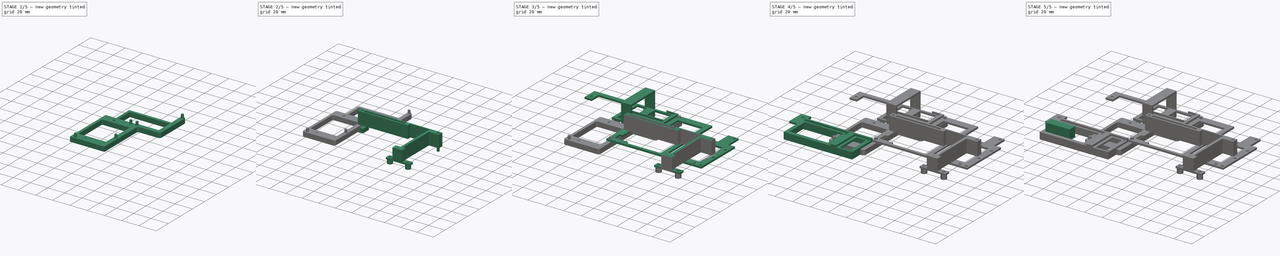
[diagram: build sequence overview — one tinted view per stage of 5, left to right]
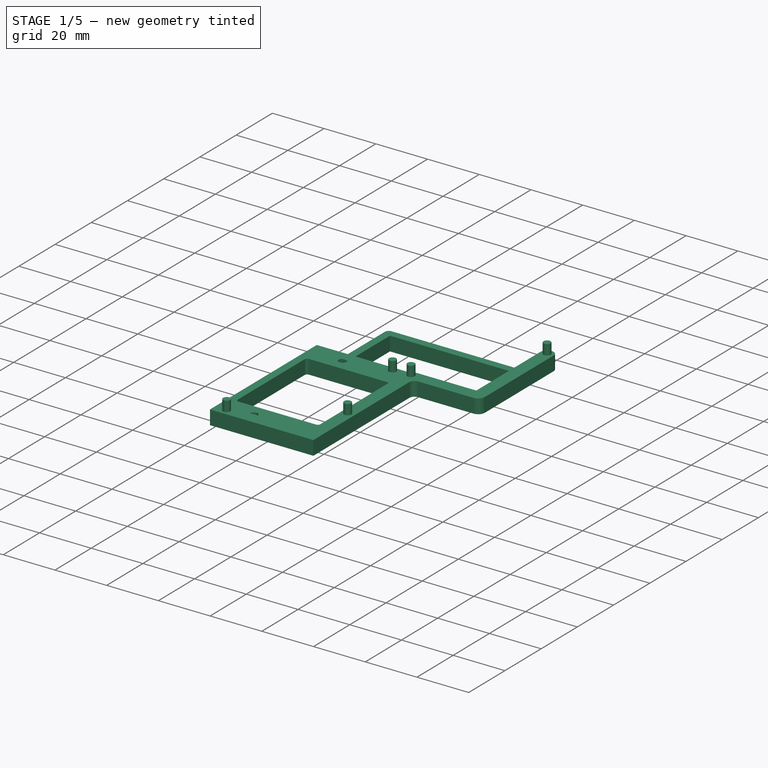
[diagram: stage 1 of 5 — iso view after this stage's code; geometry added in this stage tinted green]
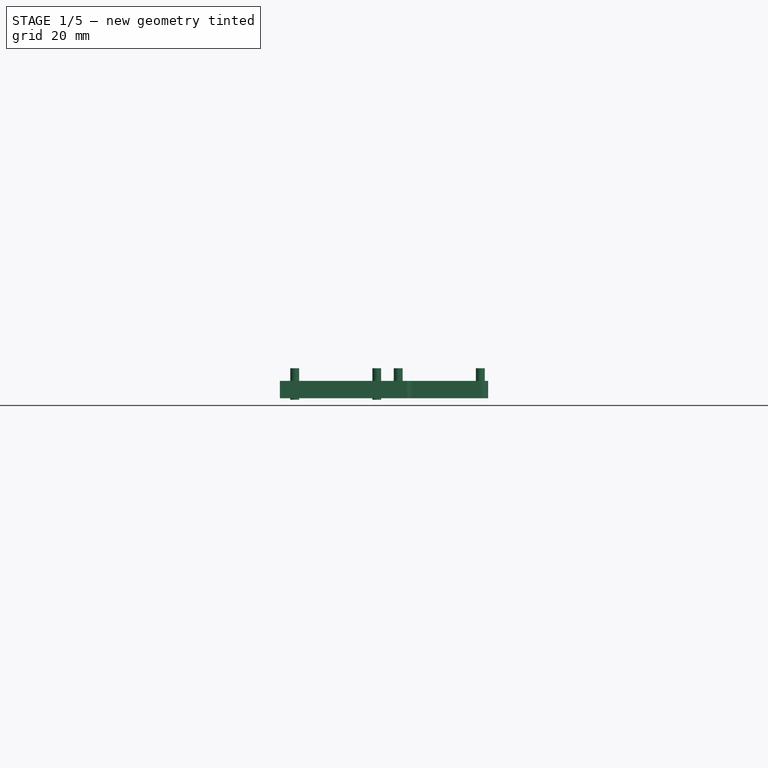
[diagram: stage 1 of 5 — front view after this stage's code; geometry added in this stage tinted green]
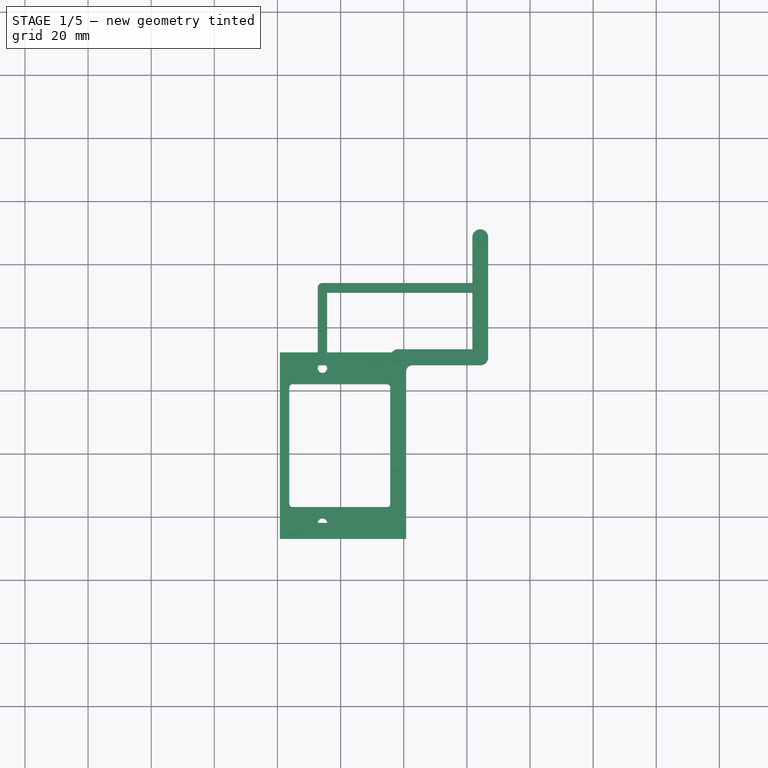
[diagram: stage 1 of 5 — top view after this stage's code; geometry added in this stage tinted green]
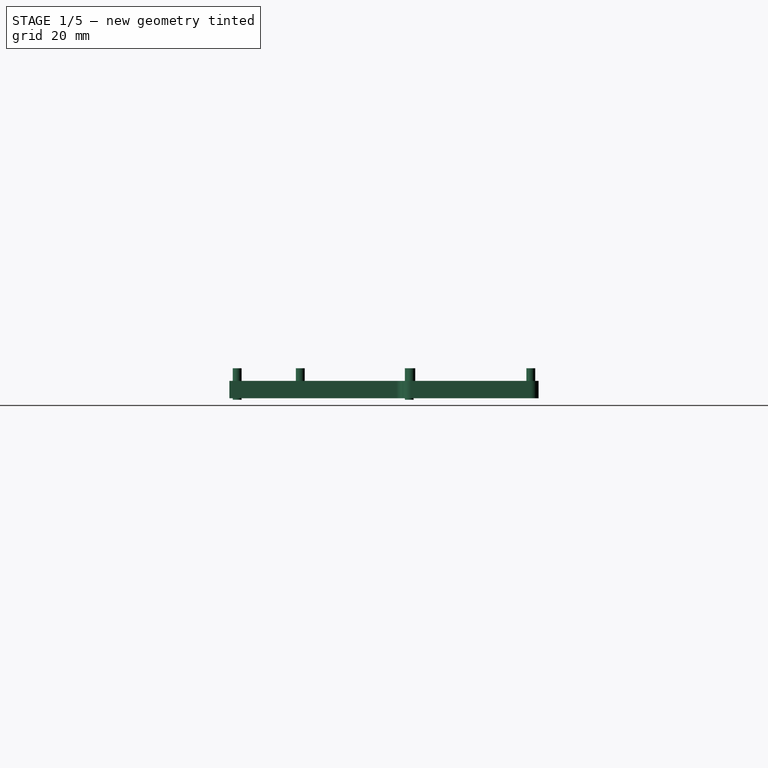
[diagram: stage 1 of 5 — right view after this stage's code; geometry added in this stage tinted green]
FCSTD DOCUMENT  (FreeCAD 0.21R33771 (Git))
Label: Base_Caja_Bomba_Agua
License: All rights reserved
LicenseURL: https://en.wikipedia.org/wiki/All_rights_reserved
objects: Sketcher::SketchObject×29, Part::Extrusion×21, Part::MultiFuse×10, Part::Cut×4, Part::Fillet×2, PartDesign::Body×1
note: 67 computed .brp shape members not serialized (recipe doc carries the construction recipe); baked Part::Feature solids carry a one-line shape summary decoded from their .brp

FEATURE [Sketcher::SketchObject] Sketch021
  FullyConstrained = true
  MapMode = 5
  Support = -> [XY_Plane]
  sketch-geometry (20):
    g0: LineSegment StartX=183.25 StartY=18 StartZ=0 EndX=183.25 EndY=94 EndZ=0
    g1: LineSegment StartX=183.25 StartY=94 StartZ=0 EndX=174 EndY=94 EndZ=0
    g2: LineSegment StartX=174 StartY=94 StartZ=0 EndX=174 EndY=112 EndZ=0
    g3: LineSegment StartX=174 StartY=112 StartZ=0 EndX=0 EndY=112 EndZ=0
    g4: LineSegment StartX=0 StartY=112 StartZ=0 EndX=0 EndY=94 EndZ=0
    g5: LineSegment StartX=0 StartY=94 StartZ=0 EndX=-9.25 EndY=94 EndZ=0
    g6: LineSegment StartX=-9.25 StartY=94 StartZ=0 EndX=-9.25 EndY=18 EndZ=0
    g7: LineSegment StartX=-9.25 StartY=18 StartZ=0 EndX=0 EndY=18 EndZ=0
    g8: LineSegment StartX=0 StartY=18 StartZ=0 EndX=0 EndY=0 EndZ=0
    g9: LineSegment StartX=0 StartY=0 StartZ=0 EndX=174 EndY=0 EndZ=0
    g10: LineSegment StartX=174 StartY=0 StartZ=0 EndX=174 EndY=18 EndZ=0
    g11: LineSegment StartX=174 StartY=18 StartZ=0 EndX=183.25 EndY=18 EndZ=0
    g12: Circle CenterX=104.25 CenterY=108.6 CenterZ=0 NormalX=0 NormalY=0 NormalZ=1 AngleXU=0 Radius=1.4
    g13: Circle CenterX=78.25 CenterY=35.6 CenterZ=0 NormalX=0 NormalY=0 NormalZ=1 AngleXU=0 Radius=1.4
    g14: Circle CenterX=78.25 CenterY=70.6 CenterZ=0 NormalX=0 NormalY=0 NormalZ=1 AngleXU=0 Radius=1.4
    g15: LineSegment StartX=72.85 StartY=70.6 StartZ=0 EndX=76.85 EndY=70.6 EndZ=0
    g16: Circle CenterX=71.45 CenterY=70.1 CenterZ=0 NormalX=0 NormalY=0 NormalZ=1 AngleXU=0 Radius=1.4
    g17: LineSegment StartX=72.85 StartY=70.6 StartZ=0 EndX=72.85 EndY=65.6 EndZ=0
    g18: Circle CenterX=45.45 CenterY=70.1 CenterZ=0 NormalX=0 NormalY=0 NormalZ=1 AngleXU=0 Radius=1.4
    g19: Circle CenterX=45.45 CenterY=15.6 CenterZ=0 NormalX=0 NormalY=0 NormalZ=1 AngleXU=0 Radius=1.4
  constraints (60):
    c: Vertical(g0)
    c: Coincident(g0,g1)
    c: Coincident(g1,g2)
    c: Vertical(g2)
    c: Coincident(g2,g3)
    c: Horizontal(g3)
    c: Coincident(g3,g4)
    c: Vertical(g4)
    c: Coincident(g4,g5)
    c: Horizontal(g5)
    c: Coincident(g5,g6)
    c: Vertical(g6)
    c: Coincident(g6,g7)
    c: Horizontal(g7)
    c: Coincident(g7,g8)
    c: Vertical(g8)
    c: Coincident(g8,g9)
    c: Horizontal(g9)
    c: Coincident(g9,g10)
    c: Vertical(g10)
    c: Coincident(g10,g11)
    c: Coincident(g11,g0)
    c: Horizontal(g11)
    c: DistanceY(g8,g3) = 112
    c: Horizontal(g1)
    c: Equal(g4,g2)
    c: Equal(g2,g10)
    c: Equal(g10,g8)
    c: DistanceY(g8,g8) = 18
    c: DistanceX(g6,g0) = 192.5
    c: DistanceX(g9,g9) = 174
    c: Vertical(g1,g9)
    c: Diameter(g13) = 2.8
    c: DistanceX(g12,g0) = 79
    c: DistanceX(g13,g0) = 105
    c: DistanceY(g13,g0) = 58.4
    c: DistanceY(g0,g12) = 14.6
    c: Vertical(g14,g13)
    c: DistanceY(g13,g14) = 35
    c: Coincident(g8,g-1)
    c: DistanceX(g7,g7) = 9.25
    c: DistanceX(g3,g3) = 174
    c: Equal(g13,g14)
    c: Equal(g13,g12)
    c: Horizontal(g15)
    c: PointOnObject(g15,g14)
    c: Horizontal(g15,g14)
    c: DistanceX(g15,g15) = 4
    c: Equal(g16,g14)
    c: DistanceY(g17,g17) = 5
    c: Coincident(g17,g15)
    c: Vertical(g17)
    c: Tangent(g16,g17)
    c: DistanceY(g16,g14) = 0.5
    c: Equal(g18,g14)
    c: Horizontal(g18,g16)
    c: DistanceX(g18,g16) = 26
    c: Equal(g19,g14)
    c: Vertical(g19,g18)
    c: DistanceY(g19,g18) = 54.5
FEATURE [Sketcher::SketchObject] Sketch022
  FullyConstrained = true
  MapMode = 5
  Support = -> [XY_Plane]
  sketch-geometry (50):
    g0: LineSegment StartX=183.25 StartY=18 StartZ=0 EndX=183.25 EndY=94 EndZ=0
    g1: LineSegment StartX=183.25 StartY=94 StartZ=0 EndX=174 EndY=94 EndZ=0
    g2: LineSegment StartX=174 StartY=94 StartZ=0 EndX=174 EndY=112 EndZ=0
    g3: LineSegment StartX=174 StartY=112 StartZ=0 EndX=0 EndY=112 EndZ=0
    g4: LineSegment StartX=0 StartY=112 StartZ=0 EndX=0 EndY=94 EndZ=0
    g5: LineSegment StartX=0 StartY=94 StartZ=0 EndX=-9.25 EndY=94 EndZ=0
    g6: LineSegment StartX=-9.25 StartY=94 StartZ=0 EndX=-9.25 EndY=18 EndZ=0
    g7: LineSegment StartX=-9.25 StartY=18 StartZ=0 EndX=0 EndY=18 EndZ=0
    g8: LineSegment StartX=0 StartY=18 StartZ=0 EndX=0 EndY=0 EndZ=0
    g9: LineSegment StartX=0 StartY=0 StartZ=0 EndX=174 EndY=0 EndZ=0
    g10: LineSegment StartX=174 StartY=0 StartZ=0 EndX=174 EndY=18 EndZ=0
    g11: LineSegment StartX=174 StartY=18 StartZ=0 EndX=183.25 EndY=18 EndZ=0
    g12: Circle CenterX=104.25 CenterY=108.6 CenterZ=0 NormalX=0 NormalY=0 NormalZ=1 AngleXU=0 Radius=2.5
    g13: Circle CenterX=78.25 CenterY=35.6 CenterZ=0 NormalX=0 NormalY=0 NormalZ=1 AngleXU=0 Radius=2.5
    g14: Circle CenterX=78.25 CenterY=70.6 CenterZ=0 NormalX=0 NormalY=0 NormalZ=1 AngleXU=0 Radius=2.5
    g15: Circle CenterX=104.25 CenterY=70.6 CenterZ=0 NormalX=0 NormalY=0 NormalZ=1 AngleXU=0 Radius=2.5
    g16: LineSegment StartX=106.75 StartY=108.6 StartZ=0 EndX=106.75 EndY=70.6 EndZ=0
    g17: LineSegment StartX=101.75 StartY=108.6 StartZ=0 EndX=101.75 EndY=94.1 EndZ=0
    g18: LineSegment StartX=78.25 StartY=73.1 StartZ=0 EndX=101.75 EndY=73.1 EndZ=0
    g19: LineSegment StartX=80.75 StartY=68.1 StartZ=0 EndX=104.25 EndY=68.1 EndZ=0
    g20: LineSegment StartX=75.75 StartY=69.1 StartZ=0 EndX=75.75 EndY=35.6 EndZ=0
    g21: LineSegment StartX=80.75 StartY=68.1 StartZ=0 EndX=80.75 EndY=35.6 EndZ=0
    g22: ArcOfCircle CenterX=78.25 CenterY=35.6 CenterZ=0 NormalX=0 NormalY=0 NormalZ=1 AngleXU=0 Radius=2.5 StartAngle=3.14159 EndAngle=6.28319
    g23: ArcOfCircle CenterX=104.25 CenterY=108.6 CenterZ=0 NormalX=0 NormalY=0 NormalZ=1 AngleXU=0 Radius=2.5 StartAngle=6.28318 EndAngle=9.42479
    g24: ArcOfCircle CenterX=104.25 CenterY=70.6 CenterZ=0 NormalX=0 NormalY=0 NormalZ=1 AngleXU=0 Radius=2.5 StartAngle=4.71239 EndAngle=6.28319
    g25: Circle CenterX=54.25 CenterY=70.6 CenterZ=0 NormalX=0 NormalY=0 NormalZ=1 AngleXU=0 Radius=1.5
    g26: LineSegment StartX=54.25 StartY=69.1 StartZ=0 EndX=75.75 EndY=69.1 EndZ=0
    g27: LineSegment StartX=55.75 StartY=72.1 StartZ=0 EndX=76.25 EndY=72.1 EndZ=0
    g28: Circle CenterX=54.25 CenterY=92.6 CenterZ=0 NormalX=0 NormalY=0 NormalZ=1 AngleXU=0 Radius=1.5
    g29: Circle CenterX=104.25 CenterY=92.6 CenterZ=0 NormalX=0 NormalY=0 NormalZ=1 AngleXU=0 Radius=1.5
    g30: LineSegment StartX=55.75 StartY=91.1 StartZ=0 EndX=101.75 EndY=91.1 EndZ=0
    g31: LineSegment StartX=54.25 StartY=94.1 StartZ=0 EndX=101.75 EndY=94.1 EndZ=0
    g32: LineSegment StartX=52.75 StartY=70.6 StartZ=0 EndX=52.75 EndY=92.6 EndZ=0
    g33: LineSegment StartX=55.75 StartY=91.1 StartZ=0 EndX=55.75 EndY=72.1 EndZ=0
    g34: ArcOfCircle CenterX=54.25 CenterY=92.6 CenterZ=0 NormalX=0 NormalY=0 NormalZ=1 AngleXU=0 Radius=1.5 StartAngle=1.5708 EndAngle=3.14159
    g35: ArcOfCircle CenterX=54.25 CenterY=70.6 CenterZ=0 NormalX=0 NormalY=0 NormalZ=1 AngleXU=0 Radius=1.5 StartAngle=3.14159 EndAngle=4.71239
    g36: ArcOfCircle CenterX=78.25 CenterY=70.6 CenterZ=0 NormalX=0 NormalY=0 NormalZ=1 AngleXU=0 Radius=2.5 StartAngle=1.5708 EndAngle=2.49809
    g37: LineSegment StartX=101.75 StartY=91.1 StartZ=0 EndX=101.75 EndY=73.1 EndZ=0
    g38: LineSegment StartX=75.75 StartY=69.1 StartZ=0 EndX=43.75 EndY=69.1 EndZ=0
    g39: LineSegment StartX=40.75 StartY=72.1 StartZ=0 EndX=40.75 EndY=13.1 EndZ=0
    g40: LineSegment StartX=43.75 StartY=69.1 StartZ=0 EndX=43.75 EndY=18.1 EndZ=0
    g41: LineSegment StartX=40.75 StartY=13.1 StartZ=0 EndX=80.75 EndY=13.1 EndZ=0
    g42: LineSegment StartX=80.75 StartY=13.1 StartZ=0 EndX=80.75 EndY=35.6 EndZ=0
    g43: LineSegment StartX=43.75 StartY=18.1 StartZ=0 EndX=75.75 EndY=18.1 EndZ=0
    g44: LineSegment StartX=75.75 StartY=18.1 StartZ=0 EndX=75.75 EndY=35.6 EndZ=0
    g45: LineSegment StartX=52.75 StartY=92.6 StartZ=0 EndX=52.75 EndY=72.1 EndZ=0
    g46: LineSegment StartX=52.75 StartY=72.1 StartZ=0 EndX=40.75 EndY=72.1 EndZ=0
    g47: LineSegment StartX=43.75 StartY=68.1 StartZ=0 EndX=75.75 EndY=68.1 EndZ=0
    g48: LineSegment StartX=43.75 StartY=68.1 StartZ=0 EndX=43.75 EndY=18.1 EndZ=0
    g49: LineSegment StartX=75.75 StartY=68.1 StartZ=0 EndX=75.75 EndY=35.6 EndZ=0
  constraints (156):
    c: Vertical(g0)
    c: Coincident(g0,g1)
    c: Coincident(g1,g2)
    c: Vertical(g2)
    c: Coincident(g2,g3)
    c: Horizontal(g3)
    c: Coincident(g3,g4)
    c: Vertical(g4)
    c: Coincident(g4,g5)
    c: Horizontal(g5)
    c: Coincident(g5,g6)
    c: Vertical(g6)
    c: Coincident(g6,g7)
    c: Horizontal(g7)
    c: Coincident(g7,g8)
    c: Vertical(g8)
    c: Coincident(g8,g9)
    c: Horizontal(g9)
    c: Coincident(g9,g10)
    c: Vertical(g10)
    c: Coincident(g10,g11)
    c: Coincident(g11,g0)
    c: Horizontal(g11)
    c: DistanceY(g8,g3) = 112
    c: Horizontal(g1)
    c: Equal(g4,g2)
    c: Equal(g2,g10)
    c: Equal(g10,g8)
    c: DistanceY(g8,g8) = 18
    c: DistanceX(g6,g0) = 192.5
    c: DistanceX(g9,g9) = 174
    c: Vertical(g1,g9)
    c: Diameter(g12) = 5
    c: Diameter(g13) = 5
    c: DistanceX(g12,g0) = 79
    c: DistanceX(g13,g0) = 105
    c: DistanceY(g13,g0) = 58.4
    c: DistanceY(g0,g12) = 14.6
    c: Vertical(g14,g13)
    c: DistanceY(g13,g14) = 35
    c: Coincident(g8,g-1)
    c: DistanceX(g7,g7) = 9.25
    c: DistanceX(g3,g3) = 174
    c: Diameter(g14) = 5
    c: Vertical(g15,g12)
    c: Horizontal(g15,g14)
    c: Diameter(g15) = 5
    c: PointOnObject(g16,g15)
    c: PointOnObject(g16,g12)
    c: Vertical(g16)
    c: Horizontal(g16,g12)
    c: Vertical(g17)
    c: PointOnObject(g17,g12)
    c: Horizontal(g18)
    c: Vertical(g18,g14)
    c: PointOnObject(g18,g14)
    c: Horizontal(g19)
    c: Vertical(g19,g15)
    c: PointOnObject(g19,g15)
    c: Vertical(g20)
    c: PointOnObject(g20,g13)
    c: Horizontal(g21,g13)
    c: PointOnObject(g21,g13)
    c: Vertical(g21)
    c: Coincident(g22,g20)
    c: Coincident(g22,g21)
    c: Diameter(g22) = 5
    c: Coincident(g23,g17)
    c: Coincident(g23,g16)
    c: Diameter(g23) = 5
    c: Coincident(g24,g19)
    c: Coincident(g24,g16)
    c: Diameter(g24) = 5
    c: Horizontal(g25,g14)
    c: Diameter(g25) = 3
    c: DistanceX(g25,g14) = 24
    c: PointOnObject(g26,g25)
    c: Horizontal(g26)
    c: Horizontal(g27)
    c: Vertical(g25,g26)
    c: PointOnObject(g27,g14)
    c: Diameter(g28) = 3
    c: Vertical(g25,g28)
    c: Vertical(g29,g23)
    c: Horizontal(g29,g28)
    c: Diameter(g29) = 3
    c: PointOnObject(g31,g28)
    c: Horizontal(g30)
    c: Horizontal(g31)
    c: Vertical(g31,g28)
    c: PointOnObject(g32,g28)
    c: PointOnObject(g32,g25)
    c: Horizontal(g32,g25)
    c: Vertical(g32)
    c: Vertical(g33)
    c: Coincident(g34,g32)
    c: Coincident(g34,g31)
    c: Diameter(g34) = 3
    c: Coincident(g35,g32)
    c: Coincident(g35,g26)
    c: Diameter(g35) = 3
    c: Coincident(g36,g27)
    c: Coincident(g36,g18)
    c: Diameter(g36) = 5
    c: DistanceY(g29,g23) = 16
    c: Coincident(g27,g33)
    c: Coincident(g33,g30)
    c: Coincident(g26,g20)
    c: Coincident(g21,g19)
    c: Coincident(g18,g37)
    c: Coincident(g31,g17)
    c: Coincident(g30,g37)
    c: Horizontal(g20,g21)
    c: DistanceY(g32,g32) = 22
    c: DistanceX(g26,g27) = 1.5
    c: DistanceX(g27,g27) = 20.5
    c: DistanceY(g33,g33) = 19
    c: DistanceX(g30,g30) = 46
    c: Vertical(g37)
    c: Horizontal(g38)
    c: Horizontal(g38,g20)
    c: Vertical(g38,g20)
    c: Vertical(g39)
    c: DistanceY(g39,g39) = 59
    c: Vertical(g40)
    c: Coincident(g40,g38)
    c: DistanceY(g39,g40) = 5
    c: Coincident(g41,g39)
    c: Horizontal(g41)
    c: Vertical(g41,g21)
    c: Coincident(g42,g41)
    c: Vertical(g42)
    c: Horizontal(g42,g21)
    c: Coincident(g43,g40)
    c: Horizontal(g43)
    c: Vertical(g43,g20)
    c: Coincident(g44,g43)
    c: Vertical(g44)
    c: Horizontal(g44,g20)
    c: Coincident(g45,g34)
    c: Vertical(g45)
    c: Horizontal(g45,g27)
    c: Horizontal(g46)
    c: Coincident(g46,g45)
    c: DistanceX(g46,g46) = 12
    c: Coincident(g39,g46)
    c: DistanceX(g39,g38) = 3
    c: Horizontal(g47)
    c: Horizontal(g47,g19)
    c: PointOnObject(g47,g20)
    c: PointOnObject(g47,g40)
    c: Coincident(g48,g43)
    c: Coincident(g48,g47)
    c: Coincident(g49,g47)
    c: Horizontal(g49,g13)
    c: Vertical(g49)
FEATURE [Part::Extrusion] Extrude027
  Base = -> Sketch022
  Dir = (0,0,1)
  DirMode = 2
  FaceMakerClass = Part::FaceMakerBullseye
  LengthFwd = 0
  LengthRev = 5.5
  Solid = true
  Symmetric = false
FEATURE [Part::Extrusion] Extrude028
  Base = -> Sketch021
  Dir = (0,0,1)
  DirMode = 2
  FaceMakerClass = Part::FaceMakerBullseye
  LengthFwd = 4
  LengthRev = 0
  Solid = true
  Symmetric = false
FEATURE [Part::MultiFuse] Fusion010
  Shapes = -> [Extrude028,Extrude027]
FEATURE [Sketcher::SketchObject] Sketch027
  FullyConstrained = true
  MapMode = 5
  Support = -> [XY_Plane]
  sketch-geometry (21):
    g0: LineSegment StartX=183.25 StartY=18 StartZ=0 EndX=183.25 EndY=94 EndZ=0
    g1: LineSegment StartX=183.25 StartY=94 StartZ=0 EndX=174 EndY=94 EndZ=0
    g2: LineSegment StartX=174 StartY=94 StartZ=0 EndX=174 EndY=112 EndZ=0
    g3: LineSegment StartX=174 StartY=112 StartZ=0 EndX=0 EndY=112 EndZ=0
    g4: LineSegment StartX=0 StartY=112 StartZ=0 EndX=0 EndY=94 EndZ=0
    g5: LineSegment StartX=0 StartY=94 StartZ=0 EndX=-9.25 EndY=94 EndZ=0
    g6: LineSegment StartX=-9.25 StartY=94 StartZ=0 EndX=-9.25 EndY=18 EndZ=0
    g7: LineSegment StartX=-9.25 StartY=18 StartZ=0 EndX=0 EndY=18 EndZ=0
    g8: LineSegment StartX=0 StartY=18 StartZ=0 EndX=0 EndY=0 EndZ=0
    g9: LineSegment StartX=0 StartY=0 StartZ=0 EndX=174 EndY=0 EndZ=0
    g10: LineSegment StartX=174 StartY=0 StartZ=0 EndX=174 EndY=18 EndZ=0
    g11: LineSegment StartX=174 StartY=18 StartZ=0 EndX=183.25 EndY=18 EndZ=0
    g12: Circle CenterX=104.25 CenterY=108.6 CenterZ=0 NormalX=0 NormalY=0 NormalZ=1 AngleXU=0 Radius=1.4
    g13: Circle CenterX=78.25 CenterY=35.6 CenterZ=0 NormalX=0 NormalY=0 NormalZ=1 AngleXU=0 Radius=1.4
    g14: Circle CenterX=78.25 CenterY=70.6 CenterZ=0 NormalX=0 NormalY=0 NormalZ=1 AngleXU=0 Radius=1.4
    g15: LineSegment StartX=72.85 StartY=70.6 StartZ=0 EndX=76.85 EndY=70.6 EndZ=0
    g16: Circle CenterX=71.45 CenterY=70.1 CenterZ=0 NormalX=0 NormalY=0 NormalZ=1 AngleXU=0 Radius=1.4
    g17: LineSegment StartX=72.85 StartY=70.6 StartZ=0 EndX=72.85 EndY=65.6 EndZ=0
    g18: Circle CenterX=45.45 CenterY=70.1 CenterZ=0 NormalX=0 NormalY=0 NormalZ=1 AngleXU=0 Radius=1.4
    g19: Circle CenterX=45.45 CenterY=15.6 CenterZ=0 NormalX=0 NormalY=0 NormalZ=1 AngleXU=0 Radius=1.4
    g20: Circle CenterX=71.45 CenterY=15.6 CenterZ=0 NormalX=0 NormalY=0 NormalZ=1 AngleXU=0 Radius=1.4
  constraints (63):
    c: Vertical(g0)
    c: Coincident(g0,g1)
    c: Coincident(g1,g2)
    c: Vertical(g2)
    c: Coincident(g2,g3)
    c: Horizontal(g3)
    c: Coincident(g3,g4)
    c: Vertical(g4)
    c: Coincident(g4,g5)
    c: Horizontal(g5)
    c: Coincident(g5,g6)
    c: Vertical(g6)
    c: Coincident(g6,g7)
    c: Horizontal(g7)
    c: Coincident(g7,g8)
    c: Vertical(g8)
    c: Coincident(g8,g9)
    c: Horizontal(g9)
    c: Coincident(g9,g10)
    c: Vertical(g10)
    c: Coincident(g10,g11)
    c: Coincident(g11,g0)
    c: Horizontal(g11)
    c: DistanceY(g8,g3) = 112
    c: Horizontal(g1)
    c: Equal(g4,g2)
    c: Equal(g2,g10)
    c: Equal(g10,g8)
    c: DistanceY(g8,g8) = 18
    c: DistanceX(g6,g0) = 192.5
    c: DistanceX(g9,g9) = 174
    c: Vertical(g1,g9)
    c: Diameter(g13) = 2.8
    c: DistanceX(g12,g0) = 79
    c: DistanceX(g13,g0) = 105
    c: DistanceY(g13,g0) = 58.4
    c: DistanceY(g0,g12) = 14.6
    c: Vertical(g14,g13)
    c: DistanceY(g13,g14) = 35
    c: Coincident(g8,g-1)
    c: DistanceX(g7,g7) = 9.25
    c: DistanceX(g3,g3) = 174
    c: Equal(g13,g14)
    c: Equal(g13,g12)
    c: Horizontal(g15)
    c: PointOnObject(g15,g14)
    c: Horizontal(g15,g14)
    c: DistanceX(g15,g15) = 4
    c: Equal(g16,g14)
    c: DistanceY(g17,g17) = 5
    c: Coincident(g17,g15)
    c: Vertical(g17)
    c: Tangent(g16,g17)
    c: DistanceY(g16,g14) = 0.5
    c: Equal(g18,g14)
    c: Horizontal(g18,g16)
    c: DistanceX(g18,g16) = 26
    c: Equal(g19,g14)
    c: Vertical(g19,g18)
    c: DistanceY(g19,g18) = 54.5
    c: Horizontal(g20,g19)
    c: Vertical(g20,g16)
    c: Equal(g20,g14)
FEATURE [Part::Extrusion] Extrude032
  Base = -> Sketch027
  Dir = (0,0,1)
  DirMode = 2
  FaceMakerClass = Part::FaceMakerBullseye
  LengthFwd = 0
  LengthRev = 6
  Solid = true
  Symmetric = false
FEATURE [Sketcher::SketchObject] Sketch028
  FullyConstrained = true
  MapMode = 5
  Support = -> [XY_Plane]
  sketch-geometry (52):
    g0: LineSegment StartX=183.25 StartY=18 StartZ=0 EndX=183.25 EndY=94 EndZ=0
    g1: LineSegment StartX=183.25 StartY=94 StartZ=0 EndX=174 EndY=94 EndZ=0
    g2: LineSegment StartX=174 StartY=94 StartZ=0 EndX=174 EndY=112 EndZ=0
    g3: LineSegment StartX=174 StartY=112 StartZ=0 EndX=0 EndY=112 EndZ=0
    g4: LineSegment StartX=0 StartY=112 StartZ=0 EndX=0 EndY=94 EndZ=0
    g5: LineSegment StartX=0 StartY=94 StartZ=0 EndX=-9.25 EndY=94 EndZ=0
    g6: LineSegment StartX=-9.25 StartY=94 StartZ=0 EndX=-9.25 EndY=18 EndZ=0
    g7: LineSegment StartX=-9.25 StartY=18 StartZ=0 EndX=0 EndY=18 EndZ=0
    g8: LineSegment StartX=0 StartY=18 StartZ=0 EndX=0 EndY=0 EndZ=0
    g9: LineSegment StartX=0 StartY=0 StartZ=0 EndX=174 EndY=0 EndZ=0
    g10: LineSegment StartX=174 StartY=0 StartZ=0 EndX=174 EndY=18 EndZ=0
    g11: LineSegment StartX=174 StartY=18 StartZ=0 EndX=183.25 EndY=18 EndZ=0
    g12: Circle CenterX=104.25 CenterY=108.6 CenterZ=0 NormalX=0 NormalY=0 NormalZ=1 AngleXU=0 Radius=2.5
    g13: Circle CenterX=78.25 CenterY=35.6 CenterZ=0 NormalX=0 NormalY=0 NormalZ=1 AngleXU=0 Radius=2.5
    g14: Circle CenterX=78.25 CenterY=70.6 CenterZ=0 NormalX=0 NormalY=0 NormalZ=1 AngleXU=0 Radius=2.5
    g15: Circle CenterX=104.25 CenterY=70.6 CenterZ=0 NormalX=0 NormalY=0 NormalZ=1 AngleXU=0 Radius=2.5
    g16: LineSegment StartX=106.75 StartY=108.6 StartZ=0 EndX=106.75 EndY=70.6 EndZ=0
    g17: LineSegment StartX=101.75 StartY=108.6 StartZ=0 EndX=101.75 EndY=94.1 EndZ=0
    g18: LineSegment StartX=78.25 StartY=73.1 StartZ=0 EndX=101.75 EndY=73.1 EndZ=0
    g19: LineSegment StartX=80.75 StartY=68.1 StartZ=0 EndX=104.25 EndY=68.1 EndZ=0
    g20: LineSegment StartX=75.75 StartY=69.1 StartZ=0 EndX=75.75 EndY=35.6 EndZ=0
    g21: LineSegment StartX=80.75 StartY=68.1 StartZ=0 EndX=80.75 EndY=35.6 EndZ=0
    g22: ArcOfCircle CenterX=78.25 CenterY=35.6 CenterZ=0 NormalX=0 NormalY=0 NormalZ=1 AngleXU=0 Radius=2.5 StartAngle=3.14159 EndAngle=6.28319
    g23: ArcOfCircle CenterX=104.25 CenterY=108.6 CenterZ=0 NormalX=0 NormalY=0 NormalZ=1 AngleXU=0 Radius=2.5 StartAngle=-4.1524e-10 EndAngle=3.14159
    g24: ArcOfCircle CenterX=104.25 CenterY=70.6 CenterZ=0 NormalX=0 NormalY=0 NormalZ=1 AngleXU=0 Radius=2.5 StartAngle=4.71239 EndAngle=6.28319
    g25: Circle CenterX=54.25 CenterY=70.6 CenterZ=0 NormalX=0 NormalY=0 NormalZ=1 AngleXU=0 Radius=1.5
    g26: LineSegment StartX=54.25 StartY=69.1 StartZ=0 EndX=75.75 EndY=69.1 EndZ=0
    g27: LineSegment StartX=55.75 StartY=72.1 StartZ=0 EndX=76.25 EndY=72.1 EndZ=0
    g28: Circle CenterX=54.25 CenterY=92.6 CenterZ=0 NormalX=0 NormalY=0 NormalZ=1 AngleXU=0 Radius=1.5
    g29: Circle CenterX=104.25 CenterY=92.6 CenterZ=0 NormalX=0 NormalY=0 NormalZ=1 AngleXU=0 Radius=1.5
    g30: LineSegment StartX=55.75 StartY=91.1 StartZ=0 EndX=101.75 EndY=91.1 EndZ=0
    g31: LineSegment StartX=54.25 StartY=94.1 StartZ=0 EndX=101.75 EndY=94.1 EndZ=0
    g32: LineSegment StartX=52.75 StartY=70.6 StartZ=0 EndX=52.75 EndY=92.6 EndZ=0
    g33: LineSegment StartX=55.75 StartY=91.1 StartZ=0 EndX=55.75 EndY=72.1 EndZ=0
    g34: ArcOfCircle CenterX=54.25 CenterY=92.6 CenterZ=0 NormalX=0 NormalY=0 NormalZ=1 AngleXU=0 Radius=1.5 StartAngle=1.5708 EndAngle=3.14159
    g35: ArcOfCircle CenterX=54.25 CenterY=70.6 CenterZ=0 NormalX=0 NormalY=0 NormalZ=1 AngleXU=0 Radius=1.5 StartAngle=3.14159 EndAngle=4.71239
    g36: ArcOfCircle CenterX=78.25 CenterY=70.6 CenterZ=0 NormalX=0 NormalY=0 NormalZ=1 AngleXU=0 Radius=2.5 StartAngle=1.5708 EndAngle=2.49809
    g37: LineSegment StartX=101.75 StartY=91.1 StartZ=0 EndX=101.75 EndY=73.1 EndZ=0
    g38: LineSegment StartX=75.75 StartY=69.1 StartZ=0 EndX=43.75 EndY=69.1 EndZ=0
    g39: LineSegment StartX=40.75 StartY=72.1 StartZ=0 EndX=40.75 EndY=13.1 EndZ=0
    g40: LineSegment StartX=43.75 StartY=69.1 StartZ=0 EndX=43.75 EndY=23.1 EndZ=0
    g41: LineSegment StartX=40.75 StartY=13.1 StartZ=0 EndX=80.75 EndY=13.1 EndZ=0
    g42: LineSegment StartX=80.75 StartY=13.1 StartZ=0 EndX=80.75 EndY=35.6 EndZ=0
    g43: LineSegment StartX=43.75 StartY=23.1 StartZ=0 EndX=75.75 EndY=23.1 EndZ=0
    g44: LineSegment StartX=75.75 StartY=23.1 StartZ=0 EndX=75.75 EndY=35.6 EndZ=0
    g45: LineSegment StartX=52.75 StartY=92.6 StartZ=0 EndX=52.75 EndY=72.1 EndZ=0
    g46: LineSegment StartX=52.75 StartY=72.1 StartZ=0 EndX=40.75 EndY=72.1 EndZ=0
    g47: LineSegment StartX=43.75 StartY=62.1 StartZ=0 EndX=75.75 EndY=62.1 EndZ=0
    g48: LineSegment StartX=43.75 StartY=62.1 StartZ=0 EndX=43.75 EndY=23.1 EndZ=0
    g49: LineSegment StartX=75.75 StartY=62.1 StartZ=0 EndX=75.75 EndY=35.6 EndZ=0
    g50: Circle CenterX=54.25 CenterY=67.1 CenterZ=0 NormalX=0 NormalY=0 NormalZ=1 AngleXU=0 Radius=1.5
    g51: Circle CenterX=54.25 CenterY=18.1 CenterZ=0 NormalX=0 NormalY=0 NormalZ=1 AngleXU=0 Radius=1.5
  constraints (162):
    c: Vertical(g0)
    c: Coincident(g0,g1)
    c: Coincident(g1,g2)
    c: Vertical(g2)
    c: Coincident(g2,g3)
    c: Horizontal(g3)
    c: Coincident(g3,g4)
    c: Vertical(g4)
    c: Coincident(g4,g5)
    c: Horizontal(g5)
    c: Coincident(g5,g6)
    c: Vertical(g6)
    c: Coincident(g6,g7)
    c: Horizontal(g7)
    c: Coincident(g7,g8)
    c: Vertical(g8)
    c: Coincident(g8,g9)
    c: Horizontal(g9)
    c: Coincident(g9,g10)
    c: Vertical(g10)
    c: Coincident(g10,g11)
    c: Coincident(g11,g0)
    c: Horizontal(g11)
    c: DistanceY(g8,g3) = 112
    c: Horizontal(g1)
    c: Equal(g4,g2)
    c: Equal(g2,g10)
    c: Equal(g10,g8)
    c: DistanceY(g8,g8) = 18
    c: DistanceX(g6,g0) = 192.5
    c: DistanceX(g9,g9) = 174
    c: Vertical(g1,g9)
    c: Diameter(g12) = 5
    c: Diameter(g13) = 5
    c: DistanceX(g12,g0) = 79
    c: DistanceX(g13,g0) = 105
    c: DistanceY(g13,g0) = 58.4
    c: DistanceY(g0,g12) = 14.6
    c: Vertical(g14,g13)
    c: DistanceY(g13,g14) = 35
    c: Coincident(g8,g-1)
    c: DistanceX(g7,g7) = 9.25
    c: DistanceX(g3,g3) = 174
    c: Diameter(g14) = 5
    c: Vertical(g15,g12)
    c: Horizontal(g15,g14)
    c: Diameter(g15) = 5
    c: PointOnObject(g16,g15)
    c: PointOnObject(g16,g12)
    c: Vertical(g16)
    c: Horizontal(g16,g12)
    c: Vertical(g17)
    c: PointOnObject(g17,g12)
    c: Horizontal(g18)
    c: Vertical(g18,g14)
    c: PointOnObject(g18,g14)
    c: Horizontal(g19)
    c: Vertical(g19,g15)
    c: PointOnObject(g19,g15)
    c: Vertical(g20)
    c: PointOnObject(g20,g13)
    c: Horizontal(g21,g13)
    c: PointOnObject(g21,g13)
    c: Vertical(g21)
    c: Coincident(g22,g20)
    c: Coincident(g22,g21)
    c: Diameter(g22) = 5
    c: Coincident(g23,g17)
    c: Coincident(g23,g16)
    c: Diameter(g23) = 5
    c: Coincident(g24,g19)
    c: Coincident(g24,g16)
    c: Diameter(g24) = 5
    c: Horizontal(g25,g14)
    c: Diameter(g25) = 3
    c: DistanceX(g25,g14) = 24
    c: PointOnObject(g26,g25)
    c: Horizontal(g26)
    c: Horizontal(g27)
    c: Vertical(g25,g26)
    c: PointOnObject(g27,g14)
    c: Diameter(g28) = 3
    c: Vertical(g25,g28)
    c: Vertical(g29,g23)
    c: Horizontal(g29,g28)
    c: Diameter(g29) = 3
    c: PointOnObject(g31,g28)
    c: Horizontal(g30)
    c: Horizontal(g31)
    c: Vertical(g31,g28)
    c: PointOnObject(g32,g28)
    c: PointOnObject(g32,g25)
    c: Horizontal(g32,g25)
    c: Vertical(g32)
    c: Vertical(g33)
    c: Coincident(g34,g32)
    c: Coincident(g34,g31)
    c: Diameter(g34) = 3
    c: Coincident(g35,g32)
    c: Coincident(g35,g26)
    c: Diameter(g35) = 3
    c: Coincident(g36,g27)
    c: Coincident(g36,g18)
    c: Diameter(g36) = 5
    c: DistanceY(g29,g23) = 16
    c: Coincident(g27,g33)
    c: Coincident(g33,g30)
    c: Coincident(g26,g20)
    c: Coincident(g21,g19)
    c: Coincident(g18,g37)
    c: Coincident(g31,g17)
    c: Coincident(g30,g37)
    c: Horizontal(g20,g21)
    c: DistanceY(g32,g32) = 22
    c: DistanceX(g26,g27) = 1.5
    c: DistanceX(g27,g27) = 20.5
    c: DistanceY(g33,g33) = 19
    c: DistanceX(g30,g30) = 46
    c: Vertical(g37)
    c: Horizontal(g38)
    c: Horizontal(g38,g20)
    c: Vertical(g38,g20)
    c: Vertical(g39)
    c: DistanceY(g39,g39) = 59
    c: Vertical(g40)
    c: Coincident(g40,g38)
    c: DistanceY(g39,g40) = 10
    c: Coincident(g41,g39)
    c: Horizontal(g41)
    c: Vertical(g41,g21)
    c: Coincident(g42,g41)
    c: Vertical(g42)
    c: Horizontal(g42,g21)
    c: Coincident(g43,g40)
    c: Horizontal(g43)
    c: Vertical(g43,g20)
    c: Coincident(g44,g43)
    c: Vertical(g44)
    c: Horizontal(g44,g20)
    c: Coincident(g45,g34)
    c: Vertical(g45)
    c: Horizontal(g45,g27)
    c: Horizontal(g46)
    c: Coincident(g46,g45)
    c: DistanceX(g46,g46) = 12
    c: Coincident(g39,g46)
    c: DistanceX(g39,g38) = 3
    c: PointOnObject(g47,g20)
    c: PointOnObject(g47,g40)
    c: Coincident(g48,g43)
    c: Coincident(g48,g47)
    c: Coincident(g49,g47)
    c: Horizontal(g49,g13)
    c: Vertical(g49)
    c: Horizontal(g47)
    c: Diameter(g50) = 3
    c: Diameter(g51) = 3
    c: Vertical(g51,g50)
    c: DistanceY(g51,g50) = 49
    c: Vertical(g25,g50)
    c: DistanceY(g47,g39) = 10
    c: DistanceY(g39,g51) = 5
FEATURE [PartDesign::Body] Body
  Group = -> [Sketch001,Sketch002,Sketch003,Sketch004,Sketch005,Sketch006,Sketch007,Sketch008,Sketch009,Sketch010,Sketch011,Sketch012,Sketch013,Sketch014,Sketch015,Sketch,Sketch016,Sketch018,Sketch019,Sketch020,Sketch021,Sketch022,Sketch023,Sketch024,Sketch025,Sketch026,Sketch027,Sketch028]
  Origin = -> Origin
FEATURE [Part::Extrusion] Extrude033
  Base = -> Sketch028
  Dir = (0,0,1)
  DirMode = 2
  FaceMakerClass = Part::FaceMakerBullseye
  LengthFwd = 0
  LengthRev = 5.5
  Solid = true
  Symmetric = false
FEATURE [Part::MultiFuse] Fusion011
  Shapes = -> [Extrude028,Extrude033]
FEATURE [Part::Fillet] Fillet001
  Base = -> Fusion011
  Edges = 8 edges: [Edge64 r=2,Edge66 r=2,Edge67 r=2,Edge68 r=2,Edge71 r=1,Edge72 r=1,Edge73 r=1,Edge75 r=1]
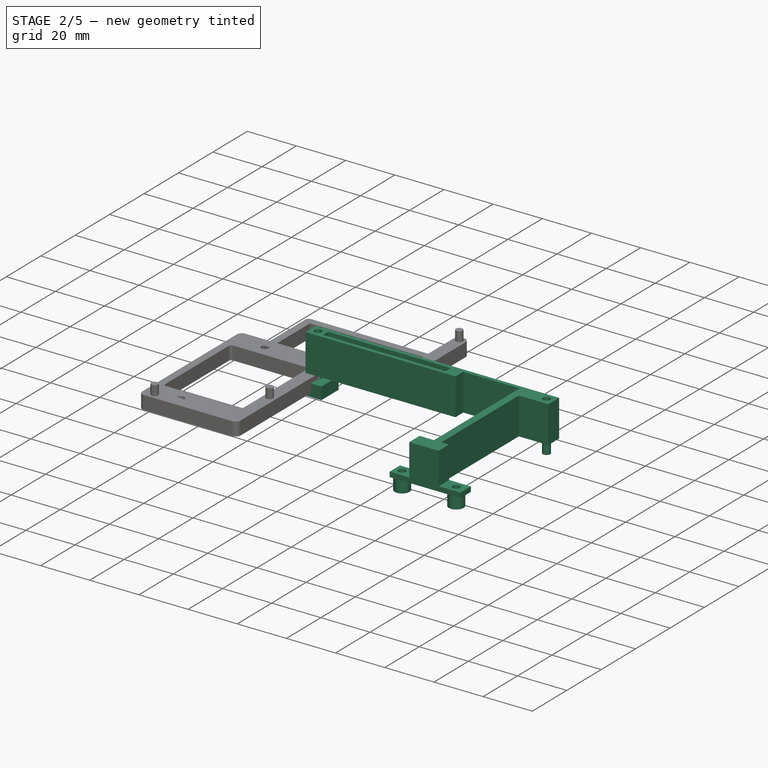
[diagram: stage 2 of 5 — iso view after this stage's code; geometry added in this stage tinted green]
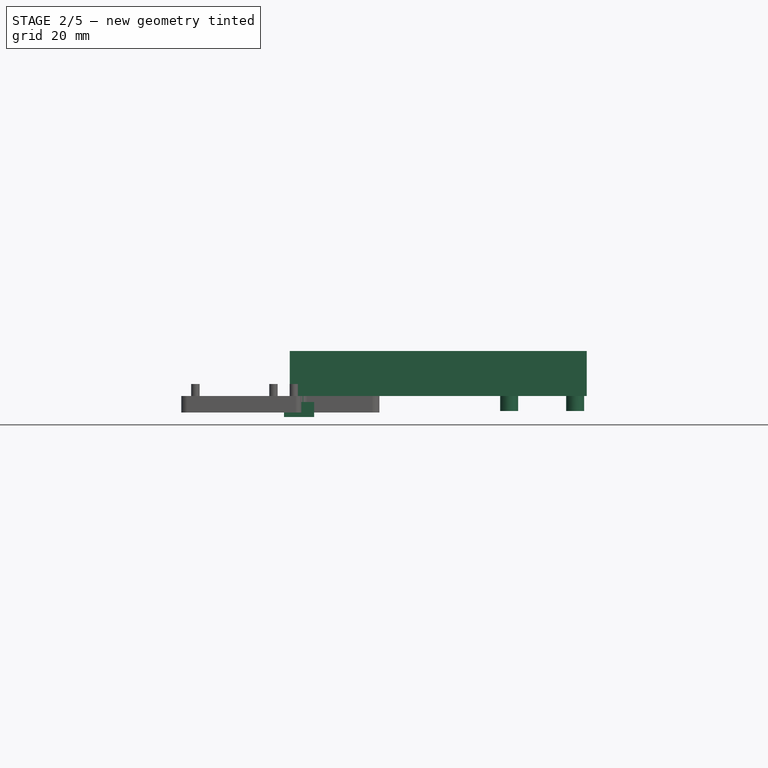
[diagram: stage 2 of 5 — front view after this stage's code; geometry added in this stage tinted green]
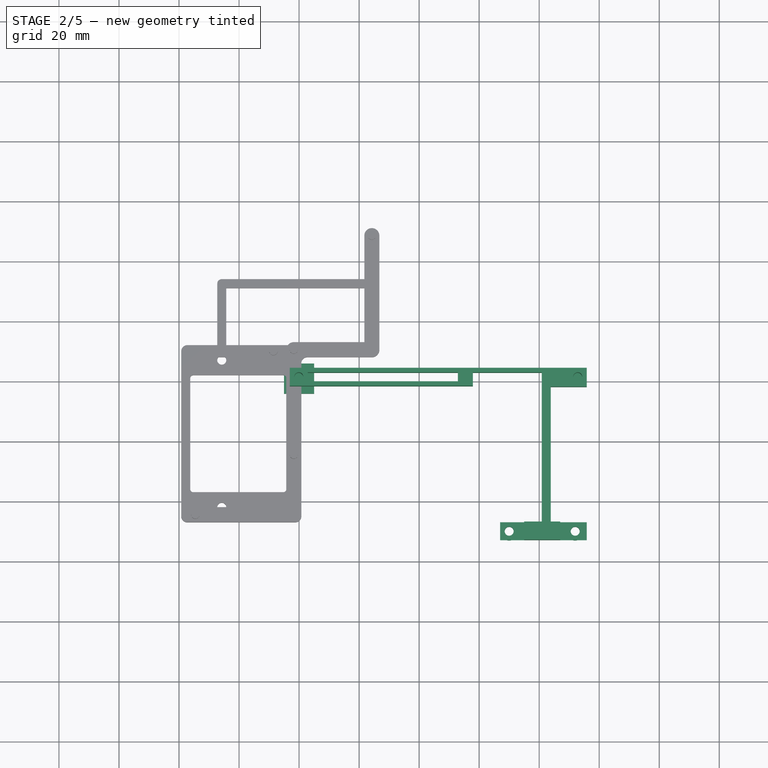
[diagram: stage 2 of 5 — top view after this stage's code; geometry added in this stage tinted green]
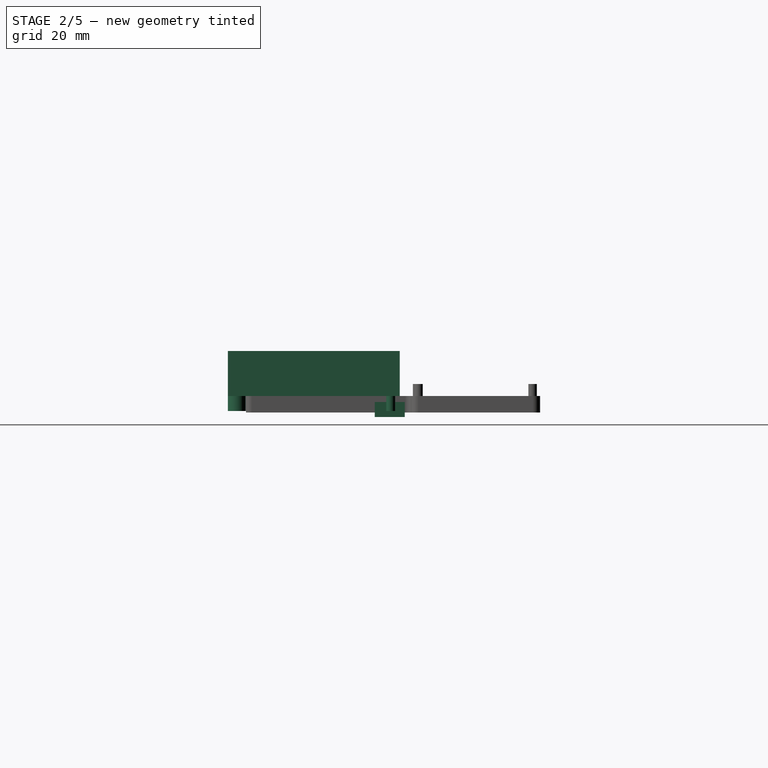
[diagram: stage 2 of 5 — right view after this stage's code; geometry added in this stage tinted green]
FEATURE [Sketcher::SketchObject] Sketch023
  FullyConstrained = true
  MapMode = 5
  Support = -> [XY_Plane]
  sketch-geometry (44):
    g0: LineSegment StartX=183.25 StartY=18 StartZ=0 EndX=183.25 EndY=94 EndZ=0
    g1: LineSegment StartX=183.25 StartY=94 StartZ=0 EndX=174 EndY=94 EndZ=0
    g2: LineSegment StartX=174 StartY=94 StartZ=0 EndX=174 EndY=112 EndZ=0
    g3: LineSegment StartX=174 StartY=112 StartZ=0 EndX=0 EndY=112 EndZ=0
    g4: LineSegment StartX=0 StartY=112 StartZ=0 EndX=0 EndY=94 EndZ=0
    g5: LineSegment StartX=0 StartY=94 StartZ=0 EndX=-9.25 EndY=94 EndZ=0
    g6: LineSegment StartX=-9.25 StartY=94 StartZ=0 EndX=-9.25 EndY=18 EndZ=0
    g7: LineSegment StartX=-9.25 StartY=18 StartZ=0 EndX=0 EndY=18 EndZ=0
    g8: LineSegment StartX=0 StartY=18 StartZ=0 EndX=0 EndY=0 EndZ=0
    g9: LineSegment StartX=0 StartY=0 StartZ=0 EndX=174 EndY=0 EndZ=0
    g10: LineSegment StartX=174 StartY=0 StartZ=0 EndX=174 EndY=18 EndZ=0
    g11: LineSegment StartX=174 StartY=18 StartZ=0 EndX=183.25 EndY=18 EndZ=0
    g12: Circle CenterX=78.5 CenterY=70 CenterZ=0 NormalX=0 NormalY=0 NormalZ=1 AngleXU=0 Radius=3
    g13: Circle CenterX=79.9 CenterY=61.31 CenterZ=0 NormalX=0 NormalY=0 NormalZ=1 AngleXU=0 Radius=1.5
    g14: LineSegment StartX=76.9 StartY=64.31 StartZ=0 EndX=76.9 EndY=58.31 EndZ=0
    g15: LineSegment StartX=76.9 StartY=58.31 StartZ=0 EndX=82.9 EndY=58.31 EndZ=0
    g16: LineSegment StartX=82.9 StartY=58.31 StartZ=0 EndX=82.9 EndY=62.81 EndZ=0
    g17: LineSegment StartX=82.9 StartY=62.81 StartZ=0 EndX=160.85 EndY=62.81 EndZ=0
    g18: LineSegment StartX=160.85 StartY=62.81 StartZ=0 EndX=160.85 EndY=13.06 EndZ=0
    g19: LineSegment StartX=160.85 StartY=13.06 StartZ=0 EndX=147 EndY=13.06 EndZ=0
    g20: LineSegment StartX=147 StartY=13.06 StartZ=0 EndX=147 EndY=7.06 EndZ=0
    g21: LineSegment StartX=147 StartY=7.06 StartZ=0 EndX=175.85 EndY=7.06 EndZ=0
    g22: LineSegment StartX=175.85 StartY=7.06 StartZ=0 EndX=175.85 EndY=13.06 EndZ=0
    g23: LineSegment StartX=175.85 StartY=13.06 StartZ=0 EndX=163.85 EndY=13.06 EndZ=0
    g24: LineSegment StartX=163.85 StartY=13.06 StartZ=0 EndX=163.85 EndY=58.06 EndZ=0
    g25: LineSegment StartX=163.85 StartY=58.06 StartZ=0 EndX=175.85 EndY=58.06 EndZ=0
    g26: LineSegment StartX=175.85 StartY=58.06 StartZ=0 EndX=175.85 EndY=64.31 EndZ=0
    g27: LineSegment StartX=175.85 StartY=64.31 StartZ=0 EndX=76.9 EndY=64.31 EndZ=0
    g28: Circle CenterX=172.85 CenterY=61.31 CenterZ=0 NormalX=0 NormalY=0 NormalZ=1 AngleXU=0 Radius=1.5
    g29: Circle CenterX=172.85 CenterY=35.06 CenterZ=0 NormalX=0 NormalY=0 NormalZ=1 AngleXU=0 Radius=1.5
    g30: Circle CenterX=172 CenterY=10.06 CenterZ=0 NormalX=0 NormalY=0 NormalZ=1 AngleXU=0 Radius=1.5
    g31: Circle CenterX=150 CenterY=10.06 CenterZ=0 NormalX=0 NormalY=0 NormalZ=1 AngleXU=0 Radius=1.5
    g32: LineSegment StartX=82.9 StartY=59.81 StartZ=0 EndX=132.9 EndY=59.81 EndZ=0
    g33: LineSegment StartX=82.9 StartY=58.31 StartZ=0 EndX=137.9 EndY=58.31 EndZ=0
    g34: LineSegment StartX=132.9 StartY=59.81 StartZ=0 EndX=132.9 EndY=64.31 EndZ=0
    g35: LineSegment StartX=137.9 StartY=58.31 StartZ=0 EndX=137.9 EndY=62.81 EndZ=0
    g36: LineSegment StartX=82.9 StartY=59.81 StartZ=0 EndX=82.9 EndY=64.31 EndZ=0
    g37: LineSegment StartX=132.9 StartY=64.31 StartZ=0 EndX=175.85 EndY=64.31 EndZ=0
    g38: LineSegment StartX=137.9 StartY=62.81 StartZ=0 EndX=160.85 EndY=62.81 EndZ=0
    g39: LineSegment StartX=76.9 StartY=64.31 StartZ=0 EndX=82.9 EndY=64.31 EndZ=0
    g40: LineSegment StartX=82.9 StartY=62.81 StartZ=0 EndX=82.9 EndY=59.81 EndZ=0
    g41: LineSegment StartX=132.9 StartY=62.81 StartZ=0 EndX=132.9 EndY=59.81 EndZ=0
    g42: LineSegment StartX=82.9 StartY=62.81 StartZ=0 EndX=132.9 EndY=62.81 EndZ=0
    g43: LineSegment StartX=82.9 StartY=64.31 StartZ=0 EndX=132.9 EndY=64.31 EndZ=0
  constraints (127):
    c: Vertical(g0)
    c: Coincident(g0,g1)
    c: Coincident(g1,g2)
    c: Vertical(g2)
    c: Coincident(g2,g3)
    c: Horizontal(g3)
    c: Coincident(g3,g4)
    c: Vertical(g4)
    c: Coincident(g4,g5)
    c: Horizontal(g5)
    c: Coincident(g5,g6)
    c: Vertical(g6)
    c: Coincident(g6,g7)
    c: Horizontal(g7)
    c: Coincident(g7,g8)
    c: Vertical(g8)
    c: Coincident(g8,g9)
    c: Horizontal(g9)
    c: Coincident(g9,g10)
    c: Vertical(g10)
    c: Coincident(g10,g11)
    c: Coincident(g11,g0)
    c: Horizontal(g11)
    c: DistanceY(g8,g3) = 112
    c: Horizontal(g1)
    c: Equal(g4,g2)
    c: Equal(g2,g10)
    c: Equal(g10,g8)
    c: DistanceY(g8,g8) = 18
    c: DistanceX(g6,g0) = 192.5
    c: DistanceX(g9,g9) = 174
    c: Vertical(g1,g9)
    c: Coincident(g8,g-1)
    c: DistanceX(g7,g7) = 9.25
    c: DistanceX(g3,g3) = 174
    c: DistanceX(g12,g13) = 1.4
    c: DistanceY(g13,g12) = 8.69
    c: Diameter(g12) = 6
    c: DistanceX(g8,g12) = 78.5
    c: DistanceY(g8,g12) = 70
    c: Coincident(g14,g15)
    c: Coincident(g15,g16)
    c: Coincident(g16,g17)
    c: Coincident(g17,g18)
    c: Coincident(g18,g19)
    c: Coincident(g19,g20)
    c: Coincident(g20,g21)
    c: Coincident(g21,g22)
    c: Coincident(g22,g23)
    c: Coincident(g23,g24)
    c: Coincident(g24,g25)
    c: Coincident(g25,g26)
    c: Coincident(g26,g27)
    c: Coincident(g27,g14)
    c: Vertical(g14)
    c: Horizontal(g17)
    c: Horizontal(g27)
    c: Vertical(g18)
    c: Vertical(g26)
    c: Horizontal(g25)
    c: Vertical(g24)
    c: Horizontal(g19)
    c: Horizontal(g23)
    c: Vertical(g20)
    c: Horizontal(g21)
    c: Vertical(g22)
    c: DistanceX(g13,g28) = 92.95
    c: Diameter(g28) = 3
    c: DistanceX(g14,g13) = 3
    c: DistanceX(g28,g26) = 3
    c: Vertical(g16)
    c: Horizontal(g15)
    c: DistanceX(g13,g15) = 3
    c: DistanceY(g14,g13) = 3
    c: DistanceY(g13,g16) = 1.5
    c: DistanceY(g13,g14) = 3
    c: DistanceY(g29,g28) = 26.25
    c: Horizontal(g28,g13)
    c: Diameter(g29) = 3
    c: Vertical(g29,g28)
    c: DistanceY(g29,g25) = 23
    c: DistanceX(g24,g29) = 9
    c: DistanceY(g23,g29) = 22
    c: DistanceX(g29,g22) = 3
    c: DistanceY(g30,g29) = 25
    c: Diameter(g30) = 3
    c: DistanceX(g30,g10) = 2
    c: DistanceX(g31,g30) = 22
    c: Horizontal(g31,g30)
    c: Diameter(g31) = 3
    c: DistanceY(g21,g30) = 3
    c: DistanceX(g20,g31) = 3
    c: DistanceY(g31,g19) = 3
    c: DistanceX(g18,g23) = 3
    c: Diameter(g13) = 3
    c: Horizontal(g32)
    c: DistanceX(g32,g32) = 50
    c: DistanceY(g32,g13) = 1.5
    c: DistanceX(g13,g32) = 3
    c: Horizontal(g33)
    c: DistanceY(g33,g32) = 1.5
    c: Vertical(g33,g32)
    c: DistanceX(g33,g33) = 55
    c: DistanceY(g34,g34) = 4.5
    c: Coincident(g34,g32)
    c: Vertical(g34)
    c: DistanceY(g35,g35) = 4.5
    c: Coincident(g35,g33)
    c: Vertical(g35)
    c: Vertical(g36)
    c: Coincident(g36,g32)
    c: DistanceY(g36,g36) = 4.5
    c: Coincident(g37,g26)
    c: Coincident(g37,g34)
    c: Coincident(g38,g18)
    c: Coincident(g38,g35)
    c: Coincident(g39,g36)
    c: Coincident(g39,g14)
    c: Horizontal(g42)
    c: Coincident(g40,g32)
    c: Coincident(g40,g16)
    c: Coincident(g42,g40)
    c: Vertical(g42,g37)
    c: Coincident(g41,g42)
    c: Coincident(g41,g32)
    c: Coincident(g43,g37)
    c: Coincident(g43,g39)
FEATURE [Sketcher::SketchObject] Sketch024
  FullyConstrained = true
  MapMode = 5
  Support = -> [XY_Plane]
  sketch-geometry (34):
    g0: LineSegment StartX=183.25 StartY=18 StartZ=0 EndX=183.25 EndY=94 EndZ=0
    g1: LineSegment StartX=183.25 StartY=94 StartZ=0 EndX=174 EndY=94 EndZ=0
    g2: LineSegment StartX=174 StartY=94 StartZ=0 EndX=174 EndY=112 EndZ=0
    g3: LineSegment StartX=174 StartY=112 StartZ=0 EndX=0 EndY=112 EndZ=0
    g4: LineSegment StartX=0 StartY=112 StartZ=0 EndX=0 EndY=94 EndZ=0
    g5: LineSegment StartX=0 StartY=94 StartZ=0 EndX=-9.25 EndY=94 EndZ=0
    g6: LineSegment StartX=-9.25 StartY=94 StartZ=0 EndX=-9.25 EndY=18 EndZ=0
    g7: LineSegment StartX=-9.25 StartY=18 StartZ=0 EndX=0 EndY=18 EndZ=0
    g8: LineSegment StartX=0 StartY=18 StartZ=0 EndX=0 EndY=0 EndZ=0
    g9: LineSegment StartX=0 StartY=0 StartZ=0 EndX=174 EndY=0 EndZ=0
    g10: LineSegment StartX=174 StartY=0 StartZ=0 EndX=174 EndY=18 EndZ=0
    g11: LineSegment StartX=174 StartY=18 StartZ=0 EndX=183.25 EndY=18 EndZ=0
    g12: Circle CenterX=78.5 CenterY=70 CenterZ=0 NormalX=0 NormalY=0 NormalZ=1 AngleXU=0 Radius=3
    g13: Circle CenterX=79.9 CenterY=61.31 CenterZ=0 NormalX=0 NormalY=0 NormalZ=1 AngleXU=0 Radius=1.5
    g14: LineSegment StartX=76.9 StartY=64.31 StartZ=0 EndX=76.9 EndY=58.31 EndZ=0
    g15: LineSegment StartX=76.9 StartY=58.31 StartZ=0 EndX=82.9 EndY=58.31 EndZ=0
    g16: LineSegment StartX=82.9 StartY=58.31 StartZ=0 EndX=82.9 EndY=62.81 EndZ=0
    g17: LineSegment StartX=82.9 StartY=62.81 StartZ=0 EndX=166.85 EndY=62.81 EndZ=0
    g18: LineSegment StartX=166.85 StartY=62.81 StartZ=0 EndX=166.85 EndY=13.06 EndZ=0
    g19: LineSegment StartX=166.85 StartY=13.06 StartZ=0 EndX=147 EndY=13.06 EndZ=0
    g20: LineSegment StartX=147 StartY=13.06 StartZ=0 EndX=147 EndY=7.06 EndZ=0
    g21: LineSegment StartX=147 StartY=7.06 StartZ=0 EndX=175.85 EndY=7.06 EndZ=0
    g22: LineSegment StartX=175.85 StartY=7.06 StartZ=0 EndX=175.85 EndY=32.06 EndZ=0
    g23: LineSegment StartX=175.85 StartY=32.06 StartZ=0 EndX=169.85 EndY=32.06 EndZ=0
    g24: LineSegment StartX=169.85 StartY=32.06 StartZ=0 EndX=169.85 EndY=38.06 EndZ=0
    g25: LineSegment StartX=169.85 StartY=38.06 StartZ=0 EndX=175.85 EndY=38.06 EndZ=0
    g26: LineSegment StartX=175.85 StartY=38.06 StartZ=0 EndX=175.85 EndY=64.31 EndZ=0
    g27: LineSegment StartX=175.85 StartY=64.31 StartZ=0 EndX=76.9 EndY=64.31 EndZ=0
    g28: Circle CenterX=172.85 CenterY=61.31 CenterZ=0 NormalX=0 NormalY=0 NormalZ=1 AngleXU=0 Radius=1.5
    g29: Circle CenterX=172.85 CenterY=35.06 CenterZ=0 NormalX=0 NormalY=0 NormalZ=1 AngleXU=0 Radius=1.5
    g30: Circle CenterX=172 CenterY=10.06 CenterZ=0 NormalX=0 NormalY=0 NormalZ=1 AngleXU=0 Radius=1.5
    g31: Circle CenterX=150 CenterY=10.06 CenterZ=0 NormalX=0 NormalY=0 NormalZ=1 AngleXU=0 Radius=1.5
    g32: Circle CenterX=150 CenterY=10.06 CenterZ=0 NormalX=0 NormalY=0 NormalZ=1 AngleXU=0 Radius=3
    g33: Circle CenterX=172 CenterY=10.06 CenterZ=0 NormalX=0 NormalY=0 NormalZ=1 AngleXU=0 Radius=3
  constraints (99):
    c: Vertical(g0)
    c: Coincident(g0,g1)
    c: Coincident(g1,g2)
    c: Vertical(g2)
    c: Coincident(g2,g3)
    c: Horizontal(g3)
    c: Coincident(g3,g4)
    c: Vertical(g4)
    c: Coincident(g4,g5)
    c: Horizontal(g5)
    c: Coincident(g5,g6)
    c: Vertical(g6)
    c: Coincident(g6,g7)
    c: Horizontal(g7)
    c: Coincident(g7,g8)
    c: Vertical(g8)
    c: Coincident(g8,g9)
    c: Horizontal(g9)
    c: Coincident(g9,g10)
    c: Vertical(g10)
    c: Coincident(g10,g11)
    c: Coincident(g11,g0)
    c: Horizontal(g11)
    c: DistanceY(g8,g3) = 112
    c: Horizontal(g1)
    c: Equal(g4,g2)
    c: Equal(g2,g10)
    c: Equal(g10,g8)
    c: DistanceY(g8,g8) = 18
    c: DistanceX(g6,g0) = 192.5
    c: DistanceX(g9,g9) = 174
    c: Vertical(g1,g9)
    c: Coincident(g8,g-1)
    c: DistanceX(g7,g7) = 9.25
    c: DistanceX(g3,g3) = 174
    c: DistanceX(g12,g13) = 1.4
    c: DistanceY(g13,g12) = 8.69
    c: Diameter(g12) = 6
    c: DistanceX(g8,g12) = 78.5
    c: DistanceY(g8,g12) = 70
    c: Coincident(g14,g15)
    c: Coincident(g15,g16)
    c: Coincident(g16,g17)
    c: Coincident(g17,g18)
    c: Coincident(g18,g19)
    c: Coincident(g19,g20)
    c: Coincident(g20,g21)
    c: Coincident(g21,g22)
    c: Coincident(g22,g23)
    c: Coincident(g23,g24)
    c: Coincident(g24,g25)
    c: Coincident(g25,g26)
    c: Coincident(g26,g27)
    c: Coincident(g27,g14)
    c: Vertical(g14)
    c: Horizontal(g17)
    c: Horizontal(g27)
    c: Vertical(g18)
    c: Vertical(g26)
    c: Horizontal(g25)
    c: Vertical(g24)
    c: Horizontal(g19)
    c: Horizontal(g23)
    c: Vertical(g20)
    c: Horizontal(g21)
    c: Vertical(g22)
    c: DistanceX(g13,g28) = 92.95
    c: Diameter(g28) = 3
    c: DistanceX(g14,g13) = 3
    c: DistanceX(g28,g26) = 3
    c: Vertical(g16)
    c: Horizontal(g15)
    c: DistanceX(g13,g15) = 3
    c: DistanceY(g14,g13) = 3
    c: DistanceY(g13,g16) = 1.5
    c: DistanceY(g13,g14) = 3
    c: DistanceY(g29,g28) = 26.25
    c: Horizontal(g28,g13)
    c: Diameter(g29) = 3
    c: Vertical(g29,g28)
    c: DistanceY(g29,g25) = 3
    c: DistanceX(g24,g29) = 3
    c: DistanceY(g23,g29) = 3
    c: DistanceX(g29,g22) = 3
    c: DistanceY(g30,g29) = 25
    c: Diameter(g30) = 3
    c: DistanceX(g30,g10) = 2
    c: DistanceX(g31,g30) = 22
    c: Horizontal(g31,g30)
    c: Diameter(g31) = 3
    c: DistanceY(g21,g30) = 3
    c: DistanceX(g20,g31) = 3
    c: DistanceY(g31,g19) = 3
    c: DistanceX(g18,g23) = 3
    c: Diameter(g13) = 3
    c: Coincident(g32,g31)
    c: Diameter(g32) = 6
    c: Coincident(g33,g30)
    c: Diameter(g33) = 6
FEATURE [Part::Extrusion] Extrude
  Base = -> Sketch023
  Dir = (0,0,1)
  DirMode = 2
  FaceMakerClass = Part::FaceMakerBullseye
  LengthFwd = 15
  LengthRev = 0
  Solid = true
  Symmetric = false
FEATURE [Part::Extrusion] Extrude029
  Base = -> Sketch024
  Dir = (0,0,1)
  DirMode = 2
  FaceMakerClass = Part::FaceMakerBullseye
  LengthFwd = 0
  LengthRev = 6
  Placement = pos=(0,0,1) rot=(0,0,1;0rad)
  Solid = true
  Symmetric = false
FEATURE [Part::MultiFuse] Fusion
  Shapes = -> [Extrude,Extrude029]
FEATURE [Sketcher::SketchObject] Sketch025
  FullyConstrained = false
  MapMode = 5
  Placement = pos=(0,0,0) rot=(1,0,0;1.5708rad)
  Support = -> [XZ_Plane]
  sketch-geometry (8):
    g0: LineSegment StartX=155 StartY=17.4502 StartZ=0 EndX=155 EndY=2 EndZ=0
    g1: LineSegment StartX=155 StartY=2 StartZ=0 EndX=145 EndY=2 EndZ=0
    g2: LineSegment StartX=145 StartY=2 StartZ=0 EndX=145 EndY=17.4502 EndZ=0
    g3: LineSegment StartX=145 StartY=17.4502 StartZ=0 EndX=155 EndY=17.4502 EndZ=0
    g4: LineSegment StartX=167 StartY=16.4648 StartZ=0 EndX=167 EndY=2 EndZ=0
    g5: LineSegment StartX=167 StartY=2 StartZ=0 EndX=177 EndY=2 EndZ=0
    g6: LineSegment StartX=177 StartY=2 StartZ=0 EndX=177 EndY=16.4648 EndZ=0
    g7: LineSegment StartX=177 StartY=16.4648 StartZ=0 EndX=167 EndY=16.4648 EndZ=0
  constraints (22):
    c: Vertical(g0)
    c: Coincident(g0,g1)
    c: Coincident(g1,g2)
    c: Vertical(g2)
    c: Coincident(g2,g3)
    c: Coincident(g3,g0)
    c: Vertical(g4)
    c: Coincident(g4,g5)
    c: Horizontal(g5)
    c: Coincident(g5,g6)
    c: Vertical(g6)
    c: Coincident(g6,g7)
    c: Coincident(g7,g4)
    c: Horizontal(g7)
    c: Horizontal(g3)
    c: Horizontal(g1)
    c: Horizontal(g1,g4)
    c: DistanceY(g-1,g1) = 2
    c: DistanceX(g-1,g1) = 145
    c: DistanceX(g1,g1) = 10
    c: DistanceX(g1,g4) = 22
    c: DistanceX(g5,g5) = 10
FEATURE [Part::Extrusion] Extrude030
  Base = -> Sketch025
  Dir = (0,-1,-2e-16)
  DirMode = 2
  FaceMakerClass = Part::FaceMakerBullseye
  LengthFwd = 0
  LengthRev = 20
  Solid = true
  Symmetric = false
FEATURE [Part::Cut] Cut
  Base = -> Fusion
  Tool = -> Extrude030
FEATURE [Sketcher::SketchObject] Sketch026
  FullyConstrained = true
  MapMode = 5
  Placement = pos=(0,0,0) rot=(1,0,0;1.5708rad)
  Support = -> [XZ_Plane]
  sketch-geometry (4):
    g0: LineSegment StartX=75 StartY=-2 StartZ=0 EndX=85 EndY=-2 EndZ=0
    g1: LineSegment StartX=85 StartY=-2 StartZ=0 EndX=85 EndY=-7 EndZ=0
    g2: LineSegment StartX=85 StartY=-7 StartZ=0 EndX=75 EndY=-7 EndZ=0
    g3: LineSegment StartX=75 StartY=-7 StartZ=0 EndX=75 EndY=-2 EndZ=0
  constraints (12):
    c: Coincident(g0,g1)
    c: Coincident(g1,g2)
    c: Coincident(g2,g3)
    c: Coincident(g3,g0)
    c: Horizontal(g0)
    c: Horizontal(g2)
    c: Vertical(g1)
    c: Vertical(g3)
    c: DistanceX(g2,g2) = 10
    c: DistanceY(g0,g-1) = 2
    c: DistanceY(g3,g3) = 5
    c: DistanceX(g-1,g0) = 75
FEATURE [Part::Extrusion] Extrude031
  Base = -> Sketch026
  Dir = (0,-1,-2e-16)
  DirMode = 2
  FaceMakerClass = Part::FaceMakerBullseye
  LengthFwd = 0
  LengthRev = 10
  Placement = pos=(0,56,0) rot=(0,0,1;0rad)
  Solid = true
  Symmetric = false
FEATURE [Part::Fillet] Fillet
  Base = -> Fusion010
  Edges = 3 edges r=2: [Edge62,Edge63,Edge64]
FEATURE [Part::Cut] Cut004  label="Cut004.old"
  Base = -> Fillet
  Tool = -> Extrude032
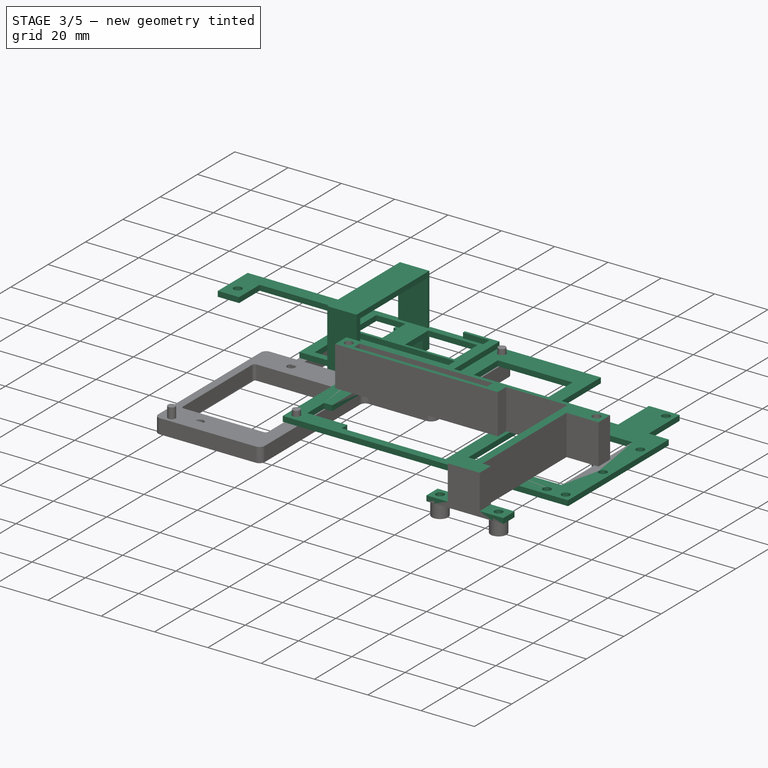
[diagram: stage 3 of 5 — iso view after this stage's code; geometry added in this stage tinted green]
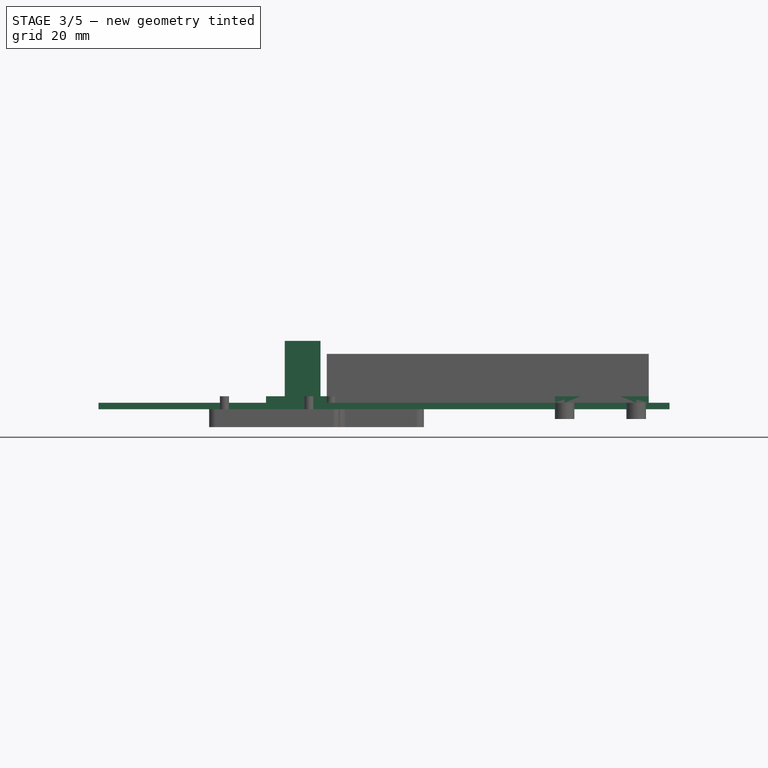
[diagram: stage 3 of 5 — front view after this stage's code; geometry added in this stage tinted green]
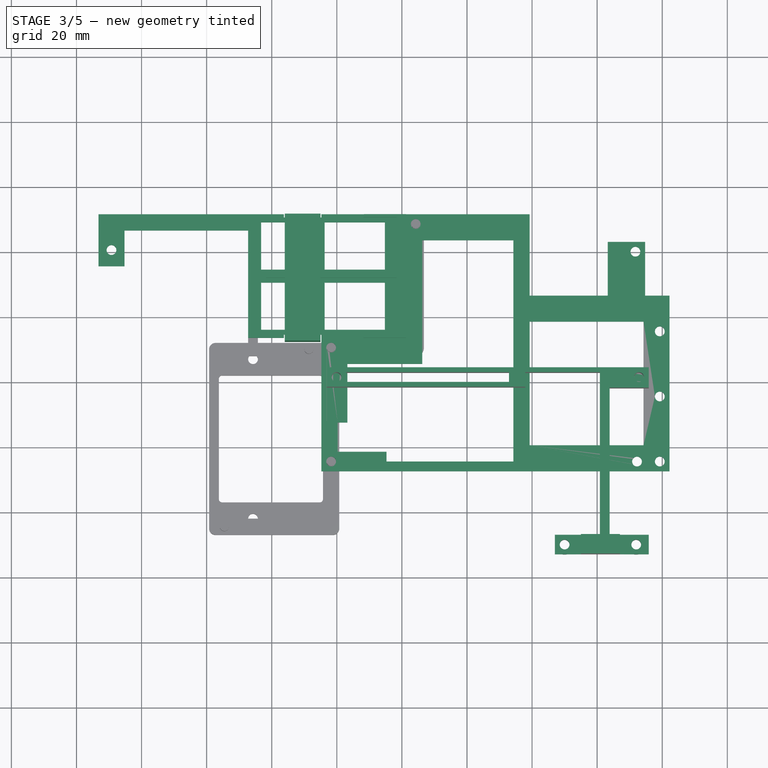
[diagram: stage 3 of 5 — top view after this stage's code; geometry added in this stage tinted green]
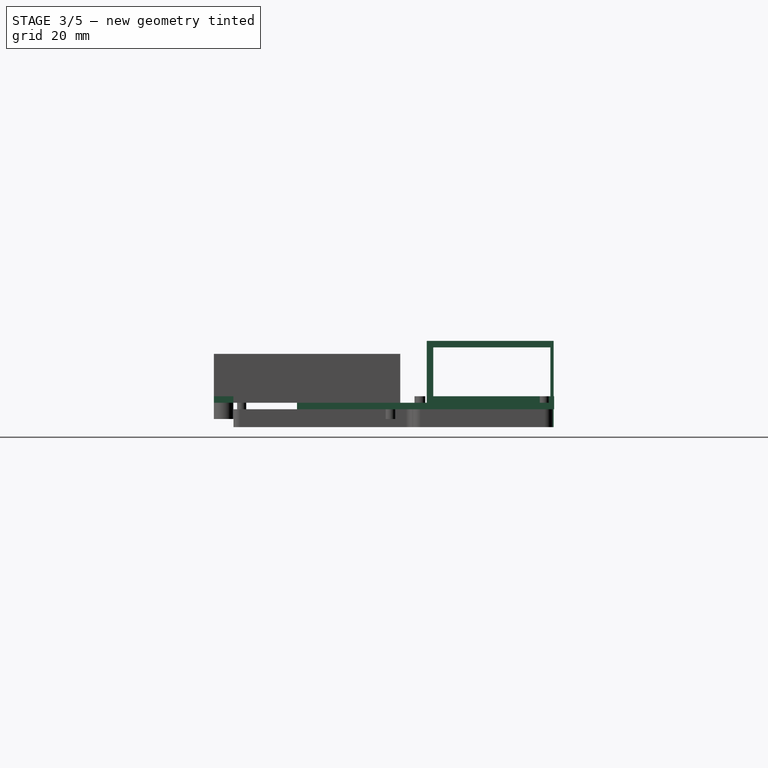
[diagram: stage 3 of 5 — right view after this stage's code; geometry added in this stage tinted green]
FEATURE [Part::Extrusion] Extrude012
  Base = -> Sketch011
  Dir = (0,0,1)
  DirMode = 2
  FaceMakerClass = Part::FaceMakerBullseye
  LengthFwd = 2
  LengthRev = 0
  Solid = true
  Symmetric = false
FEATURE [Sketcher::SketchObject] Sketch017
  FullyConstrained = true
  MapMode = 5
  Support = -> [XY_Plane]
  sketch-geometry (45):
    g0: LineSegment StartX=183.25 StartY=18 StartZ=0 EndX=183.25 EndY=94 EndZ=0
    g1: LineSegment StartX=183.25 StartY=94 StartZ=0 EndX=174 EndY=94 EndZ=0
    g2: LineSegment StartX=174 StartY=94 StartZ=0 EndX=174 EndY=112 EndZ=0
    g3: LineSegment StartX=174 StartY=112 StartZ=0 EndX=0 EndY=112 EndZ=0
    g4: LineSegment StartX=0 StartY=112 StartZ=0 EndX=0 EndY=94 EndZ=0
    g5: LineSegment StartX=0 StartY=94 StartZ=0 EndX=-9.25 EndY=94 EndZ=0
    g6: LineSegment StartX=-9.25 StartY=94 StartZ=0 EndX=-9.25 EndY=18 EndZ=0
    g7: LineSegment StartX=-9.25 StartY=18 StartZ=0 EndX=0 EndY=18 EndZ=0
    g8: LineSegment StartX=0 StartY=18 StartZ=0 EndX=0 EndY=0 EndZ=0
    g9: LineSegment StartX=0 StartY=0 StartZ=0 EndX=174 EndY=0 EndZ=0
    g10: LineSegment StartX=174 StartY=0 StartZ=0 EndX=174 EndY=18 EndZ=0
    g11: LineSegment StartX=174 StartY=18 StartZ=0 EndX=183.25 EndY=18 EndZ=0
    g12: LineSegment StartX=76.25 StartY=109.1 StartZ=0 EndX=94.75 EndY=109.1 EndZ=0
    g13: LineSegment StartX=94.75 StartY=109.1 StartZ=0 EndX=94.75 EndY=94.6 EndZ=0
    g14: LineSegment StartX=94.75 StartY=94.6 StartZ=0 EndX=76.25 EndY=94.6 EndZ=0
    g15: LineSegment StartX=76.25 StartY=94.6 StartZ=0 EndX=76.25 EndY=109.1 EndZ=0
    g16: LineSegment StartX=56.75 StartY=109.1 StartZ=0 EndX=67.75 EndY=109.1 EndZ=0
    g17: LineSegment StartX=67.75 StartY=109.1 StartZ=0 EndX=67.75 EndY=94.6 EndZ=0
    g18: LineSegment StartX=67.75 StartY=94.6 StartZ=0 EndX=56.75 EndY=94.6 EndZ=0
    g19: LineSegment StartX=56.75 StartY=94.6 StartZ=0 EndX=56.75 EndY=109.1 EndZ=0
    g20: LineSegment StartX=76.25 StartY=90.6 StartZ=0 EndX=94.75 EndY=90.6 EndZ=0
    g21: LineSegment StartX=94.75 StartY=90.6 StartZ=0 EndX=94.75 EndY=76.1 EndZ=0
    g22: LineSegment StartX=94.75 StartY=76.1 StartZ=0 EndX=76.25 EndY=76.1 EndZ=0
    g23: LineSegment StartX=76.25 StartY=76.1 StartZ=0 EndX=76.25 EndY=90.6 EndZ=0
    g24: LineSegment StartX=56.75 StartY=90.6 StartZ=0 EndX=67.75 EndY=90.6 EndZ=0
    g25: LineSegment StartX=67.75 StartY=90.6 StartZ=0 EndX=67.75 EndY=76.1 EndZ=0
    g26: LineSegment StartX=67.75 StartY=76.1 StartZ=0 EndX=56.75 EndY=76.1 EndZ=0
    g27: LineSegment StartX=56.75 StartY=76.1 StartZ=0 EndX=56.75 EndY=90.6 EndZ=0
    g28: Circle CenterX=10.75 CenterY=100.6 CenterZ=0 NormalX=0 NormalY=0 NormalZ=1 AngleXU=0 Radius=1.5
    g29: LineSegment StartX=6.75 StartY=111.6 StartZ=0 EndX=6.75 EndY=95.6 EndZ=0
    g30: LineSegment StartX=101.25 StartY=111.6 StartZ=0 EndX=101.25 EndY=73.6 EndZ=0
    g31: LineSegment StartX=101.25 StartY=111.6 StartZ=0 EndX=75.25 EndY=111.6 EndZ=0
    g32: LineSegment StartX=75.25 StartY=111.6 StartZ=0 EndX=75.25 EndY=110.6 EndZ=0
    g33: LineSegment StartX=75.25 StartY=110.6 StartZ=0 EndX=63.75 EndY=110.6 EndZ=0
    g34: LineSegment StartX=63.75 StartY=110.6 StartZ=0 EndX=63.75 EndY=111.6 EndZ=0
    g35: LineSegment StartX=63.75 StartY=111.6 StartZ=0 EndX=6.75 EndY=111.6 EndZ=0
    g36: LineSegment StartX=101.25 StartY=73.6 StartZ=0 EndX=75.25 EndY=73.6 EndZ=0
    g37: LineSegment StartX=75.25 StartY=73.6 StartZ=0 EndX=75.25 EndY=74.6 EndZ=0
    g38: LineSegment StartX=75.25 StartY=74.6 StartZ=0 EndX=63.75 EndY=74.6 EndZ=0
    g39: LineSegment StartX=63.75 StartY=74.6 StartZ=0 EndX=63.75 EndY=73.6 EndZ=0
    g40: LineSegment StartX=6.75 StartY=95.6 StartZ=0 EndX=14.75 EndY=95.6 EndZ=0
    g41: LineSegment StartX=14.75 StartY=95.6 StartZ=0 EndX=14.75 EndY=106.6 EndZ=0
    g42: LineSegment StartX=14.75 StartY=106.6 StartZ=0 EndX=52.75 EndY=106.6 EndZ=0
    g43: LineSegment StartX=52.75 StartY=106.6 StartZ=0 EndX=52.75 EndY=73.6 EndZ=0
    g44: LineSegment StartX=52.75 StartY=73.6 StartZ=0 EndX=63.75 EndY=73.6 EndZ=0
  constraints (134):
    c: Vertical(g0)
    c: Coincident(g0,g1)
    c: Coincident(g1,g2)
    c: Vertical(g2)
    c: Coincident(g2,g3)
    c: Horizontal(g3)
    c: Coincident(g3,g4)
    c: Vertical(g4)
    c: Coincident(g4,g5)
    c: Horizontal(g5)
    c: Coincident(g5,g6)
    c: Vertical(g6)
    c: Coincident(g6,g7)
    c: Horizontal(g7)
    c: Coincident(g7,g8)
    c: Vertical(g8)
    c: Coincident(g8,g9)
    c: Horizontal(g9)
    c: Coincident(g9,g10)
    c: Vertical(g10)
    c: Coincident(g10,g11)
    c: Coincident(g11,g0)
    c: Horizontal(g11)
    c: DistanceY(g8,g3) = 112
    c: Horizontal(g1)
    c: Equal(g4,g2)
    c: Equal(g2,g10)
    c: Equal(g10,g8)
    c: DistanceY(g8,g8) = 18
    c: DistanceX(g6,g0) = 192.5
    c: DistanceX(g9,g9) = 174
    c: Vertical(g1,g9)
    c: Coincident(g12,g13)
    c: Coincident(g13,g14)
    c: Coincident(g14,g15)
    c: Coincident(g15,g12)
    c: Horizontal(g12)
    c: Horizontal(g14)
    c: Vertical(g13)
    c: Vertical(g15)
    c: DistanceY(g13,g13) = 14.5
    c: DistanceX(g12,g12) = 18.5
    c: Coincident(g16,g17)
    c: Coincident(g17,g18)
    c: Coincident(g18,g19)
    c: Coincident(g19,g16)
    c: Horizontal(g16)
    c: Horizontal(g18)
    c: Vertical(g17)
    c: Vertical(g19)
    c: DistanceY(g17,g17) = 14.5
    c: DistanceX(g16,g16) = 11
    c: Coincident(g20,g21)
    c: Coincident(g21,g22)
    c: Coincident(g22,g23)
    c: Coincident(g23,g20)
    c: Horizontal(g20)
    c: Horizontal(g22)
    c: Vertical(g21)
    c: Vertical(g23)
    c: Equal(g21,g13)
    c: Equal(g20,g12)
    c: Vertical(g20,g12)
    c: Coincident(g24,g25)
    c: Coincident(g25,g26)
    c: Coincident(g26,g27)
    c: Coincident(g27,g24)
    c: Horizontal(g24)
    c: Horizontal(g26)
    c: Vertical(g25)
    c: Vertical(g27)
    c: Equal(g25,g17)
    c: Equal(g24,g16)
    c: DistanceY(g24,g18) = 4
    c: DistanceX(g17,g14) = 8.5
    c: Vertical(g18,g24)
    c: Horizontal(g14,g18)
    c: DistanceY(g20,g14) = 4
    c: Vertical(g30)
    c: DistanceY(g12,g30) = 2.5
    c: DistanceY(g30,g21) = 2.5
    c: DistanceX(g12,g30) = 6.5
    c: Vertical(g29)
    c: Coincident(g31,g32)
    c: Coincident(g32,g33)
    c: Coincident(g33,g34)
    c: Coincident(g34,g35)
    c: Horizontal(g35)
    c: Coincident(g29,g35)
    c: Vertical(g34)
    c: Vertical(g32)
    c: Coincident(g31,g30)
    c: Horizontal(g31)
    c: Horizontal(g33)
    c: Coincident(g36,g37)
    c: Coincident(g37,g38)
    c: Coincident(g38,g39)
    c: Horizontal(g38)
    c: Horizontal(g36)
    c: Vertical(g37)
    c: Coincident(g36,g30)
    c: Vertical(g39)
    c: Horizontal(g34,g30)
    c: DistanceY(g32,g32) = 1
    c: Horizontal(g36,g39)
    c: DistanceY(g39,g39) = 1
    c: Vertical(g31,g36)
    c: Vertical(g38,g34)
    c: Coincident(g40,g41)
    c: Coincident(g41,g42)
    c: Coincident(g42,g43)
    c: Coincident(g43,g44)
    c: Coincident(g44,g39)
    c: Vertical(g43)
    c: Horizontal(g44)
    c: Horizontal(g42)
    c: Vertical(g41)
    c: Horizontal(g40)
    c: DistanceX(g43,g26) = 4
    c: Diameter(g28) = 3
    c: Coincident(g40,g29)
    c: DistanceX(g40,g40) = 8
    c: DistanceY(g40,g28) = 5
    c: DistanceX(g29,g28) = 4
    c: DistanceY(g41,g29) = 5
    c: DistanceY(g28,g29) = 11
    c: DistanceY(g29,g3) = 0.4
    c: Coincident(g8,g-1)
    c: DistanceX(g7,g7) = 9.25
    c: Vertical(g4,g7)
    c: DistanceX(g31,g31) = 26
    c: DistanceX(g35,g35) = 57
    c: DistanceX(g30,g0) = 82
    c: DistanceX(g33,g33) = 11.5
FEATURE [Sketcher::SketchObject] Sketch018
  FullyConstrained = true
  MapMode = 5
  Support = -> [XY_Plane]
  sketch-geometry (83):
    g0: LineSegment StartX=0 StartY=0 StartZ=0 EndX=76.5 EndY=0 EndZ=0
    g1: LineSegment StartX=76.5 StartY=0 StartZ=0 EndX=76.5 EndY=32.5 EndZ=0
    g2: LineSegment StartX=76.5 StartY=32.5 StartZ=0 EndX=0 EndY=32.5 EndZ=0
    g3: LineSegment StartX=0 StartY=32.5 StartZ=0 EndX=0 EndY=15.5 EndZ=0
    g4: LineSegment StartX=0 StartY=15.5 StartZ=0 EndX=12 EndY=15.5 EndZ=0
    g5: LineSegment StartX=12 StartY=15.5 StartZ=0 EndX=12 EndY=7.5 EndZ=0
    g6: LineSegment StartX=12 StartY=7.5 StartZ=0 EndX=0 EndY=7.5 EndZ=0
    g7: LineSegment StartX=0 StartY=7.5 StartZ=0 EndX=0 EndY=0 EndZ=0
    g8: LineSegment StartX=183.25 StartY=18 StartZ=0 EndX=183.25 EndY=94 EndZ=0
    g9: LineSegment StartX=183.25 StartY=94 StartZ=0 EndX=174 EndY=94 EndZ=0
    g10: LineSegment StartX=174 StartY=94 StartZ=0 EndX=174 EndY=112 EndZ=0
    g11: LineSegment StartX=174 StartY=112 StartZ=0 EndX=0 EndY=112 EndZ=0
    g12: LineSegment StartX=0 StartY=112 StartZ=0 EndX=0 EndY=94 EndZ=0
    g13: LineSegment StartX=0 StartY=94 StartZ=0 EndX=-9.25 EndY=94 EndZ=0
    g14: LineSegment StartX=-9.25 StartY=94 StartZ=0 EndX=-9.25 EndY=18 EndZ=0
    g15: LineSegment StartX=-9.25 StartY=18 StartZ=0 EndX=0 EndY=18 EndZ=0
    g16: LineSegment StartX=0 StartY=18 StartZ=0 EndX=0 EndY=0 EndZ=0
    g17: LineSegment StartX=0 StartY=0 StartZ=0 EndX=174 EndY=0 EndZ=0
    g18: LineSegment StartX=174 StartY=0 StartZ=0 EndX=174 EndY=18 EndZ=0
    g19: LineSegment StartX=174 StartY=18 StartZ=0 EndX=183.25 EndY=18 EndZ=0
    g20: LineSegment StartX=131.25 StartY=103.6 StartZ=0 EndX=103.25 EndY=103.6 EndZ=0
    g21: LineSegment StartX=103.25 StartY=103.6 StartZ=0 EndX=103.25 EndY=66.6 EndZ=0
    g22: LineSegment StartX=103.25 StartY=66.6 StartZ=0 EndX=80.25 EndY=66.6 EndZ=0
    g23: LineSegment StartX=77.25 StartY=47.6 StartZ=0 EndX=77.25 EndY=38.6 EndZ=0
    g24: LineSegment StartX=92.25 StartY=35.6 StartZ=0 EndX=131.25 EndY=35.6 EndZ=0
    g25: LineSegment StartX=98.25 StartY=111.6 StartZ=0 EndX=98.25 EndY=74.6 EndZ=0
    g26: LineSegment StartX=98.25 StartY=74.6 StartZ=0 EndX=72.25 EndY=74.6 EndZ=0
    g27: LineSegment StartX=72.25 StartY=74.6 StartZ=0 EndX=72.25 EndY=32.6 EndZ=0
    g28: LineSegment StartX=72.25 StartY=32.6 StartZ=0 EndX=182.25 EndY=32.6 EndZ=0
    g29: LineSegment StartX=131.25 StartY=103.6 StartZ=0 EndX=131.25 EndY=35.6 EndZ=0
    g30: LineSegment StartX=136.25 StartY=111.6 StartZ=0 EndX=136.25 EndY=86.6 EndZ=0
    g31: LineSegment StartX=98.25 StartY=111.6 StartZ=0 EndX=136.25 EndY=111.6 EndZ=0
    g32: LineSegment StartX=136.25 StartY=78.6 StartZ=0 EndX=174.25 EndY=78.6 EndZ=0
    g33: LineSegment StartX=174.25 StartY=78.6 StartZ=0 EndX=174.25 EndY=40.6 EndZ=0
    g34: LineSegment StartX=174.25 StartY=40.6 StartZ=0 EndX=136.25 EndY=40.6 EndZ=0
    g35: LineSegment StartX=136.25 StartY=40.6 StartZ=0 EndX=136.25 EndY=78.6 EndZ=0
    g36: LineSegment StartX=77.25 StartY=47.6 StartZ=0 EndX=80.25 EndY=47.6 EndZ=0
    g37: LineSegment StartX=80.25 StartY=47.6 StartZ=0 EndX=80.25 EndY=66.6 EndZ=0
    g38: Circle CenterX=169.75 CenterY=35.6 CenterZ=0 NormalX=0 NormalY=0 NormalZ=1 AngleXU=0 Radius=1.5
    g39: Circle CenterX=101.25 CenterY=108.6 CenterZ=0 NormalX=0 NormalY=0 NormalZ=1 AngleXU=0 Radius=1.5
    g40: Circle CenterX=179.25 CenterY=35.6 CenterZ=0 NormalX=0 NormalY=0 NormalZ=1 AngleXU=0 Radius=1.5
    g41: Circle CenterX=179.25 CenterY=55.6 CenterZ=0 NormalX=0 NormalY=0 NormalZ=1 AngleXU=0 Radius=1.5
    g42: Circle CenterX=179.25 CenterY=75.6 CenterZ=0 NormalX=0 NormalY=0 NormalZ=1 AngleXU=0 Radius=1.5
    g43: LineSegment StartX=182.25 StartY=86.6 StartZ=0 EndX=182.25 EndY=32.6 EndZ=0
    g44: LineSegment StartX=77.25 StartY=38.6 StartZ=0 EndX=92.25 EndY=38.6 EndZ=0
    g45: LineSegment StartX=92.25 StartY=38.6 StartZ=0 EndX=92.25 EndY=35.6 EndZ=0
    g46: Circle CenterX=75.25 CenterY=35.6 CenterZ=0 NormalX=0 NormalY=0 NormalZ=1 AngleXU=0 Radius=2.5
    g47: LineSegment StartX=136.25 StartY=86.6 StartZ=0 EndX=160.25 EndY=86.6 EndZ=0
    g48: LineSegment StartX=160.25 StartY=86.6 StartZ=0 EndX=160.25 EndY=103.1 EndZ=0
    g49: LineSegment StartX=160.25 StartY=103.1 StartZ=0 EndX=174.75 EndY=103.1 EndZ=0
    g50: LineSegment StartX=174.75 StartY=103.1 StartZ=0 EndX=174.75 EndY=86.6 EndZ=0
    g51: LineSegment StartX=174.75 StartY=86.6 StartZ=0 EndX=182.25 EndY=86.6 EndZ=0
    g52: Circle CenterX=179.25 CenterY=35.6 CenterZ=0 NormalX=0 NormalY=0 NormalZ=1 AngleXU=0 Radius=2.5
    g53: Circle CenterX=171.75 CenterY=100.1 CenterZ=0 NormalX=0 NormalY=0 NormalZ=1 AngleXU=0 Radius=1.5
    g54: Circle CenterX=171.75 CenterY=100.1 CenterZ=0 NormalX=0 NormalY=0 NormalZ=1 AngleXU=0 Radius=3
    g55: LineSegment StartX=34.5 StartY=99.5 StartZ=0 EndX=52 EndY=99.5 EndZ=0
    g56: LineSegment StartX=52 StartY=99.5 StartZ=0 EndX=52 EndY=85 EndZ=0
    g57: LineSegment StartX=52 StartY=85 StartZ=0 EndX=34.5 EndY=85 EndZ=0
    g58: LineSegment StartX=34.5 StartY=85 StartZ=0 EndX=34.5 EndY=99.5 EndZ=0
    g59: LineSegment StartX=10 StartY=102 StartZ=0 EndX=55 EndY=102 EndZ=0
    g60: LineSegment StartX=55 StartY=64 StartZ=0 EndX=10 EndY=64 EndZ=0
    g61: LineSegment StartX=14 StartY=99.5 StartZ=0 EndX=24 EndY=99.5 EndZ=0
    g62: LineSegment StartX=24 StartY=99.5 StartZ=0 EndX=24 EndY=85 EndZ=0
    g63: LineSegment StartX=24 StartY=85 StartZ=0 EndX=14 EndY=85 EndZ=0
    g64: LineSegment StartX=14 StartY=85 StartZ=0 EndX=14 EndY=99.5 EndZ=0
    g65: LineSegment StartX=34.5 StartY=81 StartZ=0 EndX=52 EndY=81 EndZ=0
    g66: LineSegment StartX=52 StartY=81 StartZ=0 EndX=52 EndY=66.5 EndZ=0
    g67: LineSegment StartX=52 StartY=66.5 StartZ=0 EndX=34.5 EndY=66.5 EndZ=0
    g68: LineSegment StartX=34.5 StartY=66.5 StartZ=0 EndX=34.5 EndY=81 EndZ=0
    g69: LineSegment StartX=14 StartY=81 StartZ=0 EndX=24 EndY=81 EndZ=0
    g70: LineSegment StartX=24 StartY=81 StartZ=0 EndX=24 EndY=66.5 EndZ=0
    g71: LineSegment StartX=24 StartY=66.5 StartZ=0 EndX=14 EndY=66.5 EndZ=0
    g72: LineSegment StartX=14 StartY=66.5 StartZ=0 EndX=14 EndY=81 EndZ=0
    g73: LineSegment StartX=10 StartY=102 StartZ=0 EndX=10 EndY=101 EndZ=0
    g74: LineSegment StartX=10 StartY=64 StartZ=0 EndX=10 EndY=65 EndZ=0
    g75: LineSegment StartX=53 StartY=65 StartZ=0 EndX=10 EndY=65 EndZ=0
    g76: LineSegment StartX=10 StartY=83.5 StartZ=0 EndX=53 EndY=83.5 EndZ=0
    g77: LineSegment StartX=53 StartY=82.5 StartZ=0 EndX=10 EndY=82.5 EndZ=0
    g78: LineSegment StartX=10 StartY=82.5 StartZ=0 EndX=10 EndY=83.5 EndZ=0
    g79: LineSegment StartX=10 StartY=101 StartZ=0 EndX=53 EndY=101 EndZ=0
    g80: LineSegment StartX=53 StartY=101 StartZ=0 EndX=53 EndY=83.5 EndZ=0
    g81: LineSegment StartX=53 StartY=65 StartZ=0 EndX=53 EndY=82.5 EndZ=0
    g82: LineSegment StartX=55 StartY=102 StartZ=0 EndX=55 EndY=64 EndZ=0
  constraints (245):
    c: Vertical(g5)
    c: Vertical(g3)
    c: Vertical(g7)
    c: Vertical(g1)
    c: Horizontal(g2)
    c: Horizontal(g4)
    c: Horizontal(g6)
    c: Horizontal(g0)
    c: Coincident(g0,g7)
    c: Coincident(g7,g6)
    c: Coincident(g6,g5)
    c: Coincident(g4,g5)
    c: Coincident(g4,g3)
    c: Coincident(g2,g3)
    c: Coincident(g2,g1)
    c: Coincident(g0,g1)
    c: Coincident(g0,g-1)
    c: Vertical(g3,g0)
    c: DistanceY(g5,g5) = 8
    c: DistanceY(g0,g4) = 15.5
    c: DistanceX(g4,g4) = 12
    c: DistanceY(g1,g1) = 32.5
    c: DistanceX(g2,g2) = 76.5
    c: Vertical(g8)
    c: Coincident(g8,g9)
    c: Coincident(g9,g10)
    c: Vertical(g10)
    c: Coincident(g10,g11)
    c: Horizontal(g11)
    c: Coincident(g11,g12)
    c: Vertical(g12)
    c: Coincident(g12,g13)
    c: Horizontal(g13)
    c: Coincident(g13,g14)
    c: Vertical(g14)
    c: Coincident(g14,g15)
    c: Horizontal(g15)
    c: Coincident(g15,g16)
    c: Vertical(g16)
    c: Coincident(g16,g17)
    c: Horizontal(g17)
    c: Coincident(g17,g18)
    c: Vertical(g18)
    c: Coincident(g18,g19)
    c: Coincident(g19,g8)
    c: Horizontal(g19)
    c: DistanceY(g16,g11) = 112
    c: Horizontal(g9)
    c: Equal(g12,g10)
    c: Equal(g10,g18)
    c: Equal(g18,g16)
    c: DistanceY(g16,g16) = 18
    c: Coincident(g16,g0)
    c: DistanceX(g14,g8) = 192.5
    c: DistanceX(g17,g17) = 174
    c: Vertical(g12,g0)
    c: Vertical(g9,g17)
    c: DistanceX(g14,g0) = 9.25
    c: Horizontal(g20)
    c: Coincident(g20,g21)
    c: Vertical(g21)
    c: Coincident(g21,g22)
    c: Horizontal(g22)
    c: Vertical(g23)
    c: Horizontal(g24)
    c: Vertical(g25)
    c: Coincident(g25,g26)
    c: Horizontal(g26)
    c: Coincident(g26,g27)
    c: Vertical(g27)
    c: Coincident(g27,g28)
    c: Horizontal(g28)
    c: DistanceX(g25,g20) = 5
    c: DistanceY(g25,g25) = 37
    c: DistanceY(g21,g25) = 8
    c: DistanceY(g28,g24) = 3
    c: Vertical(g29)
    c: Vertical(g30)
    c: Coincident(g31,g25)
    c: Horizontal(g31)
    c: Coincident(g30,g31)
    c: Coincident(g29,g20)
    c: DistanceY(g27,g25) = 79
    c: Coincident(g32,g33)
    c: Coincident(g33,g34)
    c: Coincident(g34,g35)
    c: Coincident(g35,g32)
    c: Horizontal(g32)
    c: Horizontal(g34)
    c: Vertical(g33)
    c: Vertical(g35)
    c: Coincident(g24,g29)
    c: DistanceY(g27,g34) = 8
    c: DistanceX(g20,g30) = 5
    c: DistanceX(g31,g31) = 38
    c: DistanceX(g24,g34) = 5
    c: DistanceX(g28,g28) = 110
    c: DistanceY(g30,g30) = 25
    c: DistanceX(g32,g43) = 8
    c: DistanceY(g27,g23) = 15
    c: Coincident(g23,g36)
    c: Horizontal(g36)
    c: Coincident(g36,g37)
    c: Vertical(g37)
    c: Coincident(g22,g37)
    c: DistanceX(g27,g36) = 8
    c: DistanceY(g20,g30) = 8
    c: DistanceY(g32,g30) = 8
    c: Diameter(g38) = 3
    c: DistanceY(g28,g38) = 3
    c: Diameter(g39) = 3
    c: DistanceX(g25,g39) = 3
    c: DistanceY(g39,g25) = 3
    c: Horizontal(g38,g40)
    c: Diameter(g40) = 3
    c: Diameter(g41) = 3
    c: Vertical(g41,g40)
    c: DistanceY(g40,g41) = 20
    c: Diameter(g42) = 3
    c: Vertical(g42,g41)
    c: DistanceY(g41,g42) = 20
    c: Vertical(g43)
    c: DistanceX(g26,g26) = 26
    c: Coincident(g43,g28)
    c: DistanceX(g27,g40) = 107
    c: Coincident(g44,g45)
    c: DistanceX(g27,g44) = 20
    c: Vertical(g45)
    c: Horizontal(g44)
    c: DistanceY(g27,g44) = 6
    c: Coincident(g23,g44)
    c: Coincident(g24,g45)
    c: DistanceX(g44,g44) = 15
    c: DistanceX(g43,g8) = 1
    c: DistanceY(g43,g8) = 7.4
    c: Diameter(g46) = 5
    c: DistanceY(g27,g46) = 3
    c: DistanceX(g27,g46) = 3
    c: DistanceX(g46,g38) = 94.5
    c: DistanceX(g47,g47) = 24
    c: Coincident(g48,g49)
    c: Coincident(g49,g50)
    c: Coincident(g50,g51)
    c: Horizontal(g51)
    c: Coincident(g51,g43)
    c: Vertical(g50)
    c: Vertical(g48)
    c: Horizontal(g49)
    c: Horizontal(g47)
    c: Diameter(g52) = 5
    c: Coincident(g52,g40)
    c: Coincident(g47,g30)
    c: Coincident(g48,g47)
    c: Horizontal(g47,g50)
    c: Diameter(g53) = 3
    c: DistanceX(g53,g40) = 7.5
    c: DistanceY(g42,g53) = 24.5
    c: Diameter(g54) = 6
    c: Coincident(g54,g53)
    c: Tangent(g50,g54)
    c: Tangent(g49,g54)
    c: Coincident(g55,g56)
    c: Coincident(g56,g57)
    c: Coincident(g57,g58)
    c: Coincident(g58,g55)
    c: Horizontal(g55)
    c: Horizontal(g57)
    c: Vertical(g56)
    c: Vertical(g58)
    c: DistanceY(g56,g56) = 14.5
    c: Horizontal(g59)
    c: Horizontal(g60)
    c: DistanceY(g60,g59) = 38
    c: DistanceX(g59,g59) = 45
    c: DistanceX(g55,g59) = 3
    c: DistanceY(g55,g59) = 2.5
    c: DistanceX(g55,g55) = 17.5
    c: Coincident(g61,g62)
    c: Coincident(g62,g63)
    c: Coincident(g63,g64)
    c: Coincident(g64,g61)
    c: Horizontal(g61)
    c: Horizontal(g63)
    c: Vertical(g62)
    c: Vertical(g64)
    c: DistanceY(g62,g62) = 14.5
    c: DistanceX(g61,g61) = 10
    c: Horizontal(g61,g55)
    c: DistanceX(g60,g63) = 4
    c: Coincident(g65,g66)
    c: Coincident(g66,g67)
    c: Coincident(g67,g68)
    c: Coincident(g68,g65)
    c: Horizontal(g65)
    c: Horizontal(g67)
    c: Vertical(g66)
    c: Vertical(g68)
    c: Equal(g66,g56)
    c: Equal(g65,g55)
    c: Vertical(g65,g55)
    c: DistanceY(g60,g66) = 2.5
    c: Coincident(g69,g70)
    c: Coincident(g70,g71)
    c: Coincident(g71,g72)
    c: Coincident(g72,g69)
    c: Horizontal(g69)
    c: Horizontal(g71)
    c: Vertical(g70)
    c: Vertical(g72)
    c: Equal(g70,g62)
    c: Equal(g69,g61)
    c: DistanceY(g60,g71) = 2.5
    c: DistanceX(g60,g71) = 4
    c: DistanceY(g59,g11) = 10
    c: DistanceX(g11,g59) = 10
    c: Vertical(g73)
    c: Coincident(g73,g59)
    c: Vertical(g74)
    c: Horizontal(g75)
    c: Coincident(g74,g75)
    c: Coincident(g74,g60)
    c: DistanceY(g60,g75) = 1
    c: Vertical(g60,g73)
    c: Coincident(g77,g78)
    c: Coincident(g78,g76)
    c: Horizontal(g76)
    c: Horizontal(g77)
    c: Vertical(g78)
    c: DistanceY(g77,g76) = 1
    c: Vertical(g77,g60)
    c: DistanceY(g76,g73) = 17.5
    c: Horizontal(g79)
    c: DistanceX(g79,g79) = 43
    c: Vertical(g80)
    c: Coincident(g80,g79)
    c: Coincident(g79,g73)
    c: DistanceY(g73,g73) = 1
    c: Coincident(g80,g76)
    c: Vertical(g77,g76)
    c: Coincident(g81,g77)
    c: Vertical(g81)
    c: Coincident(g75,g81)
    c: DistanceX(g60,g60) = 45
    c: Coincident(g82,g59)
    c: Coincident(g82,g60)
FEATURE [Sketcher::SketchObject] Sketch019
  FullyConstrained = false
  MapMode = 5
  Support = -> [XY_Plane]
  sketch-geometry (57):
    g0: LineSegment StartX=0 StartY=0 StartZ=0 EndX=76.5 EndY=0 EndZ=0
    g1: LineSegment StartX=0 StartY=15.5 StartZ=0 EndX=12 EndY=15.5 EndZ=0
    g2: LineSegment StartX=12 StartY=15.5 StartZ=0 EndX=12 EndY=7.5 EndZ=0
    g3: LineSegment StartX=12 StartY=7.5 StartZ=0 EndX=0 EndY=7.5 EndZ=0
    g4: LineSegment StartX=0 StartY=7.5 StartZ=0 EndX=0 EndY=0 EndZ=0
    g5: LineSegment StartX=183.25 StartY=18 StartZ=0 EndX=183.25 EndY=94 EndZ=0
    g6: LineSegment StartX=183.25 StartY=94 StartZ=0 EndX=174 EndY=94 EndZ=0
    g7: LineSegment StartX=174 StartY=94 StartZ=0 EndX=174 EndY=112 EndZ=0
    g8: LineSegment StartX=174 StartY=112 StartZ=0 EndX=0 EndY=112 EndZ=0
    g9: LineSegment StartX=0 StartY=112 StartZ=0 EndX=0 EndY=94 EndZ=0
    g10: LineSegment StartX=0 StartY=94 StartZ=0 EndX=-9.25 EndY=94 EndZ=0
    g11: LineSegment StartX=-9.25 StartY=94 StartZ=0 EndX=-9.25 EndY=18 EndZ=0
    g12: LineSegment StartX=-9.25 StartY=18 StartZ=0 EndX=0 EndY=18 EndZ=0
    g13: LineSegment StartX=0 StartY=18 StartZ=0 EndX=0 EndY=0 EndZ=0
    g14: LineSegment StartX=0 StartY=0 StartZ=0 EndX=174 EndY=0 EndZ=0
    g15: LineSegment StartX=174 StartY=0 StartZ=0 EndX=174 EndY=18 EndZ=0
    g16: LineSegment StartX=174 StartY=18 StartZ=0 EndX=183.25 EndY=18 EndZ=0
    g17: LineSegment StartX=77.75 StartY=109.1 StartZ=0 EndX=96.25 EndY=109.1 EndZ=0
    g18: LineSegment StartX=96.25 StartY=109.1 StartZ=0 EndX=96.25 EndY=94.6 EndZ=0
    g19: LineSegment StartX=96.25 StartY=94.6 StartZ=0 EndX=77.75 EndY=94.6 EndZ=0
    g20: LineSegment StartX=77.75 StartY=94.6 StartZ=0 EndX=77.75 EndY=109.1 EndZ=0
    g21: LineSegment StartX=58.25 StartY=109.1 StartZ=0 EndX=69.25 EndY=109.1 EndZ=0
    g22: LineSegment StartX=69.25 StartY=109.1 StartZ=0 EndX=69.25 EndY=94.6 EndZ=0
    g23: LineSegment StartX=69.25 StartY=94.6 StartZ=0 EndX=58.25 EndY=94.6 EndZ=0
    g24: LineSegment StartX=58.25 StartY=94.6 StartZ=0 EndX=58.25 EndY=109.1 EndZ=0
    g25: LineSegment StartX=77.75 StartY=90.6 StartZ=0 EndX=96.25 EndY=90.6 EndZ=0
    g26: LineSegment StartX=96.25 StartY=90.6 StartZ=0 EndX=96.25 EndY=76.1 EndZ=0
    g27: LineSegment StartX=96.25 StartY=76.1 StartZ=0 EndX=77.75 EndY=76.1 EndZ=0
    g28: LineSegment StartX=77.75 StartY=76.1 StartZ=0 EndX=77.75 EndY=90.6 EndZ=0
    g29: LineSegment StartX=58.25 StartY=90.6 StartZ=0 EndX=69.25 EndY=90.6 EndZ=0
    g30: LineSegment StartX=69.25 StartY=90.6 StartZ=0 EndX=69.25 EndY=76.1 EndZ=0
    g31: LineSegment StartX=69.25 StartY=76.1 StartZ=0 EndX=58.25 EndY=76.1 EndZ=0
    g32: LineSegment StartX=58.25 StartY=76.1 StartZ=0 EndX=58.25 EndY=90.6 EndZ=0
    g33: Circle CenterX=12.25 CenterY=100.1 CenterZ=0 NormalX=0 NormalY=0 NormalZ=1 AngleXU=0 Radius=1.5
    g34: LineSegment StartX=8.25 StartY=111.6 StartZ=0 EndX=8.25 EndY=95.1 EndZ=0
    g35: LineSegment StartX=101.25 StartY=111.6 StartZ=0 EndX=101.25 EndY=73.6 EndZ=0
    g36: LineSegment StartX=101.25 StartY=111.6 StartZ=0 EndX=88.25 EndY=111.6 EndZ=0
    g37: LineSegment StartX=88.25 StartY=111.6 StartZ=0 EndX=88.25 EndY=110.6 EndZ=0
    g38: LineSegment StartX=88.25 StartY=110.6 StartZ=0 EndX=68.25 EndY=110.6 EndZ=0
    g39: LineSegment StartX=68.25 StartY=110.6 StartZ=0 EndX=68.25 EndY=111.6 EndZ=0
    g40: LineSegment StartX=68.25 StartY=111.6 StartZ=0 EndX=8.25 EndY=111.6 EndZ=0
    g41: LineSegment StartX=101.25 StartY=73.6 StartZ=0 EndX=88.25 EndY=73.6 EndZ=0
    g42: LineSegment StartX=88.25 StartY=73.6 StartZ=0 EndX=88.25 EndY=74.6 EndZ=0
    g43: LineSegment StartX=88.25 StartY=74.6 StartZ=0 EndX=68.25 EndY=74.6 EndZ=0
    g44: LineSegment StartX=68.25 StartY=74.6 StartZ=0 EndX=68.25 EndY=73.6 EndZ=0
    g45: LineSegment StartX=8.25 StartY=95.1 StartZ=0 EndX=16.25 EndY=95.1 EndZ=0
    g46: LineSegment StartX=16.25 StartY=95.1 StartZ=0 EndX=16.25 EndY=106.6 EndZ=0
    g47: LineSegment StartX=16.25 StartY=106.6 StartZ=0 EndX=54.25 EndY=106.6 EndZ=0
    g48: LineSegment StartX=54.25 StartY=106.6 StartZ=0 EndX=54.25 EndY=73.6 EndZ=0
    g49: LineSegment StartX=54.25 StartY=73.6 StartZ=0 EndX=68.25 EndY=73.6 EndZ=0
    g50: LineSegment StartX=88.25 StartY=74.6 StartZ=0 EndX=98.25 EndY=74.6 EndZ=0
    g51: LineSegment StartX=98.25 StartY=74.6 StartZ=0 EndX=98.25 EndY=92.1 EndZ=0
    g52: LineSegment StartX=98.25 StartY=92.1 StartZ=0 EndX=58.25 EndY=92.1 EndZ=0
    g53: LineSegment StartX=58.25 StartY=92.1 StartZ=0 EndX=58.25 EndY=93.1 EndZ=0
    g54: LineSegment StartX=58.25 StartY=93.1 StartZ=0 EndX=98.25 EndY=93.1 EndZ=0
    g55: LineSegment StartX=98.25 StartY=93.1 StartZ=0 EndX=98.25 EndY=110.6 EndZ=0
    g56: LineSegment StartX=88.25 StartY=110.6 StartZ=0 EndX=98.25 EndY=110.6 EndZ=0
  constraints (168):
    c: Vertical(g2)
    c: Vertical(g4)
    c: Horizontal(g1)
    c: Horizontal(g3)
    c: Horizontal(g0)
    c: Coincident(g0,g4)
    c: Coincident(g4,g3)
    c: Coincident(g3,g2)
    c: Coincident(g1,g2)
    c: Coincident(g0,g-1)
    c: Vertical(g1,g0)
    c: DistanceY(g2,g2) = 8
    c: DistanceY(g0,g1) = 15.5
    c: DistanceX(g1,g1) = 12
    c: Vertical(g5)
    c: Coincident(g5,g6)
    c: Coincident(g6,g7)
    c: Vertical(g7)
    c: Coincident(g7,g8)
    c: Horizontal(g8)
    c: Coincident(g8,g9)
    c: Vertical(g9)
    c: Coincident(g9,g10)
    c: Horizontal(g10)
    c: Coincident(g10,g11)
    c: Vertical(g11)
    c: Coincident(g11,g12)
    c: Horizontal(g12)
    c: Coincident(g12,g13)
    c: Vertical(g13)
    c: Coincident(g13,g14)
    c: Horizontal(g14)
    c: Coincident(g14,g15)
    c: Vertical(g15)
    c: Coincident(g15,g16)
    c: Coincident(g16,g5)
    c: Horizontal(g16)
    c: DistanceY(g13,g8) = 112
    c: Horizontal(g6)
    c: Equal(g9,g7)
    c: Equal(g7,g15)
    c: Equal(g15,g13)
    c: DistanceY(g13,g13) = 18
    c: Coincident(g13,g0)
    c: DistanceX(g11,g5) = 192.5
    c: DistanceX(g14,g14) = 174
    c: Vertical(g9,g0)
    c: Vertical(g6,g14)
    c: DistanceX(g11,g0) = 9.25
    c: Coincident(g17,g18)
    c: Coincident(g18,g19)
    c: Coincident(g19,g20)
    c: Coincident(g20,g17)
    c: Horizontal(g17)
    c: Horizontal(g19)
    c: Vertical(g18)
    c: Vertical(g20)
    c: DistanceY(g18,g18) = 14.5
    c: DistanceX(g17,g17) = 18.5
    c: Coincident(g21,g22)
    c: Coincident(g22,g23)
    c: Coincident(g23,g24)
    c: Coincident(g24,g21)
    c: Horizontal(g21)
    c: Horizontal(g23)
    c: Vertical(g22)
    c: Vertical(g24)
    c: DistanceY(g22,g22) = 14.5
    c: DistanceX(g21,g21) = 11
    c: Coincident(g25,g26)
    c: Coincident(g26,g27)
    c: Coincident(g27,g28)
    c: Coincident(g28,g25)
    c: Horizontal(g25)
    c: Horizontal(g27)
    c: Vertical(g26)
    c: Vertical(g28)
    c: Equal(g26,g18)
    c: Equal(g25,g17)
    c: Vertical(g25,g17)
    c: Coincident(g29,g30)
    c: Coincident(g30,g31)
    c: Coincident(g31,g32)
    c: Coincident(g32,g29)
    c: Horizontal(g29)
    c: Horizontal(g31)
    c: Vertical(g30)
    c: Vertical(g32)
    c: Equal(g30,g22)
    c: Equal(g29,g21)
    c: DistanceY(g29,g23) = 4
    c: DistanceX(g22,g19) = 8.5
    c: Vertical(g23,g29)
    c: Horizontal(g19,g23)
    c: DistanceY(g25,g19) = 4
    c: Vertical(g35)
    c: DistanceY(g17,g35) = 2.5
    c: DistanceY(g35,g26) = 2.5
    c: DistanceX(g17,g35) = 5
    c: Vertical(g34)
    c: Coincident(g36,g37)
    c: Coincident(g37,g38)
    c: Coincident(g38,g39)
    c: Coincident(g39,g40)
    c: Horizontal(g40)
    c: Coincident(g34,g40)
    c: Vertical(g39)
    c: Vertical(g37)
    c: Coincident(g36,g35)
    c: Horizontal(g36)
    c: Horizontal(g38)
    c: Coincident(g41,g42)
    c: Coincident(g42,g43)
    c: Coincident(g43,g44)
    c: Horizontal(g43)
    c: Horizontal(g41)
    c: Vertical(g42)
    c: Coincident(g41,g35)
    c: Vertical(g44)
    c: Horizontal(g39,g35)
    c: DistanceY(g37,g37) = 1
    c: Horizontal(g41,g44)
    c: DistanceY(g44,g44) = 1
    c: Vertical(g36,g41)
    c: Vertical(g43,g39)
    c: DistanceX(g43,g43) = 20
    c: DistanceX(g36,g36) = 13
    c: Coincident(g45,g46)
    c: Coincident(g46,g47)
    c: Coincident(g47,g48)
    c: Coincident(g48,g49)
    c: Coincident(g49,g44)
    c: Vertical(g48)
    c: Horizontal(g49)
    c: Horizontal(g47)
    c: Vertical(g46)
    c: Horizontal(g45)
    c: DistanceX(g48,g31) = 4
    c: Diameter(g33) = 3
    c: Coincident(g45,g34)
    c: DistanceX(g45,g45) = 8
    c: DistanceY(g45,g33) = 5
    c: DistanceX(g34,g33) = 4
    c: DistanceY(g46,g34) = 5
    c: DistanceX(g40,g40) = 60
    c: DistanceY(g34,g34) = 16.5
    c: Coincident(g56,g37)
    c: Horizontal(g56)
    c: Coincident(g56,g55)
    c: Vertical(g55)
    c: Coincident(g55,g54)
    c: Horizontal(g54)
    c: Coincident(g53,g54)
    c: Coincident(g53,g52)
    c: Vertical(g53)
    c: Horizontal(g52)
    c: Coincident(g52,g51)
    c: Vertical(g51)
    c: Coincident(g50,g51)
    c: Coincident(g42,g50)
    c: Horizontal(g50)
    c: Vertical(g54,g51)
    c: DistanceX(g55,g35) = 3
    c: DistanceY(g53,g53) = 1
    c: DistanceY(g53,g37) = 17.5
    c: DistanceX(g54,g54) = 40
    c: DistanceY(g34,g8) = 0.4
    c: DistanceX(g35,g5) = 82
FEATURE [Part::Extrusion] Extrude024
  Base = -> Sketch017
  Dir = (0,0,1)
  DirMode = 2
  FaceMakerClass = Part::FaceMakerBullseye
  LengthFwd = 2
  LengthRev = 0
  Solid = true
  Symmetric = false
FEATURE [Part::Extrusion] Extrude025
  Base = -> Sketch019
  Dir = (0,0,1)
  DirMode = 2
  FaceMakerClass = Part::FaceMakerBullseye
  LengthFwd = 3
  LengthRev = 0
  Placement = pos=(0,0,1) rot=(0,0,1;0rad)
  Solid = true
  Symmetric = false
FEATURE [Part::MultiFuse] Fusion008
  Shapes = -> [Extrude024,Extrude025]
FEATURE [Sketcher::SketchObject] Sketch020
  FullyConstrained = false
  MapMode = 5
  Placement = pos=(0,0,0) rot=(0.57735,0.57735,0.57735;2.0944rad)
  Support = -> [YZ_Plane]
  sketch-geometry (12):
    g0: LineSegment StartX=75.4578 StartY=19 StartZ=0 EndX=111.458 EndY=19 EndZ=0
    g1: LineSegment StartX=111.458 StartY=19 StartZ=0 EndX=111.458 EndY=0 EndZ=0
    g2: LineSegment StartX=111.458 StartY=0 StartZ=0 EndX=108.958 EndY=0 EndZ=0
    g3: LineSegment StartX=108.958 StartY=0 StartZ=0 EndX=108.958 EndY=-5.5 EndZ=0
    g4: LineSegment StartX=108.958 StartY=-5.5 StartZ=0 EndX=112.458 EndY=-5.5 EndZ=0
    g5: LineSegment StartX=112.458 StartY=-5.5 StartZ=0 EndX=112.458 EndY=21 EndZ=0
    g6: LineSegment StartX=112.458 StartY=21 StartZ=0 EndX=73.4578 EndY=21 EndZ=0
    g7: LineSegment StartX=73.4578 StartY=21 StartZ=0 EndX=73.4578 EndY=-5.5 EndZ=0
    g8: LineSegment StartX=73.4578 StartY=-5.5 StartZ=0 EndX=77.9578 EndY=-5.5 EndZ=0
    g9: LineSegment StartX=77.9578 StartY=-5.5 StartZ=0 EndX=77.9578 EndY=0 EndZ=0
    g10: LineSegment StartX=77.9578 StartY=0 StartZ=0 EndX=75.4578 EndY=0 EndZ=0
    g11: LineSegment StartX=75.4578 StartY=0 StartZ=0 EndX=75.4578 EndY=19 EndZ=0
  constraints (35):
    c: Horizontal(g0)
    c: Coincident(g0,g1)
    c: Vertical(g1)
    c: Coincident(g1,g2)
    c: Horizontal(g2)
    c: Coincident(g2,g3)
    c: Vertical(g3)
    c: Coincident(g3,g4)
    c: Coincident(g4,g5)
    c: Vertical(g5)
    c: Coincident(g5,g6)
    c: Horizontal(g6)
    c: Coincident(g6,g7)
    c: Vertical(g7)
    c: Coincident(g7,g8)
    c: Coincident(g8,g9)
    c: Vertical(g9)
    c: Coincident(g9,g10)
    c: Horizontal(g10)
    c: Coincident(g10,g11)
    c: Coincident(g11,g0)
    c: Vertical(g11)
    c: Horizontal(g8)
    c: Horizontal(g10,g-1)
    c: Horizontal(g2,g-1)
    c: DistanceX(g10,g10) = 2.5
    c: DistanceY(g0,g6) = 2
    c: DistanceX(g2,g2) = 2.5
    c: Horizontal(g4)
    c: DistanceY(g3,g3) = 5.5
    c: Horizontal(g8,g3)
    c: DistanceX(g0,g5) = 1
    c: DistanceX(g0,g0) = 36
    c: DistanceX(g6,g0) = 2
    c: DistanceY(g11,g11) = 19
FEATURE [Part::Extrusion] Extrude026
  Base = -> Sketch020
  Dir = (1,-1e-16,1e-16)
  DirMode = 2
  FaceMakerClass = Part::FaceMakerBullseye
  LengthFwd = 11
  LengthRev = 0
  Placement = pos=(64,-1,0) rot=(0,0,1;0rad)
  Solid = true
  Symmetric = false
FEATURE [Part::MultiFuse] Fusion009
  Shapes = -> [Extrude012,Fusion008]
FEATURE [Part::Cut] Cut003
  Base = -> Cut
  Placement = pos=(0,0,2) rot=(0,0,1;0rad)
  Tool = -> Extrude031
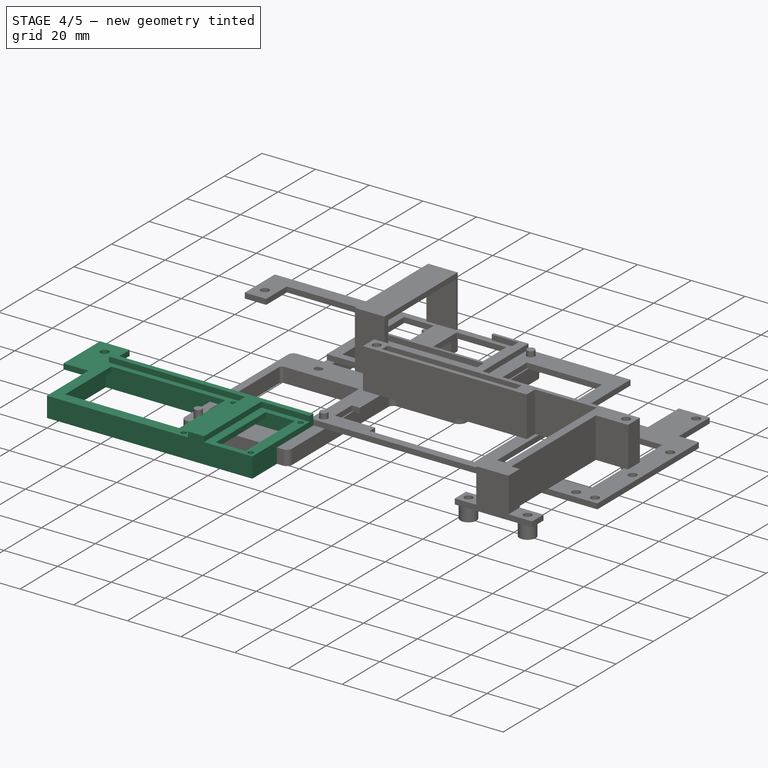
[diagram: stage 4 of 5 — iso view after this stage's code; geometry added in this stage tinted green]
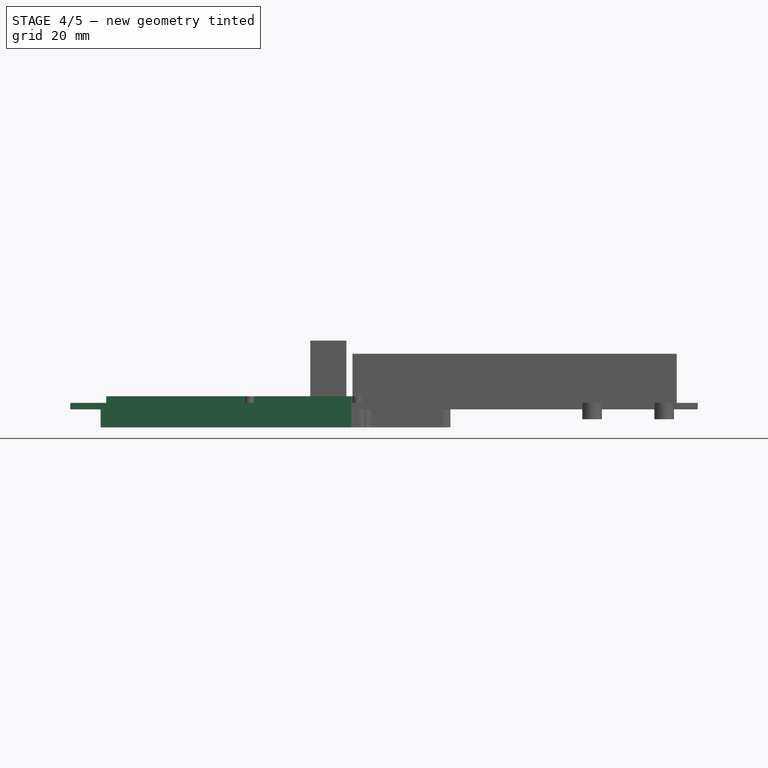
[diagram: stage 4 of 5 — front view after this stage's code; geometry added in this stage tinted green]
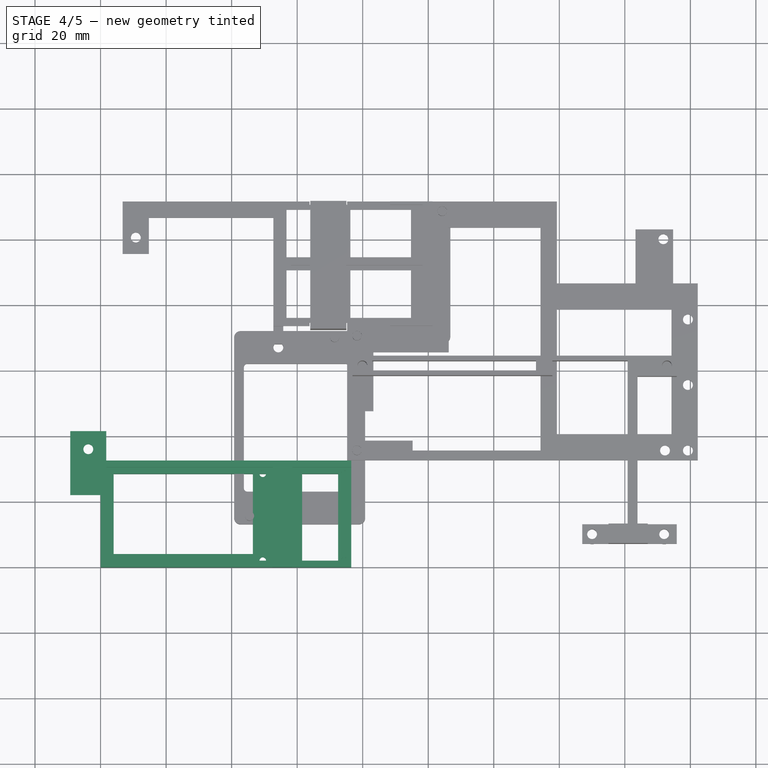
[diagram: stage 4 of 5 — top view after this stage's code; geometry added in this stage tinted green]
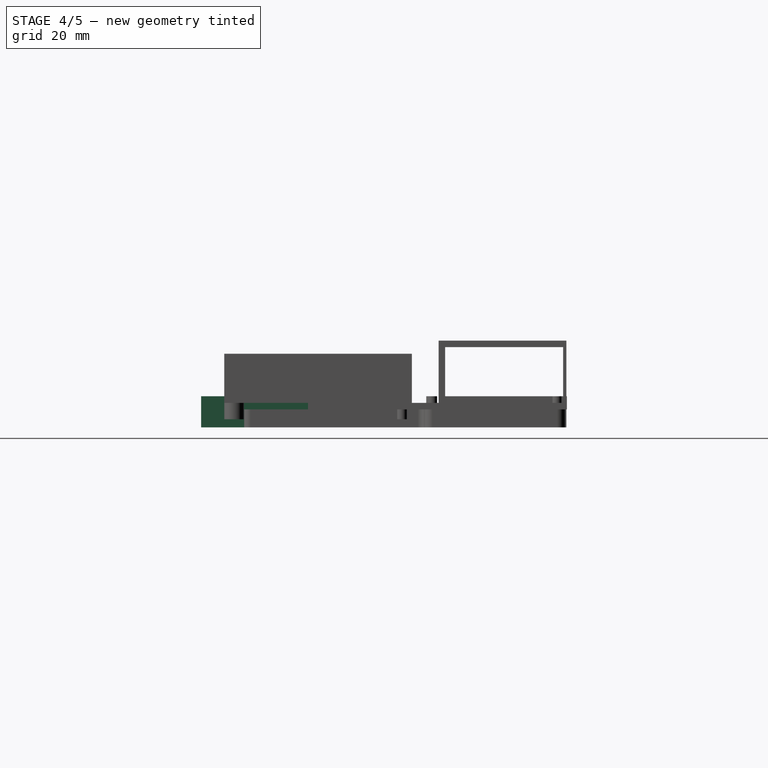
[diagram: stage 4 of 5 — right view after this stage's code; geometry added in this stage tinted green]
FEATURE [Sketcher::SketchObject] Sketch013
  FullyConstrained = true
  MapMode = 5
  Support = -> [XY_Plane]
  sketch-geometry (27):
    g0: LineSegment StartX=0 StartY=0 StartZ=0 EndX=76.5 EndY=0 EndZ=0
    g1: LineSegment StartX=76.5 StartY=0 StartZ=0 EndX=76.5 EndY=32.5 EndZ=0
    g2: LineSegment StartX=0 StartY=15.5 StartZ=0 EndX=12 EndY=15.5 EndZ=0
    g3: LineSegment StartX=12 StartY=15.5 StartZ=0 EndX=12 EndY=7.5 EndZ=0
    g4: LineSegment StartX=12 StartY=7.5 StartZ=0 EndX=0 EndY=7.5 EndZ=0
    g5: Circle CenterX=-3.75 CenterY=36 CenterZ=0 NormalX=0 NormalY=0 NormalZ=1 AngleXU=0 Radius=1.5
    g6: Circle CenterX=3.75 CenterY=11.5 CenterZ=0 NormalX=0 NormalY=0 NormalZ=1 AngleXU=0 Radius=1.5
    g7: Circle CenterX=-3.75 CenterY=36 CenterZ=0 NormalX=0 NormalY=0 NormalZ=1 AngleXU=0 Radius=3.75
    g8: Circle CenterX=3.75 CenterY=11.5 CenterZ=0 NormalX=0 NormalY=0 NormalZ=1 AngleXU=0 Radius=3.75
    g9: LineSegment StartX=0 StartY=0 StartZ=0 EndX=0 EndY=22 EndZ=0
    g10: LineSegment StartX=0 StartY=22 StartZ=0 EndX=-9.25 EndY=22 EndZ=0
    g11: LineSegment StartX=-9.25 StartY=22 StartZ=0 EndX=-9.25 EndY=41.5 EndZ=0
    g12: LineSegment StartX=-9.25 StartY=41.5 StartZ=0 EndX=1.75 EndY=41.5 EndZ=0
    g13: LineSegment StartX=1.75 StartY=41.5 StartZ=0 EndX=1.75 EndY=32.5 EndZ=0
    g14: LineSegment StartX=1.75 StartY=32.5 StartZ=0 EndX=76.5 EndY=32.5 EndZ=0
    g15: LineSegment StartX=61.5 StartY=28.5 StartZ=0 EndX=72.5 EndY=28.5 EndZ=0
    g16: LineSegment StartX=72.5 StartY=28.5 StartZ=0 EndX=72.5 EndY=2 EndZ=0
    g17: LineSegment StartX=72.5 StartY=2 StartZ=0 EndX=61.5 EndY=2 EndZ=0
    g18: LineSegment StartX=61.5 StartY=2 StartZ=0 EndX=61.5 EndY=28.5 EndZ=0
    g19: LineSegment StartX=46.5 StartY=28.5 StartZ=0 EndX=4 EndY=28.5 EndZ=0
    g20: LineSegment StartX=4 StartY=28.5 StartZ=0 EndX=4 EndY=4 EndZ=0
    g21: LineSegment StartX=4 StartY=4 StartZ=0 EndX=46.5 EndY=4 EndZ=0
    g22: LineSegment StartX=46.5 StartY=4 StartZ=0 EndX=46.5 EndY=28.5 EndZ=0
    g23: Circle CenterX=74.5 CenterY=28.5 CenterZ=0 NormalX=0 NormalY=0 NormalZ=1 AngleXU=0 Radius=1
    g24: Circle CenterX=74.5 CenterY=2 CenterZ=0 NormalX=0 NormalY=0 NormalZ=1 AngleXU=0 Radius=1
    g25: Circle CenterX=49.5 CenterY=28.5 CenterZ=0 NormalX=0 NormalY=0 NormalZ=1 AngleXU=0 Radius=1
    g26: Circle CenterX=49.5 CenterY=2 CenterZ=0 NormalX=0 NormalY=0 NormalZ=1 AngleXU=0 Radius=1
  constraints (79):
    c: Vertical(g3)
    c: Vertical(g1)
    c: Horizontal(g2)
    c: Horizontal(g4)
    c: Horizontal(g0)
    c: Coincident(g4,g3)
    c: Coincident(g2,g3)
    c: Coincident(g0,g1)
    c: Coincident(g0,g-1)
    c: Vertical(g2,g0)
    c: DistanceY(g3,g3) = 8
    c: DistanceY(g0,g2) = 15.5
    c: DistanceX(g2,g2) = 12
    c: DistanceY(g1,g1) = 32.5
    c: DistanceY(g6,g5) = 24.5
    c: DistanceX(g5,g6) = 7.5
    c: Equal(g5,g6)
    c: Diameter(g5) = 3
    c: Coincident(g8,g6)
    c: Coincident(g7,g5)
    c: Equal(g7,g8)
    c: Diameter(g7) = 7.5
    c: Coincident(g9,g0)
    c: PointOnObject(g9,g-2)
    c: DistanceY(g9,g9) = 22
    c: Coincident(g9,g10)
    c: Horizontal(g10)
    c: Coincident(g10,g11)
    c: Vertical(g11)
    c: Coincident(g11,g12)
    c: Horizontal(g12)
    c: Coincident(g12,g13)
    c: Vertical(g13)
    c: Coincident(g13,g14)
    c: Coincident(g14,g1)
    c: Horizontal(g14)
    c: DistanceX(g12,g12) = 11
    c: DistanceX(g11,g5) = 5.5
    c: DistanceY(g5,g11) = 5.5
    c: DistanceY(g3,g6) = 4
    c: DistanceX(g4,g6) = 3.75
    c: Vertical(g4,g0)
    c: DistanceX(g0,g0) = 76.5
    c: Coincident(g15,g16)
    c: Coincident(g16,g17)
    c: Coincident(g17,g18)
    c: Coincident(g18,g15)
    c: Horizontal(g15)
    c: Horizontal(g17)
    c: Vertical(g16)
    c: Vertical(g18)
    c: DistanceX(g15,g1) = 4
    c: DistanceY(g15,g1) = 4
    c: DistanceX(g0,g17) = 61.5
    c: DistanceY(g0,g17) = 2
    c: Coincident(g19,g20)
    c: Coincident(g20,g21)
    c: Coincident(g21,g22)
    c: Coincident(g22,g19)
    c: Horizontal(g19)
    c: Horizontal(g21)
    c: Vertical(g20)
    c: Vertical(g22)
    c: DistanceY(g19,g1) = 4
    c: DistanceX(g0,g19) = 46.5
    c: DistanceY(g0,g20) = 4
    c: DistanceX(g0,g20) = 4
    c: DistanceX(g23,g1) = 2
    c: DistanceY(g23,g1) = 4
    c: Diameter(g23) = 2
    c: Diameter(g24) = 2
    c: DistanceX(g24,g0) = 2
    c: DistanceY(g0,g24) = 2
    c: DistanceY(g25,g1) = 4
    c: DistanceY(g0,g26) = 2
    c: Diameter(g25) = 2
    c: Diameter(g26) = 2
    c: DistanceX(g0,g26) = 49.5
    c: Vertical(g25,g26)
FEATURE [Part::Extrusion] Extrude013
  Base = -> Sketch013
  Dir = (0,0,1)
  DirMode = 2
  FaceMakerClass = Part::FaceMakerBullseye
  LengthFwd = 2
  LengthRev = 0
  Solid = true
  Symmetric = false
FEATURE [Sketcher::SketchObject] Sketch014
  FullyConstrained = true
  MapMode = 5
  Support = -> [XY_Plane]
  sketch-geometry (30):
    g0: LineSegment StartX=0 StartY=0 StartZ=0 EndX=76.5 EndY=0 EndZ=0
    g1: LineSegment StartX=76.5 StartY=0 StartZ=0 EndX=76.5 EndY=32.5 EndZ=0
    g2: LineSegment StartX=0 StartY=15.5 StartZ=0 EndX=12 EndY=15.5 EndZ=0
    g3: LineSegment StartX=12 StartY=15.5 StartZ=0 EndX=12 EndY=7.5 EndZ=0
    g4: LineSegment StartX=12 StartY=7.5 StartZ=0 EndX=0 EndY=7.5 EndZ=0
    g5: Circle CenterX=-3.75 CenterY=36 CenterZ=0 NormalX=0 NormalY=0 NormalZ=1 AngleXU=0 Radius=1.5
    g6: Circle CenterX=3.75 CenterY=11.5 CenterZ=0 NormalX=0 NormalY=0 NormalZ=1 AngleXU=0 Radius=1.5
    g7: Circle CenterX=-3.75 CenterY=36 CenterZ=0 NormalX=0 NormalY=0 NormalZ=1 AngleXU=0 Radius=3.75
    g8: Circle CenterX=3.75 CenterY=11.5 CenterZ=0 NormalX=0 NormalY=0 NormalZ=1 AngleXU=0 Radius=3.75
    g9: LineSegment StartX=0 StartY=0 StartZ=0 EndX=0 EndY=27 EndZ=0
    g10: LineSegment StartX=0 StartY=27 StartZ=0 EndX=-9.25 EndY=27 EndZ=0
    g11: LineSegment StartX=-9.25 StartY=27 StartZ=0 EndX=-9.25 EndY=41.5 EndZ=0
    g12: LineSegment StartX=-9.25 StartY=41.5 StartZ=0 EndX=1.75 EndY=41.5 EndZ=0
    g13: LineSegment StartX=1.75 StartY=41.5 StartZ=0 EndX=1.75 EndY=32.5 EndZ=0
    g14: LineSegment StartX=1.75 StartY=32.5 StartZ=0 EndX=76.5 EndY=32.5 EndZ=0
    g15: LineSegment StartX=60.5 StartY=30.5 StartZ=0 EndX=72.5 EndY=30.5 EndZ=0
    g16: LineSegment StartX=72.5 StartY=30.5 StartZ=0 EndX=72.5 EndY=2 EndZ=0
    g17: LineSegment StartX=72.5 StartY=2 StartZ=0 EndX=60.5 EndY=2 EndZ=0
    g18: LineSegment StartX=60.5 StartY=2 StartZ=0 EndX=60.5 EndY=30.5 EndZ=0
    g19: LineSegment StartX=48.5 StartY=30.5 StartZ=0 EndX=2 EndY=30.5 EndZ=0
    g20: LineSegment StartX=2 StartY=30.5 StartZ=0 EndX=2 EndY=4 EndZ=0
    g21: LineSegment StartX=2 StartY=4 StartZ=0 EndX=48.5 EndY=4 EndZ=0
    g22: LineSegment StartX=48.5 StartY=4 StartZ=0 EndX=48.5 EndY=30.5 EndZ=0
    g23: Circle CenterX=74.5 CenterY=30.5 CenterZ=0 NormalX=0 NormalY=0 NormalZ=1 AngleXU=0 Radius=1
    g24: Circle CenterX=74.5 CenterY=2 CenterZ=0 NormalX=0 NormalY=0 NormalZ=1 AngleXU=0 Radius=1
    g25: Circle CenterX=50.5 CenterY=30.5 CenterZ=0 NormalX=0 NormalY=0 NormalZ=1 AngleXU=0 Radius=1
    g26: Circle CenterX=50.5 CenterY=2 CenterZ=0 NormalX=0 NormalY=0 NormalZ=1 AngleXU=0 Radius=1
    g27: Circle CenterX=74.5 CenterY=16.25 CenterZ=0 NormalX=0 NormalY=0 NormalZ=1 AngleXU=0 Radius=2
    g28: Circle CenterX=24.25 CenterY=2 CenterZ=0 NormalX=0 NormalY=0 NormalZ=1 AngleXU=0 Radius=2
    g29: Circle CenterX=24.25 CenterY=30.5 CenterZ=0 NormalX=0 NormalY=0 NormalZ=1 AngleXU=0 Radius=2
  constraints (88):
    c: Vertical(g3)
    c: Vertical(g1)
    c: Horizontal(g2)
    c: Horizontal(g4)
    c: Horizontal(g0)
    c: Coincident(g4,g3)
    c: Coincident(g2,g3)
    c: Coincident(g0,g1)
    c: Coincident(g0,g-1)
    c: Vertical(g2,g0)
    c: DistanceY(g3,g3) = 8
    c: DistanceY(g0,g2) = 15.5
    c: DistanceX(g2,g2) = 12
    c: DistanceY(g1,g1) = 32.5
    c: DistanceY(g6,g5) = 24.5
    c: DistanceX(g5,g6) = 7.5
    c: Equal(g5,g6)
    c: Diameter(g5) = 3
    c: Coincident(g8,g6)
    c: Coincident(g7,g5)
    c: Equal(g7,g8)
    c: Diameter(g7) = 7.5
    c: Coincident(g9,g0)
    c: PointOnObject(g9,g-2)
    c: DistanceY(g9,g9) = 27
    c: Coincident(g9,g10)
    c: Horizontal(g10)
    c: Coincident(g10,g11)
    c: Vertical(g11)
    c: Coincident(g11,g12)
    c: Horizontal(g12)
    c: Coincident(g12,g13)
    c: Vertical(g13)
    c: Coincident(g13,g14)
    c: Coincident(g14,g1)
    c: Horizontal(g14)
    c: DistanceX(g12,g12) = 11
    c: DistanceX(g11,g5) = 5.5
    c: DistanceY(g5,g11) = 5.5
    c: DistanceY(g3,g6) = 4
    c: DistanceX(g4,g6) = 3.75
    c: Vertical(g4,g0)
    c: DistanceX(g0,g0) = 76.5
    c: Coincident(g15,g16)
    c: Coincident(g16,g17)
    c: Coincident(g17,g18)
    c: Coincident(g18,g15)
    c: Horizontal(g15)
    c: Horizontal(g17)
    c: Vertical(g16)
    c: Vertical(g18)
    c: DistanceX(g15,g1) = 4
    c: DistanceY(g15,g1) = 2
    c: DistanceX(g0,g17) = 60.5
    c: DistanceY(g0,g17) = 2
    c: Coincident(g19,g20)
    c: Coincident(g20,g21)
    c: Coincident(g21,g22)
    c: Coincident(g22,g19)
    c: Horizontal(g19)
    c: Horizontal(g21)
    c: Vertical(g20)
    c: Vertical(g22)
    c: DistanceY(g19,g1) = 2
    c: DistanceX(g0,g19) = 48.5
    c: DistanceY(g0,g20) = 4
    c: DistanceX(g0,g20) = 2
    c: DistanceX(g23,g1) = 2
    c: DistanceY(g23,g1) = 2
    c: Diameter(g23) = 2
    c: Diameter(g24) = 2
    c: DistanceX(g24,g0) = 2
    c: DistanceY(g0,g24) = 2
    c: DistanceY(g25,g1) = 2
    c: DistanceY(g0,g26) = 2
    c: Diameter(g25) = 2
    c: Diameter(g26) = 2
    c: DistanceX(g0,g25) = 50.5
    c: DistanceX(g0,g26) = 50.5
    c: Diameter(g27) = 4
    c: DistanceY(g0,g27) = 16.25
    c: DistanceY(g0,g28) = 2
    c: Diameter(g28) = 4
    c: DistanceX(g0,g28) = 24.25
    c: DistanceX(g20,g27) = 72.5
    c: Diameter(g29) = 4
    c: Vertical(g29,g28)
    c: DistanceY(g29,g1) = 2
FEATURE [Sketcher::SketchObject] Sketch015
  FullyConstrained = false
  MapMode = 5
  Support = -> [XY_Plane]
  sketch-geometry (35):
    g0: LineSegment StartX=0 StartY=0 StartZ=0 EndX=76.5 EndY=0 EndZ=0
    g1: LineSegment StartX=76.5 StartY=0 StartZ=0 EndX=76.5 EndY=32.5 EndZ=0
    g2: LineSegment StartX=0 StartY=15.5 StartZ=0 EndX=12 EndY=15.5 EndZ=0
    g3: LineSegment StartX=12 StartY=15.5 StartZ=0 EndX=12 EndY=7.5 EndZ=0
    g4: LineSegment StartX=12 StartY=7.5 StartZ=0 EndX=0 EndY=7.5 EndZ=0
    g5: Circle CenterX=-3.75 CenterY=36 CenterZ=0 NormalX=0 NormalY=0 NormalZ=1 AngleXU=0 Radius=1.5
    g6: Circle CenterX=3.75 CenterY=11.5 CenterZ=0 NormalX=0 NormalY=0 NormalZ=1 AngleXU=0 Radius=1.5
    g7: Circle CenterX=-3.75 CenterY=36 CenterZ=0 NormalX=0 NormalY=0 NormalZ=1 AngleXU=0 Radius=3.75
    g8: Circle CenterX=3.75 CenterY=11.5 CenterZ=0 NormalX=0 NormalY=0 NormalZ=1 AngleXU=0 Radius=3.75
    g9: LineSegment StartX=0 StartY=0 StartZ=0 EndX=0 EndY=22 EndZ=0
    g10: LineSegment StartX=0 StartY=22 StartZ=0 EndX=-9.25 EndY=22 EndZ=0
    g11: LineSegment StartX=-9.25 StartY=22 StartZ=0 EndX=-9.25 EndY=41.5 EndZ=0
    g12: LineSegment StartX=-9.25 StartY=41.5 StartZ=0 EndX=1.75 EndY=41.5 EndZ=0
    g13: LineSegment StartX=1.75 StartY=41.5 StartZ=0 EndX=1.75 EndY=32.5 EndZ=0
    g14: LineSegment StartX=1.75 StartY=32.5 StartZ=0 EndX=76.5 EndY=32.5 EndZ=0
    g15: LineSegment StartX=61.5 StartY=28.5 StartZ=0 EndX=72.5 EndY=28.5 EndZ=0
    g16: LineSegment StartX=72.5 StartY=28.5 StartZ=0 EndX=72.5 EndY=4 EndZ=0
    g17: LineSegment StartX=72.5 StartY=4 StartZ=0 EndX=61.5 EndY=4 EndZ=0
    g18: LineSegment StartX=61.5 StartY=4 StartZ=0 EndX=61.5 EndY=28.5 EndZ=0
    g19: LineSegment StartX=46.5 StartY=28.5 StartZ=0 EndX=4 EndY=28.5 EndZ=0
    g20: LineSegment StartX=4 StartY=28.5 StartZ=0 EndX=4 EndY=4 EndZ=0
    g21: LineSegment StartX=4 StartY=4 StartZ=0 EndX=46.5 EndY=4 EndZ=0
    g22: LineSegment StartX=46.5 StartY=4 StartZ=0 EndX=46.5 EndY=28.5 EndZ=0
    g23: Circle CenterX=74.5 CenterY=28.5 CenterZ=0 NormalX=0 NormalY=0 NormalZ=1 AngleXU=0 Radius=1
    g24: Circle CenterX=74.5 CenterY=2 CenterZ=0 NormalX=0 NormalY=0 NormalZ=1 AngleXU=0 Radius=1
    g25: Circle CenterX=49.5 CenterY=28.5 CenterZ=0 NormalX=0 NormalY=0 NormalZ=1 AngleXU=0 Radius=1
    g26: Circle CenterX=49.5 CenterY=2 CenterZ=0 NormalX=0 NormalY=0 NormalZ=1 AngleXU=0 Radius=1
    g27: LineSegment StartX=1.75 StartY=32.5 StartZ=0 EndX=76.5 EndY=32.5 EndZ=0
    g28: LineSegment StartX=76.5 StartY=32.5 StartZ=0 EndX=76.5 EndY=30.5 EndZ=0
    g29: LineSegment StartX=1.75 StartY=30.5 StartZ=0 EndX=1.75 EndY=32.5 EndZ=0
    g30: LineSegment StartX=58.5 StartY=0 StartZ=0 EndX=52.5 EndY=0 EndZ=0
    g31: LineSegment StartX=52.5 StartY=0 StartZ=0 EndX=52.5 EndY=30.5 EndZ=0
    g32: LineSegment StartX=58.5 StartY=30.5 StartZ=0 EndX=58.5 EndY=0 EndZ=0
    g33: LineSegment StartX=1.75 StartY=30.5 StartZ=0 EndX=52.5 EndY=30.5 EndZ=0
    g34: LineSegment StartX=58.5 StartY=30.5 StartZ=0 EndX=76.5 EndY=30.5 EndZ=0
  constraints (101):
    c: Vertical(g3)
    c: Vertical(g1)
    c: Horizontal(g2)
    c: Horizontal(g4)
    c: Horizontal(g0)
    c: Coincident(g4,g3)
    c: Coincident(g2,g3)
    c: Coincident(g0,g1)
    c: Coincident(g0,g-1)
    c: Vertical(g2,g0)
    c: DistanceY(g3,g3) = 8
    c: DistanceY(g0,g2) = 15.5
    c: DistanceX(g2,g2) = 12
    c: DistanceY(g1,g1) = 32.5
    c: DistanceY(g6,g5) = 24.5
    c: DistanceX(g5,g6) = 7.5
    c: Equal(g5,g6)
    c: Diameter(g5) = 3
    c: Coincident(g8,g6)
    c: Coincident(g7,g5)
    c: Equal(g7,g8)
    c: Diameter(g7) = 7.5
    c: Coincident(g9,g0)
    c: PointOnObject(g9,g-2)
    c: DistanceY(g9,g9) = 22
    c: Coincident(g9,g10)
    c: Horizontal(g10)
    c: Coincident(g10,g11)
    c: Vertical(g11)
    c: Coincident(g11,g12)
    c: Horizontal(g12)
    c: Coincident(g12,g13)
    c: Vertical(g13)
    c: Coincident(g13,g14)
    c: Coincident(g14,g1)
    c: Horizontal(g14)
    c: DistanceX(g12,g12) = 11
    c: DistanceX(g11,g5) = 5.5
    c: DistanceY(g5,g11) = 5.5
    c: DistanceY(g3,g6) = 4
    c: DistanceX(g4,g6) = 3.75
    c: Vertical(g4,g0)
    c: DistanceX(g0,g0) = 76.5
    c: Coincident(g15,g16)
    c: Coincident(g16,g17)
    c: Coincident(g17,g18)
    c: Coincident(g18,g15)
    c: Horizontal(g15)
    c: Horizontal(g17)
    c: Vertical(g16)
    c: Vertical(g18)
    c: DistanceX(g15,g1) = 4
    c: DistanceY(g15,g1) = 4
    c: DistanceX(g0,g17) = 61.5
    c: DistanceY(g0,g17) = 4
    c: Coincident(g19,g20)
    c: Coincident(g20,g21)
    c: Coincident(g21,g22)
    c: Coincident(g22,g19)
    c: Horizontal(g19)
    c: Horizontal(g21)
    c: Vertical(g20)
    c: Vertical(g22)
    c: DistanceY(g19,g1) = 4
    c: DistanceX(g0,g19) = 46.5
    c: DistanceY(g0,g20) = 4
    c: DistanceX(g0,g20) = 4
    c: DistanceX(g23,g1) = 2
    c: DistanceY(g23,g1) = 4
    c: Diameter(g23) = 2
    c: Diameter(g24) = 2
    c: DistanceX(g24,g0) = 2
    c: DistanceY(g0,g24) = 2
    c: DistanceY(g25,g1) = 4
    c: DistanceY(g0,g26) = 2
    c: Diameter(g25) = 2
    c: Diameter(g26) = 2
    c: DistanceX(g0,g26) = 49.5
    c: Vertical(g25,g26)
    c: Coincident(g27,g28)
    c: Coincident(g29,g27)
    c: Horizontal(g27)
    c: Vertical(g28)
    c: Vertical(g29)
    c: Horizontal(g27,g1)
    c: DistanceY(g28,g28) = 2
    c: Coincident(g30,g31)
    c: Coincident(g32,g30)
    c: Horizontal(g30)
    c: Vertical(g31)
    c: Vertical(g32)
    c: DistanceX(g31,g32) = 6
    c: Horizontal(g32,g28)
    c: Horizontal(g30,g0)
    c: DistanceX(g0,g32) = 58.5
    c: Vertical(g29,g13)
    c: Vertical(g28,g1)
    c: Horizontal(g32,g31)
    c: Horizontal(g28,g29)
    c: Coincident(g33,g29)
    c: Coincident(g34,g32)
FEATURE [Part::Extrusion] Extrude016
  Base = -> Sketch015
  Dir = (0,0,1)
  DirMode = 2
  FaceMakerClass = Part::FaceMakerBullseye
  LengthFwd = 4
  LengthRev = 0
  Solid = true
  Symmetric = false
FEATURE [Sketcher::SketchObject] Sketch
  FullyConstrained = true
  MapMode = 5
  Placement = pos=(0,0,0) rot=(1,0,0;1.5708rad)
  Support = -> [XZ_Plane]
  sketch-geometry (5):
    g0: LineSegment StartX=0 StartY=1 StartZ=0 EndX=0 EndY=-5.5 EndZ=0
    g1: LineSegment StartX=0 StartY=-5.5 StartZ=0 EndX=76.5 EndY=-5.5 EndZ=0
    g2: LineSegment StartX=76.5 StartY=1 StartZ=0 EndX=76.5 EndY=-5.5 EndZ=0
    g3: LineSegment StartX=0 StartY=1 StartZ=0 EndX=76.5 EndY=1 EndZ=0
    g4: LineSegment StartX=0 StartY=0 StartZ=0 EndX=76.5 EndY=0 EndZ=0
  constraints (15):
    c: PointOnObject(g0,g-2)
    c: Coincident(g0,g1)
    c: Horizontal(g1)
    c: Vertical(g2)
    c: Vertical(g0)
    c: DistanceY(g-1,g0) = 1
    c: Coincident(g3,g0)
    c: Coincident(g3,g2)
    c: DistanceX(g3,g3) = 76.5
    c: Coincident(g4,g-1)
    c: PointOnObject(g4,g-1)
    c: DistanceX(g4,g4) = 76.5
    c: Coincident(g2,g1)
    c: Horizontal(g3)
    c: DistanceY(g0,g4) = 5.5
FEATURE [Part::Extrusion] Extrude017
  Base = -> Sketch
  Dir = (0,-1,-2e-16)
  DirMode = 2
  FaceMakerClass = Part::FaceMakerBullseye
  LengthFwd = 4
  LengthRev = 0
  Placement = pos=(0,32.5,0) rot=(0,0,1;0rad)
  Solid = true
  Symmetric = false
FEATURE [Part::Extrusion] Extrude018
  Base = -> Sketch
  Dir = (0,-1,-2e-16)
  DirMode = 2
  FaceMakerClass = Part::FaceMakerBullseye
  LengthFwd = -2
  LengthRev = 0
  Solid = true
  Symmetric = false
FEATURE [Part::MultiFuse] Fusion003
  Shapes = -> [Extrude013,Extrude016]
FEATURE [Part::MultiFuse] Fusion004
  Shapes = -> [Fusion003,Extrude018]
FEATURE [Sketcher::SketchObject] Sketch016
  FullyConstrained = true
  MapMode = 5
  Placement = pos=(0,0,0) rot=(0.57735,0.57735,0.57735;2.0944rad)
  Support = -> [YZ_Plane]
  sketch-geometry (4):
    g0: LineSegment StartX=0 StartY=1 StartZ=0 EndX=32.5 EndY=1 EndZ=0
    g1: LineSegment StartX=32.5 StartY=1 StartZ=0 EndX=32.5 EndY=-5.5 EndZ=0
    g2: LineSegment StartX=32.5 StartY=-5.5 StartZ=0 EndX=0 EndY=-5.5 EndZ=0
    g3: LineSegment StartX=0 StartY=-5.5 StartZ=0 EndX=0 EndY=1 EndZ=0
  constraints (12):
    c: Coincident(g0,g1)
    c: Coincident(g1,g2)
    c: Coincident(g2,g3)
    c: Coincident(g3,g0)
    c: Horizontal(g0)
    c: Horizontal(g2)
    c: Vertical(g1)
    c: Vertical(g3)
    c: PointOnObject(g0,g-2)
    c: DistanceY(g-1,g0) = 1
    c: DistanceX(g-1,g1) = 32.5
    c: DistanceY(g2,g-1) = 5.5
FEATURE [Part::Extrusion] Extrude019
  Base = -> Sketch016
  Dir = (1,-1e-16,1e-16)
  DirMode = 2
  FaceMakerClass = Part::FaceMakerBullseye
  LengthFwd = 2
  LengthRev = 0
  Solid = true
  Symmetric = false
FEATURE [Part::Extrusion] Extrude020
  Base = -> Sketch016
  Dir = (1,-1e-16,1e-16)
  DirMode = 2
  FaceMakerClass = Part::FaceMakerBullseye
  LengthFwd = -4
  LengthRev = 0
  Placement = pos=(76.5,0,0) rot=(0,0,1;0rad)
  Solid = true
  Symmetric = false
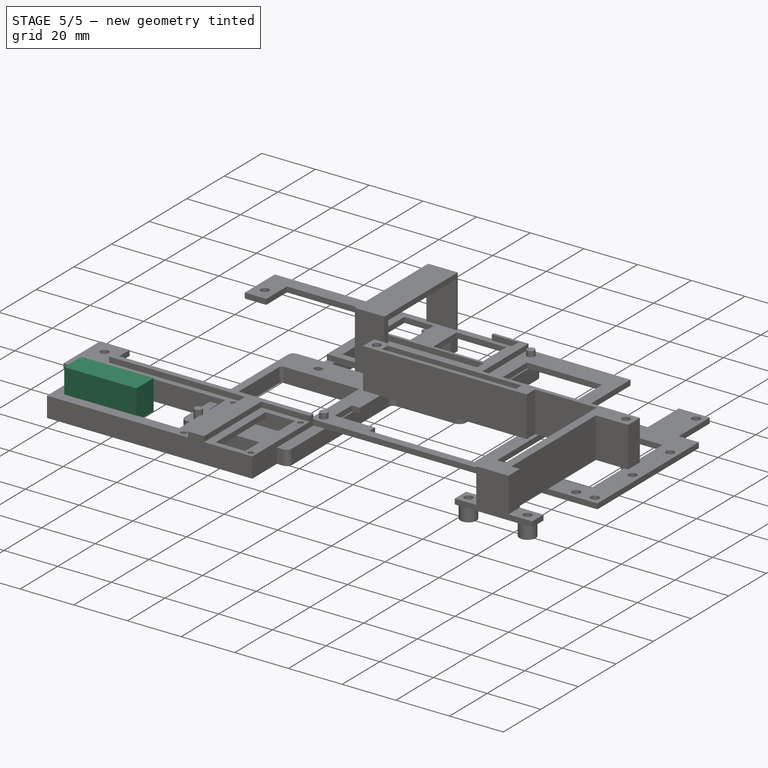
[diagram: stage 5 of 5 — iso view after this stage's code; geometry added in this stage tinted green]
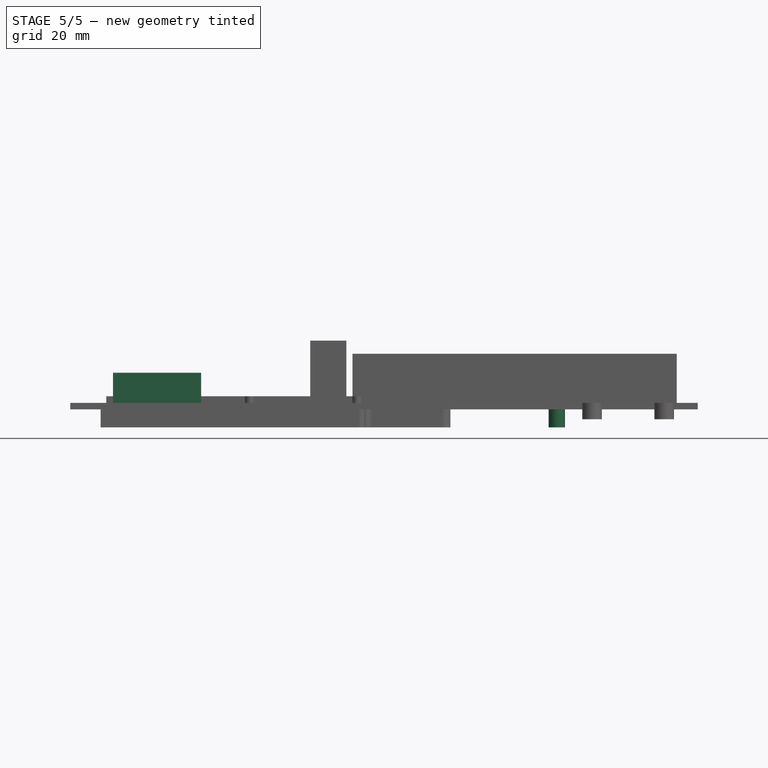
[diagram: stage 5 of 5 — front view after this stage's code; geometry added in this stage tinted green]
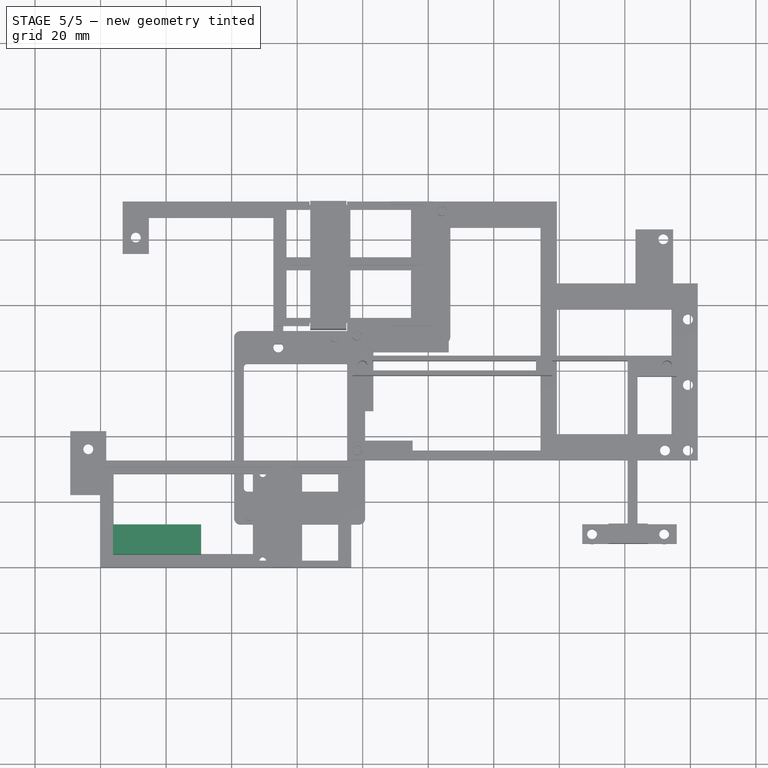
[diagram: stage 5 of 5 — top view after this stage's code; geometry added in this stage tinted green]
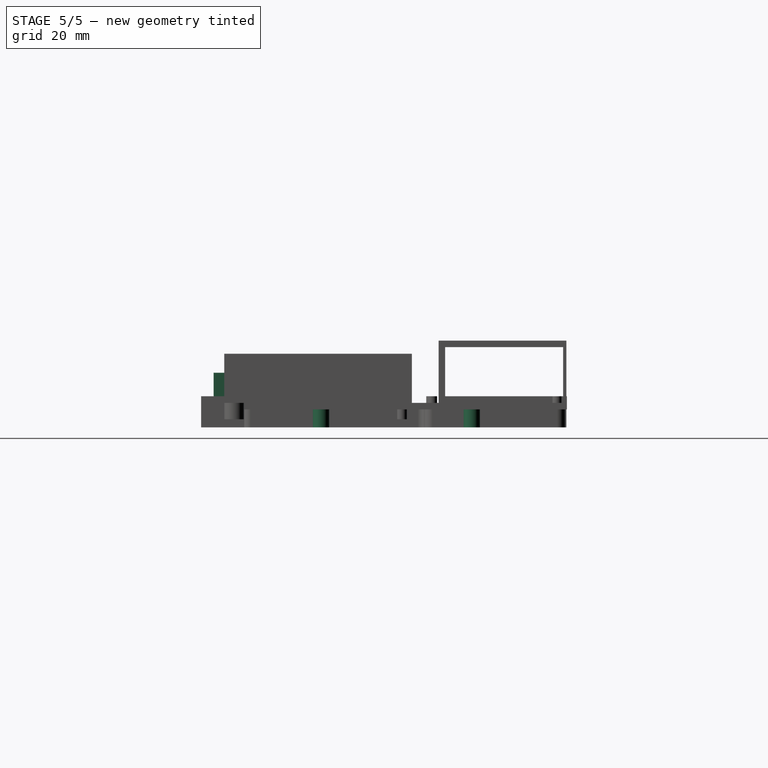
[diagram: stage 5 of 5 — right view after this stage's code; geometry added in this stage tinted green]
FEATURE [Sketcher::SketchObject] Sketch001
  FullyConstrained = true
  MapMode = 5
  Support = -> [XY_Plane]
  sketch-geometry (8):
    g0: LineSegment StartX=0 StartY=0 StartZ=0 EndX=76.5 EndY=0 EndZ=0
    g1: LineSegment StartX=76.5 StartY=0 StartZ=0 EndX=76.5 EndY=30.5 EndZ=0
    g2: LineSegment StartX=76.5 StartY=30.5 StartZ=0 EndX=0 EndY=30.5 EndZ=0
    g3: LineSegment StartX=0 StartY=30.5 StartZ=0 EndX=0 EndY=15.5 EndZ=0
    g4: LineSegment StartX=0 StartY=15.5 StartZ=0 EndX=12 EndY=15.5 EndZ=0
    g5: LineSegment StartX=12 StartY=15.5 StartZ=0 EndX=12 EndY=7.5 EndZ=0
    g6: LineSegment StartX=12 StartY=7.5 StartZ=0 EndX=0 EndY=7.5 EndZ=0
    g7: LineSegment StartX=0 StartY=7.5 StartZ=0 EndX=0 EndY=0 EndZ=0
  constraints (23):
    c: Vertical(g5)
    c: Vertical(g3)
    c: Vertical(g7)
    c: Vertical(g1)
    c: Horizontal(g2)
    c: Horizontal(g4)
    c: Horizontal(g6)
    c: Horizontal(g0)
    c: Coincident(g0,g7)
    c: Coincident(g7,g6)
    c: Coincident(g6,g5)
    c: Coincident(g4,g5)
    c: Coincident(g4,g3)
    c: Coincident(g2,g3)
    c: Coincident(g2,g1)
    c: Coincident(g0,g1)
    c: Coincident(g0,g-1)
    c: Vertical(g3,g0)
    c: DistanceY(g5,g5) = 8
    c: DistanceY(g0,g4) = 15.5
    c: DistanceX(g4,g4) = 12
    c: DistanceY(g1,g1) = 30.5
    c: DistanceX(g2,g2) = 76.5
FEATURE [Sketcher::SketchObject] Sketch002
  FullyConstrained = true
  MapMode = 5
  Support = -> [XY_Plane]
  sketch-geometry (8):
    g0: LineSegment StartX=0 StartY=0 StartZ=0 EndX=76.5 EndY=0 EndZ=0
    g1: LineSegment StartX=76.5 StartY=0 StartZ=0 EndX=76.5 EndY=32.5 EndZ=0
    g2: LineSegment StartX=76.5 StartY=32.5 StartZ=0 EndX=0 EndY=32.5 EndZ=0
    g3: LineSegment StartX=0 StartY=32.5 StartZ=0 EndX=0 EndY=15.5 EndZ=0
    g4: LineSegment StartX=0 StartY=15.5 StartZ=0 EndX=12 EndY=15.5 EndZ=0
    g5: LineSegment StartX=12 StartY=15.5 StartZ=0 EndX=12 EndY=7.5 EndZ=0
    g6: LineSegment StartX=12 StartY=7.5 StartZ=0 EndX=0 EndY=7.5 EndZ=0
    g7: LineSegment StartX=0 StartY=7.5 StartZ=0 EndX=0 EndY=0 EndZ=0
  constraints (23):
    c: Vertical(g5)
    c: Vertical(g3)
    c: Vertical(g7)
    c: Vertical(g1)
    c: Horizontal(g2)
    c: Horizontal(g4)
    c: Horizontal(g6)
    c: Horizontal(g0)
    c: Coincident(g0,g7)
    c: Coincident(g7,g6)
    c: Coincident(g6,g5)
    c: Coincident(g4,g5)
    c: Coincident(g4,g3)
    c: Coincident(g2,g3)
    c: Coincident(g2,g1)
    c: Coincident(g0,g1)
    c: Coincident(g0,g-1)
    c: Vertical(g3,g0)
    c: DistanceY(g5,g5) = 8
    c: DistanceY(g0,g4) = 15.5
    c: DistanceX(g4,g4) = 12
    c: DistanceY(g1,g1) = 32.5
    c: DistanceX(g2,g2) = 76.5
FEATURE [Sketcher::SketchObject] Sketch003
  FullyConstrained = true
  MapMode = 5
  Support = -> [XY_Plane]
  sketch-geometry (12):
    g0: LineSegment StartX=0 StartY=0 StartZ=0 EndX=76.5 EndY=0 EndZ=0
    g1: LineSegment StartX=76.5 StartY=0 StartZ=0 EndX=76.5 EndY=32.5 EndZ=0
    g2: LineSegment StartX=76.5 StartY=32.5 StartZ=0 EndX=0 EndY=32.5 EndZ=0
    g3: LineSegment StartX=0 StartY=32.5 StartZ=0 EndX=0 EndY=15.5 EndZ=0
    g4: LineSegment StartX=0 StartY=15.5 StartZ=0 EndX=12 EndY=15.5 EndZ=0
    g5: LineSegment StartX=12 StartY=15.5 StartZ=0 EndX=12 EndY=7.5 EndZ=0
    g6: LineSegment StartX=12 StartY=7.5 StartZ=0 EndX=0 EndY=7.5 EndZ=0
    g7: LineSegment StartX=0 StartY=7.5 StartZ=0 EndX=0 EndY=0 EndZ=0
    g8: Circle CenterX=3.5 CenterY=3.5 CenterZ=0 NormalX=0 NormalY=0 NormalZ=1 AngleXU=0 Radius=1.5
    g9: Circle CenterX=3.5 CenterY=29 CenterZ=0 NormalX=0 NormalY=0 NormalZ=1 AngleXU=0 Radius=1.5
    g10: Circle CenterX=73 CenterY=29 CenterZ=0 NormalX=0 NormalY=0 NormalZ=1 AngleXU=0 Radius=1.5
    g11: Circle CenterX=73 CenterY=3.5 CenterZ=0 NormalX=0 NormalY=0 NormalZ=1 AngleXU=0 Radius=1.5
  constraints (35):
    c: Vertical(g5)
    c: Vertical(g3)
    c: Vertical(g7)
    c: Vertical(g1)
    c: Horizontal(g2)
    c: Horizontal(g4)
    c: Horizontal(g6)
    c: Horizontal(g0)
    c: Coincident(g0,g7)
    c: Coincident(g7,g6)
    c: Coincident(g6,g5)
    c: Coincident(g4,g5)
    c: Coincident(g4,g3)
    c: Coincident(g2,g3)
    c: Coincident(g2,g1)
    c: Coincident(g0,g1)
    c: Coincident(g0,g-1)
    c: Vertical(g3,g0)
    c: DistanceY(g5,g5) = 8
    c: DistanceY(g0,g4) = 15.5
    c: DistanceX(g4,g4) = 12
    c: DistanceY(g1,g1) = 32.5
    c: DistanceX(g2,g2) = 76.5
    c: Equal(g8,g9)
    c: Equal(g9,g10)
    c: Equal(g10,g11)
    c: Diameter(g8) = 3
    c: DistanceX(g0,g8) = 3.5
    c: DistanceY(g0,g8) = 3.5
    c: Horizontal(g11,g8)
    c: Vertical(g9,g8)
    c: Vertical(g11,g10)
    c: Horizontal(g9,g10)
    c: DistanceX(g0,g11) = 73
    c: DistanceY(g0,g9) = 29
FEATURE [Sketcher::SketchObject] Sketch004
  FullyConstrained = true
  MapMode = 5
  Support = -> [XY_Plane]
  sketch-geometry (12):
    g0: LineSegment StartX=0 StartY=0 StartZ=0 EndX=76.5 EndY=0 EndZ=0
    g1: LineSegment StartX=76.5 StartY=0 StartZ=0 EndX=76.5 EndY=32.5 EndZ=0
    g2: LineSegment StartX=76.5 StartY=32.5 StartZ=0 EndX=0 EndY=32.5 EndZ=0
    g3: LineSegment StartX=0 StartY=32.5 StartZ=0 EndX=0 EndY=15.5 EndZ=0
    g4: LineSegment StartX=0 StartY=15.5 StartZ=0 EndX=12 EndY=15.5 EndZ=0
    g5: LineSegment StartX=12 StartY=15.5 StartZ=0 EndX=12 EndY=7.5 EndZ=0
    g6: LineSegment StartX=12 StartY=7.5 StartZ=0 EndX=0 EndY=7.5 EndZ=0
    g7: LineSegment StartX=0 StartY=7.5 StartZ=0 EndX=0 EndY=0 EndZ=0
    g8: Circle CenterX=3.5 CenterY=3.5 CenterZ=0 NormalX=0 NormalY=0 NormalZ=1 AngleXU=0 Radius=2.5
    g9: Circle CenterX=3.5 CenterY=29 CenterZ=0 NormalX=0 NormalY=0 NormalZ=1 AngleXU=0 Radius=2.5
    g10: Circle CenterX=73 CenterY=29 CenterZ=0 NormalX=0 NormalY=0 NormalZ=1 AngleXU=0 Radius=2.5
    g11: Circle CenterX=73 CenterY=3.5 CenterZ=0 NormalX=0 NormalY=0 NormalZ=1 AngleXU=0 Radius=2.5
  constraints (35):
    c: Vertical(g5)
    c: Vertical(g3)
    c: Vertical(g7)
    c: Vertical(g1)
    c: Horizontal(g2)
    c: Horizontal(g4)
    c: Horizontal(g6)
    c: Horizontal(g0)
    c: Coincident(g0,g7)
    c: Coincident(g7,g6)
    c: Coincident(g6,g5)
    c: Coincident(g4,g5)
    c: Coincident(g4,g3)
    c: Coincident(g2,g3)
    c: Coincident(g2,g1)
    c: Coincident(g0,g1)
    c: Coincident(g0,g-1)
    c: Vertical(g3,g0)
    c: DistanceY(g5,g5) = 8
    c: DistanceY(g0,g4) = 15.5
    c: DistanceX(g4,g4) = 12
    c: DistanceY(g1,g1) = 32.5
    c: DistanceX(g2,g2) = 76.5
    c: Equal(g8,g9)
    c: Equal(g9,g10)
    c: Equal(g10,g11)
    c: Diameter(g8) = 5
    c: DistanceX(g0,g8) = 3.5
    c: DistanceY(g0,g8) = 3.5
    c: Horizontal(g11,g8)
    c: Vertical(g9,g8)
    c: Vertical(g11,g10)
    c: Horizontal(g9,g10)
    c: DistanceX(g0,g11) = 73
    c: DistanceY(g0,g9) = 29
FEATURE [Sketcher::SketchObject] Sketch005
  FullyConstrained = true
  MapMode = 5
  Support = -> [XY_Plane]
  sketch-geometry (12):
    g0: LineSegment StartX=0 StartY=0 StartZ=0 EndX=76.5 EndY=0 EndZ=0
    g1: LineSegment StartX=76.5 StartY=0 StartZ=0 EndX=76.5 EndY=32.5 EndZ=0
    g2: LineSegment StartX=76.5 StartY=32.5 StartZ=0 EndX=0 EndY=32.5 EndZ=0
    g3: LineSegment StartX=0 StartY=32.5 StartZ=0 EndX=0 EndY=15.5 EndZ=0
    g4: LineSegment StartX=0 StartY=15.5 StartZ=0 EndX=12 EndY=15.5 EndZ=0
    g5: LineSegment StartX=12 StartY=15.5 StartZ=0 EndX=12 EndY=7.5 EndZ=0
    g6: LineSegment StartX=12 StartY=7.5 StartZ=0 EndX=0 EndY=7.5 EndZ=0
    g7: LineSegment StartX=0 StartY=7.5 StartZ=0 EndX=0 EndY=0 EndZ=0
    g8: Circle CenterX=3.5 CenterY=3.5 CenterZ=0 NormalX=0 NormalY=0 NormalZ=1 AngleXU=0 Radius=1.475
    g9: Circle CenterX=3.5 CenterY=29 CenterZ=0 NormalX=0 NormalY=0 NormalZ=1 AngleXU=0 Radius=1.475
    g10: Circle CenterX=73 CenterY=29 CenterZ=0 NormalX=0 NormalY=0 NormalZ=1 AngleXU=0 Radius=1.475
    g11: Circle CenterX=73 CenterY=3.5 CenterZ=0 NormalX=0 NormalY=0 NormalZ=1 AngleXU=0 Radius=1.475
  constraints (35):
    c: Vertical(g5)
    c: Vertical(g3)
    c: Vertical(g7)
    c: Vertical(g1)
    c: Horizontal(g2)
    c: Horizontal(g4)
    c: Horizontal(g6)
    c: Horizontal(g0)
    c: Coincident(g0,g7)
    c: Coincident(g7,g6)
    c: Coincident(g6,g5)
    c: Coincident(g4,g5)
    c: Coincident(g4,g3)
    c: Coincident(g2,g3)
    c: Coincident(g2,g1)
    c: Coincident(g0,g1)
    c: Coincident(g0,g-1)
    c: Vertical(g3,g0)
    c: DistanceY(g5,g5) = 8
    c: DistanceY(g0,g4) = 15.5
    c: DistanceX(g4,g4) = 12
    c: DistanceY(g1,g1) = 32.5
    c: DistanceX(g2,g2) = 76.5
    c: Equal(g8,g9)
    c: Equal(g9,g10)
    c: Equal(g10,g11)
    c: Diameter(g8) = 2.95
    c: DistanceX(g0,g8) = 3.5
    c: DistanceY(g0,g8) = 3.5
    c: Horizontal(g11,g8)
    c: Vertical(g9,g8)
    c: Vertical(g11,g10)
    c: Horizontal(g9,g10)
    c: DistanceX(g0,g11) = 73
    c: DistanceY(g0,g9) = 29
FEATURE [Sketcher::SketchObject] Sketch006
  FullyConstrained = true
  MapMode = 5
  Support = -> [XY_Plane]
  sketch-geometry (17):
    g0: LineSegment StartX=0 StartY=0 StartZ=0 EndX=76.5 EndY=0 EndZ=0
    g1: LineSegment StartX=76.5 StartY=0 StartZ=0 EndX=76.5 EndY=30.5 EndZ=0
    g2: LineSegment StartX=76.5 StartY=30.5 StartZ=0 EndX=0 EndY=30.5 EndZ=0
    g3: LineSegment StartX=0 StartY=30.5 StartZ=0 EndX=0 EndY=15.5 EndZ=0
    g4: LineSegment StartX=0 StartY=15.5 StartZ=0 EndX=12 EndY=15.5 EndZ=0
    g5: LineSegment StartX=12 StartY=15.5 StartZ=0 EndX=12 EndY=7.5 EndZ=0
    g6: LineSegment StartX=12 StartY=7.5 StartZ=0 EndX=0 EndY=7.5 EndZ=0
    g7: LineSegment StartX=0 StartY=7.5 StartZ=0 EndX=0 EndY=0 EndZ=0
    g8: LineSegment StartX=41.5 StartY=30.5 StartZ=0 EndX=61.5 EndY=30.5 EndZ=0
    g9: LineSegment StartX=61.5 StartY=30.5 StartZ=0 EndX=61.5 EndY=0 EndZ=0
    g10: LineSegment StartX=61.5 StartY=0 StartZ=0 EndX=41.5 EndY=0 EndZ=0
    g11: LineSegment StartX=41.5 StartY=0 StartZ=0 EndX=41.5 EndY=30.5 EndZ=0
    g12: LineSegment StartX=52.5 StartY=30.5 StartZ=0 EndX=58.5 EndY=30.5 EndZ=0
    g13: LineSegment StartX=58.5 StartY=30.5 StartZ=0 EndX=58.5 EndY=0 EndZ=0
    g14: LineSegment StartX=58.5 StartY=0 StartZ=0 EndX=52.5 EndY=0 EndZ=0
    g15: LineSegment StartX=52.5 StartY=0 StartZ=0 EndX=52.5 EndY=30.5 EndZ=0
    g16: Circle CenterX=50.5 CenterY=28.5 CenterZ=0 NormalX=0 NormalY=0 NormalZ=1 AngleXU=0 Radius=1
  constraints (50):
    c: Vertical(g5)
    c: Vertical(g3)
    c: Vertical(g7)
    c: Vertical(g1)
    c: Horizontal(g2)
    c: Horizontal(g4)
    c: Horizontal(g6)
    c: Horizontal(g0)
    c: Coincident(g0,g7)
    c: Coincident(g7,g6)
    c: Coincident(g6,g5)
    c: Coincident(g4,g5)
    c: Coincident(g4,g3)
    c: Coincident(g2,g3)
    c: Coincident(g2,g1)
    c: Coincident(g0,g1)
    c: Coincident(g0,g-1)
    c: Vertical(g3,g0)
    c: DistanceY(g5,g5) = 8
    c: DistanceY(g0,g4) = 15.5
    c: DistanceX(g4,g4) = 12
    c: DistanceY(g1,g1) = 30.5
    c: DistanceX(g2,g2) = 76.5
    c: Coincident(g8,g9)
    c: Coincident(g9,g10)
    c: Coincident(g10,g11)
    c: Coincident(g11,g8)
    c: Horizontal(g8)
    c: Horizontal(g10)
    c: Vertical(g9)
    c: Vertical(g11)
    c: Horizontal(g9,g0)
    c: Horizontal(g8,g2)
    c: DistanceX(g8,g8) = 20
    c: DistanceX(g0,g8) = 61.5
    c: Coincident(g12,g13)
    c: Coincident(g13,g14)
    c: Coincident(g14,g15)
    c: Coincident(g15,g12)
    c: Horizontal(g12)
    c: Horizontal(g14)
    c: Vertical(g13)
    c: Vertical(g15)
    c: DistanceX(g12,g12) = 6
    c: Horizontal(g12,g2)
    c: Horizontal(g13,g10)
    c: DistanceX(g12,g8) = 3
    c: Diameter(g16) = 2
    c: DistanceX(g16,g12) = 2
    c: DistanceY(g16,g12) = 2
FEATURE [Sketcher::SketchObject] Sketch007
  FullyConstrained = true
  MapMode = 5
  Support = -> [XY_Plane]
  sketch-geometry (16):
    g0: LineSegment StartX=0 StartY=0 StartZ=0 EndX=76.5 EndY=0 EndZ=0
    g1: LineSegment StartX=76.5 StartY=0 StartZ=0 EndX=76.5 EndY=30.5 EndZ=0
    g2: LineSegment StartX=76.5 StartY=30.5 StartZ=0 EndX=0 EndY=30.5 EndZ=0
    g3: LineSegment StartX=0 StartY=30.5 StartZ=0 EndX=0 EndY=15.5 EndZ=0
    g4: LineSegment StartX=0 StartY=15.5 StartZ=0 EndX=12 EndY=15.5 EndZ=0
    g5: LineSegment StartX=12 StartY=15.5 StartZ=0 EndX=12 EndY=7.5 EndZ=0
    g6: LineSegment StartX=12 StartY=7.5 StartZ=0 EndX=0 EndY=7.5 EndZ=0
    g7: LineSegment StartX=0 StartY=7.5 StartZ=0 EndX=0 EndY=0 EndZ=0
    g8: LineSegment StartX=41.5 StartY=30.5 StartZ=0 EndX=61.5 EndY=30.5 EndZ=0
    g9: LineSegment StartX=61.5 StartY=30.5 StartZ=0 EndX=61.5 EndY=0 EndZ=0
    g10: LineSegment StartX=61.5 StartY=0 StartZ=0 EndX=41.5 EndY=0 EndZ=0
    g11: LineSegment StartX=41.5 StartY=0 StartZ=0 EndX=41.5 EndY=30.5 EndZ=0
    g12: LineSegment StartX=52.5 StartY=30.5 StartZ=0 EndX=58.5 EndY=30.5 EndZ=0
    g13: LineSegment StartX=58.5 StartY=30.5 StartZ=0 EndX=58.5 EndY=0 EndZ=0
    g14: LineSegment StartX=58.5 StartY=0 StartZ=0 EndX=52.5 EndY=0 EndZ=0
    g15: LineSegment StartX=52.5 StartY=0 StartZ=0 EndX=52.5 EndY=30.5 EndZ=0
  constraints (47):
    c: Vertical(g5)
    c: Vertical(g3)
    c: Vertical(g7)
    c: Vertical(g1)
    c: Horizontal(g2)
    c: Horizontal(g4)
    c: Horizontal(g6)
    c: Horizontal(g0)
    c: Coincident(g0,g7)
    c: Coincident(g7,g6)
    c: Coincident(g6,g5)
    c: Coincident(g4,g5)
    c: Coincident(g4,g3)
    c: Coincident(g2,g3)
    c: Coincident(g2,g1)
    c: Coincident(g0,g1)
    c: Coincident(g0,g-1)
    c: Vertical(g3,g0)
    c: DistanceY(g5,g5) = 8
    c: DistanceY(g0,g4) = 15.5
    c: DistanceX(g4,g4) = 12
    c: DistanceY(g1,g1) = 30.5
    c: DistanceX(g2,g2) = 76.5
    c: Coincident(g8,g9)
    c: Coincident(g9,g10)
    c: Coincident(g10,g11)
    c: Coincident(g11,g8)
    c: Horizontal(g8)
    c: Horizontal(g10)
    c: Vertical(g9)
    c: Vertical(g11)
    c: Horizontal(g9,g0)
    c: Horizontal(g8,g2)
    c: DistanceX(g8,g8) = 20
    c: DistanceX(g0,g8) = 61.5
    c: Coincident(g12,g13)
    c: Coincident(g13,g14)
    c: Coincident(g14,g15)
    c: Coincident(g15,g12)
    c: Horizontal(g12)
    c: Horizontal(g14)
    c: Vertical(g13)
    c: Vertical(g15)
    c: DistanceX(g12,g12) = 6
    c: Horizontal(g12,g2)
    c: Horizontal(g13,g10)
    c: DistanceX(g12,g8) = 3
FEATURE [Sketcher::SketchObject] Sketch008
  FullyConstrained = true
  MapMode = 5
  Support = -> [XY_Plane]
  sketch-geometry (12):
    g0: LineSegment StartX=0 StartY=0 StartZ=0 EndX=76.5 EndY=0 EndZ=0
    g1: LineSegment StartX=76.5 StartY=0 StartZ=0 EndX=76.5 EndY=32.5 EndZ=0
    g2: LineSegment StartX=76.5 StartY=32.5 StartZ=0 EndX=0 EndY=32.5 EndZ=0
    g3: LineSegment StartX=0 StartY=32.5 StartZ=0 EndX=0 EndY=15.5 EndZ=0
    g4: LineSegment StartX=0 StartY=15.5 StartZ=0 EndX=12 EndY=15.5 EndZ=0
    g5: LineSegment StartX=12 StartY=15.5 StartZ=0 EndX=12 EndY=7.5 EndZ=0
    g6: LineSegment StartX=12 StartY=7.5 StartZ=0 EndX=0 EndY=7.5 EndZ=0
    g7: LineSegment StartX=0 StartY=7.5 StartZ=0 EndX=0 EndY=0 EndZ=0
    g8: LineSegment StartX=5 StartY=11.7 StartZ=0 EndX=29.5 EndY=11.7 EndZ=0
    g9: LineSegment StartX=29.5 StartY=11.7 StartZ=0 EndX=29.5 EndY=5 EndZ=0
    g10: LineSegment StartX=29.5 StartY=5 StartZ=0 EndX=5 EndY=5 EndZ=0
    g11: LineSegment StartX=5 StartY=5 StartZ=0 EndX=5 EndY=11.7 EndZ=0
  constraints (35):
    c: Vertical(g5)
    c: Vertical(g3)
    c: Vertical(g7)
    c: Vertical(g1)
    c: Horizontal(g2)
    c: Horizontal(g4)
    c: Horizontal(g6)
    c: Horizontal(g0)
    c: Coincident(g0,g7)
    c: Coincident(g7,g6)
    c: Coincident(g6,g5)
    c: Coincident(g4,g5)
    c: Coincident(g4,g3)
    c: Coincident(g2,g3)
    c: Coincident(g2,g1)
    c: Coincident(g0,g1)
    c: Coincident(g0,g-1)
    c: Vertical(g3,g0)
    c: DistanceY(g5,g5) = 8
    c: DistanceY(g0,g4) = 15.5
    c: DistanceX(g4,g4) = 12
    c: DistanceY(g1,g1) = 32.5
    c: DistanceX(g2,g2) = 76.5
    c: Coincident(g8,g9)
    c: Coincident(g9,g10)
    c: Coincident(g10,g11)
    c: Coincident(g11,g8)
    c: Horizontal(g8)
    c: Horizontal(g10)
    c: Vertical(g9)
    c: Vertical(g11)
    c: DistanceY(g9,g9) = 6.7
    c: DistanceX(g8,g8) = 24.5
    c: DistanceY(g0,g10) = 5
    c: DistanceX(g0,g10) = 5
FEATURE [Sketcher::SketchObject] Sketch009
  FullyConstrained = true
  MapMode = 5
  Support = -> [XY_Plane]
  sketch-geometry (12):
    g0: LineSegment StartX=0 StartY=0 StartZ=0 EndX=76.5 EndY=0 EndZ=0
    g1: LineSegment StartX=76.5 StartY=0 StartZ=0 EndX=76.5 EndY=32.5 EndZ=0
    g2: LineSegment StartX=76.5 StartY=32.5 StartZ=0 EndX=0 EndY=32.5 EndZ=0
    g3: LineSegment StartX=0 StartY=32.5 StartZ=0 EndX=0 EndY=15.5 EndZ=0
    g4: LineSegment StartX=0 StartY=15.5 StartZ=0 EndX=12 EndY=15.5 EndZ=0
    g5: LineSegment StartX=12 StartY=15.5 StartZ=0 EndX=12 EndY=7.5 EndZ=0
    g6: LineSegment StartX=12 StartY=7.5 StartZ=0 EndX=0 EndY=7.5 EndZ=0
    g7: LineSegment StartX=0 StartY=7.5 StartZ=0 EndX=0 EndY=0 EndZ=0
    g8: LineSegment StartX=3.8 StartY=12.9 StartZ=0 EndX=30.7 EndY=12.9 EndZ=0
    g9: LineSegment StartX=30.7 StartY=12.9 StartZ=0 EndX=30.7 EndY=3.8 EndZ=0
    g10: LineSegment StartX=30.7 StartY=3.8 StartZ=0 EndX=3.8 EndY=3.8 EndZ=0
    g11: LineSegment StartX=3.8 StartY=3.8 StartZ=0 EndX=3.8 EndY=12.9 EndZ=0
  constraints (35):
    c: Vertical(g5)
    c: Vertical(g3)
    c: Vertical(g7)
    c: Vertical(g1)
    c: Horizontal(g2)
    c: Horizontal(g4)
    c: Horizontal(g6)
    c: Horizontal(g0)
    c: Coincident(g0,g7)
    c: Coincident(g7,g6)
    c: Coincident(g6,g5)
    c: Coincident(g4,g5)
    c: Coincident(g4,g3)
    c: Coincident(g2,g3)
    c: Coincident(g2,g1)
    c: Coincident(g0,g1)
    c: Coincident(g0,g-1)
    c: Vertical(g3,g0)
    c: DistanceY(g5,g5) = 8
    c: DistanceY(g0,g4) = 15.5
    c: DistanceX(g4,g4) = 12
    c: DistanceY(g1,g1) = 32.5
    c: DistanceX(g2,g2) = 76.5
    c: Coincident(g8,g9)
    c: Coincident(g9,g10)
    c: Coincident(g10,g11)
    c: Coincident(g11,g8)
    c: Horizontal(g8)
    c: Horizontal(g10)
    c: Vertical(g9)
    c: Vertical(g11)
    c: DistanceY(g9,g9) = 9.1
    c: DistanceX(g8,g8) = 26.9
    c: DistanceY(g0,g10) = 3.8
    c: DistanceX(g0,g10) = 3.8
FEATURE [Part::Extrusion] Extrude008
  Base = -> Sketch009
  Dir = (0,0,1)
  DirMode = 2
  FaceMakerClass = Part::FaceMakerBullseye
  LengthFwd = 11.2
  LengthRev = 0
  Solid = true
  Symmetric = false
FEATURE [Part::Extrusion] Extrude009
  Base = -> Sketch008
  Dir = (0,0,1)
  DirMode = 2
  FaceMakerClass = Part::FaceMakerBullseye
  LengthFwd = 10
  LengthRev = 0
  Solid = true
  Symmetric = false
FEATURE [Part::Cut] Cut002  label="Cut002.old"
  Base = -> Extrude008
  Tool = -> Extrude009
FEATURE [Sketcher::SketchObject] Sketch010
  FullyConstrained = false
  MapMode = 5
  Support = -> [XY_Plane]
  sketch-geometry (42):
    g0: LineSegment StartX=0 StartY=0 StartZ=0 EndX=76.5 EndY=0 EndZ=0
    g1: LineSegment StartX=76.5 StartY=0 StartZ=0 EndX=76.5 EndY=32.5 EndZ=0
    g2: LineSegment StartX=76.5 StartY=32.5 StartZ=0 EndX=0 EndY=32.5 EndZ=0
    g3: LineSegment StartX=0 StartY=32.5 StartZ=0 EndX=0 EndY=15.5 EndZ=0
    g4: LineSegment StartX=0 StartY=15.5 StartZ=0 EndX=12 EndY=15.5 EndZ=0
    g5: LineSegment StartX=12 StartY=15.5 StartZ=0 EndX=12 EndY=7.5 EndZ=0
    g6: LineSegment StartX=12 StartY=7.5 StartZ=0 EndX=0 EndY=7.5 EndZ=0
    g7: LineSegment StartX=0 StartY=7.5 StartZ=0 EndX=0 EndY=0 EndZ=0
    g8: LineSegment StartX=183.25 StartY=18 StartZ=0 EndX=183.25 EndY=94 EndZ=0
    g9: LineSegment StartX=183.25 StartY=94 StartZ=0 EndX=174 EndY=94 EndZ=0
    g10: LineSegment StartX=174 StartY=94 StartZ=0 EndX=174 EndY=112 EndZ=0
    g11: LineSegment StartX=174 StartY=112 StartZ=0 EndX=0 EndY=112 EndZ=0
    g12: LineSegment StartX=0 StartY=112 StartZ=0 EndX=0 EndY=94 EndZ=0
    g13: LineSegment StartX=0 StartY=94 StartZ=0 EndX=-9.25 EndY=94 EndZ=0
    g14: LineSegment StartX=-9.25 StartY=94 StartZ=0 EndX=-9.25 EndY=18 EndZ=0
    g15: LineSegment StartX=-9.25 StartY=18 StartZ=0 EndX=0 EndY=18 EndZ=0
    g16: LineSegment StartX=0 StartY=18 StartZ=0 EndX=0 EndY=0 EndZ=0
    g17: LineSegment StartX=0 StartY=0 StartZ=0 EndX=174 EndY=0 EndZ=0
    g18: LineSegment StartX=174 StartY=0 StartZ=0 EndX=174 EndY=18 EndZ=0
    g19: LineSegment StartX=174 StartY=18 StartZ=0 EndX=183.25 EndY=18 EndZ=0
    g20: LineSegment StartX=137.432 StartY=97.5912 StartZ=0 EndX=109.432 EndY=97.5912 EndZ=0
    g21: LineSegment StartX=109.432 StartY=97.5912 StartZ=0 EndX=109.432 EndY=60.5912 EndZ=0
    g22: LineSegment StartX=109.432 StartY=60.5912 StartZ=0 EndX=86.4324 EndY=60.5912 EndZ=0
    g23: LineSegment StartX=83.4324 StartY=41.5912 StartZ=0 EndX=83.4324 EndY=29.5912 EndZ=0
    g24: LineSegment StartX=83.4324 StartY=29.5912 StartZ=0 EndX=137.432 EndY=29.5912 EndZ=0
    g25: LineSegment StartX=104.432 StartY=105.591 StartZ=0 EndX=104.432 EndY=68.5912 EndZ=0
    g26: LineSegment StartX=104.432 StartY=68.5912 StartZ=0 EndX=78.4324 EndY=68.5912 EndZ=0
    g27: LineSegment StartX=78.4324 StartY=68.5912 StartZ=0 EndX=78.4324 EndY=26.5912 EndZ=0
    g28: LineSegment StartX=78.4324 StartY=26.5912 StartZ=0 EndX=178.432 EndY=26.5912 EndZ=0
    g29: LineSegment StartX=178.432 StartY=26.5912 StartZ=0 EndX=178.432 EndY=80.5912 EndZ=0
    g30: LineSegment StartX=137.432 StartY=97.5912 StartZ=0 EndX=137.432 EndY=29.5912 EndZ=0
    g31: LineSegment StartX=142.432 StartY=105.591 StartZ=0 EndX=142.432 EndY=80.5912 EndZ=0
    g32: LineSegment StartX=142.432 StartY=80.5912 StartZ=0 EndX=178.432 EndY=80.5912 EndZ=0
    g33: LineSegment StartX=104.432 StartY=105.591 StartZ=0 EndX=142.432 EndY=105.591 EndZ=0
    g34: LineSegment StartX=142.432 StartY=72.5912 StartZ=0 EndX=170.432 EndY=72.5912 EndZ=0
    g35: LineSegment StartX=170.432 StartY=72.5912 StartZ=0 EndX=170.432 EndY=34.5912 EndZ=0
    g36: LineSegment StartX=170.432 StartY=34.5912 StartZ=0 EndX=142.432 EndY=34.5912 EndZ=0
    g37: LineSegment StartX=142.432 StartY=34.5912 StartZ=0 EndX=142.432 EndY=72.5912 EndZ=0
    g38: LineSegment StartX=83.4324 StartY=41.5912 StartZ=0 EndX=86.4324 EndY=41.5912 EndZ=0
    g39: LineSegment StartX=86.4324 StartY=41.5912 StartZ=0 EndX=86.4324 EndY=60.5912 EndZ=0
    g40: Circle CenterX=175.432 CenterY=29.5912 CenterZ=0 NormalX=0 NormalY=0 NormalZ=1 AngleXU=0 Radius=1.5
    g41: Circle CenterX=107.432 CenterY=102.591 CenterZ=0 NormalX=0 NormalY=0 NormalZ=1 AngleXU=0 Radius=1.5
  constraints (122):
    c: Vertical(g5)
    c: Vertical(g3)
    c: Vertical(g7)
    c: Vertical(g1)
    c: Horizontal(g2)
    c: Horizontal(g4)
    c: Horizontal(g6)
    c: Horizontal(g0)
    c: Coincident(g0,g7)
    c: Coincident(g7,g6)
    c: Coincident(g6,g5)
    c: Coincident(g4,g5)
    c: Coincident(g4,g3)
    c: Coincident(g2,g3)
    c: Coincident(g2,g1)
    c: Coincident(g0,g1)
    c: Coincident(g0,g-1)
    c: Vertical(g3,g0)
    c: DistanceY(g5,g5) = 8
    c: DistanceY(g0,g4) = 15.5
    c: DistanceX(g4,g4) = 12
    c: DistanceY(g1,g1) = 32.5
    c: DistanceX(g2,g2) = 76.5
    c: Vertical(g8)
    c: Coincident(g8,g9)
    c: Coincident(g9,g10)
    c: Vertical(g10)
    c: Coincident(g10,g11)
    c: Horizontal(g11)
    c: Coincident(g11,g12)
    c: Vertical(g12)
    c: Coincident(g12,g13)
    c: Horizontal(g13)
    c: Coincident(g13,g14)
    c: Vertical(g14)
    c: Coincident(g14,g15)
    c: Horizontal(g15)
    c: Coincident(g15,g16)
    c: Vertical(g16)
    c: Coincident(g16,g17)
    c: Horizontal(g17)
    c: Coincident(g17,g18)
    c: Vertical(g18)
    c: Coincident(g18,g19)
    c: Coincident(g19,g8)
    c: Horizontal(g19)
    c: DistanceY(g16,g11) = 112
    c: Horizontal(g9)
    c: Equal(g12,g10)
    c: Equal(g10,g18)
    c: Equal(g18,g16)
    c: DistanceY(g16,g16) = 18
    c: Coincident(g16,g0)
    c: DistanceX(g14,g8) = 192.5
    c: DistanceX(g17,g17) = 174
    c: Vertical(g12,g0)
    c: Vertical(g9,g17)
    c: DistanceX(g14,g0) = 9.25
    c: Horizontal(g20)
    c: Coincident(g20,g21)
    c: Vertical(g21)
    c: Coincident(g21,g22)
    c: Horizontal(g22)
    c: Vertical(g23)
    c: Coincident(g23,g24)
    c: Horizontal(g24)
    c: Vertical(g25)
    c: Coincident(g25,g26)
    c: Horizontal(g26)
    c: Coincident(g26,g27)
    c: Vertical(g27)
    c: Coincident(g27,g28)
    c: Horizontal(g28)
    c: Vertical(g29)
    c: Coincident(g28,g29)
    c: DistanceX(g25,g29) = 74
    c: DistanceX(g25,g20) = 5
    c: DistanceY(g25,g25) = 37
    c: DistanceY(g21,g25) = 8
    c: DistanceY(g28,g24) = 3
    c: DistanceX(g27,g23) = 5
    c: Vertical(g30)
    c: Vertical(g31)
    c: Coincident(g32,g31)
    c: Horizontal(g32)
    c: Coincident(g33,g25)
    c: Horizontal(g33)
    c: Coincident(g31,g33)
    c: Coincident(g30,g20)
    c: DistanceY(g27,g25) = 79
    c: Coincident(g34,g35)
    c: Coincident(g35,g36)
    c: Coincident(g36,g37)
    c: Coincident(g37,g34)
    c: Horizontal(g34)
    c: Horizontal(g36)
    c: Vertical(g35)
    c: Vertical(g37)
    c: Coincident(g29,g32)
    c: Coincident(g24,g30)
    c: DistanceY(g27,g36) = 8
    c: DistanceX(g20,g31) = 5
    c: DistanceX(g33,g33) = 38
    c: DistanceX(g24,g36) = 5
    c: DistanceX(g28,g28) = 100
    c: DistanceY(g31,g31) = 25
    c: DistanceX(g34,g29) = 8
    c: DistanceY(g27,g23) = 15
    c: Coincident(g23,g38)
    c: Horizontal(g38)
    c: Coincident(g38,g39)
    c: Vertical(g39)
    c: Coincident(g22,g39)
    c: DistanceX(g27,g38) = 8
    c: DistanceY(g20,g31) = 8
    c: DistanceY(g34,g31) = 8
    c: Diameter(g40) = 3
    c: DistanceX(g40,g28) = 3
    c: DistanceY(g28,g40) = 3
    c: Diameter(g41) = 3
    c: DistanceX(g25,g41) = 3
    c: DistanceY(g41,g25) = 3
FEATURE [Sketcher::SketchObject] Sketch011
  FullyConstrained = true
  MapMode = 5
  Support = -> [XY_Plane]
  sketch-geometry (56):
    g0: LineSegment StartX=0 StartY=0 StartZ=0 EndX=76.5 EndY=0 EndZ=0
    g1: LineSegment StartX=76.5 StartY=0 StartZ=0 EndX=76.5 EndY=32.5 EndZ=0
    g2: LineSegment StartX=76.5 StartY=32.5 StartZ=0 EndX=0 EndY=32.5 EndZ=0
    g3: LineSegment StartX=0 StartY=32.5 StartZ=0 EndX=0 EndY=15.5 EndZ=0
    g4: LineSegment StartX=0 StartY=15.5 StartZ=0 EndX=12 EndY=15.5 EndZ=0
    g5: LineSegment StartX=12 StartY=15.5 StartZ=0 EndX=12 EndY=7.5 EndZ=0
    g6: LineSegment StartX=12 StartY=7.5 StartZ=0 EndX=0 EndY=7.5 EndZ=0
    g7: LineSegment StartX=0 StartY=7.5 StartZ=0 EndX=0 EndY=0 EndZ=0
    g8: LineSegment StartX=183.25 StartY=18 StartZ=0 EndX=183.25 EndY=94 EndZ=0
    g9: LineSegment StartX=183.25 StartY=94 StartZ=0 EndX=174 EndY=94 EndZ=0
    g10: LineSegment StartX=174 StartY=94 StartZ=0 EndX=174 EndY=112 EndZ=0
    g11: LineSegment StartX=174 StartY=112 StartZ=0 EndX=0 EndY=112 EndZ=0
    g12: LineSegment StartX=0 StartY=112 StartZ=0 EndX=0 EndY=94 EndZ=0
    g13: LineSegment StartX=0 StartY=94 StartZ=0 EndX=-9.25 EndY=94 EndZ=0
    g14: LineSegment StartX=-9.25 StartY=94 StartZ=0 EndX=-9.25 EndY=18 EndZ=0
    g15: LineSegment StartX=-9.25 StartY=18 StartZ=0 EndX=0 EndY=18 EndZ=0
    g16: LineSegment StartX=0 StartY=18 StartZ=0 EndX=0 EndY=0 EndZ=0
    g17: LineSegment StartX=0 StartY=0 StartZ=0 EndX=174 EndY=0 EndZ=0
    g18: LineSegment StartX=174 StartY=0 StartZ=0 EndX=174 EndY=18 EndZ=0
    g19: LineSegment StartX=174 StartY=18 StartZ=0 EndX=183.25 EndY=18 EndZ=0
    g20: LineSegment StartX=134.25 StartY=103.6 StartZ=0 EndX=106.25 EndY=103.6 EndZ=0
    g21: LineSegment StartX=106.25 StartY=103.6 StartZ=0 EndX=106.25 EndY=65.6 EndZ=0
    g22: LineSegment StartX=106.25 StartY=65.6 StartZ=0 EndX=83.25 EndY=65.6 EndZ=0
    g23: LineSegment StartX=80.25 StartY=47.6 StartZ=0 EndX=80.25 EndY=38.6 EndZ=0
    g24: LineSegment StartX=95.25 StartY=35.6 StartZ=0 EndX=134.25 EndY=35.6 EndZ=0
    g25: LineSegment StartX=101.25 StartY=111.6 StartZ=0 EndX=101.25 EndY=73.6 EndZ=0
    g26: LineSegment StartX=101.25 StartY=73.6 StartZ=0 EndX=75.25 EndY=73.6 EndZ=0
    g27: LineSegment StartX=75.25 StartY=73.6 StartZ=0 EndX=75.25 EndY=32.6 EndZ=0
    g28: LineSegment StartX=75.25 StartY=32.6 StartZ=0 EndX=182.25 EndY=32.6 EndZ=0
    g29: LineSegment StartX=134.25 StartY=103.6 StartZ=0 EndX=134.25 EndY=35.6 EndZ=0
    g30: LineSegment StartX=139.25 StartY=111.6 StartZ=0 EndX=139.25 EndY=86.6 EndZ=0
    g31: LineSegment StartX=101.25 StartY=111.6 StartZ=0 EndX=139.25 EndY=111.6 EndZ=0
    g32: LineSegment StartX=139.25 StartY=78.6 StartZ=0 EndX=174.25 EndY=78.6 EndZ=0
    g33: LineSegment StartX=174.25 StartY=78.6 StartZ=0 EndX=174.25 EndY=40.6 EndZ=0
    g34: LineSegment StartX=174.25 StartY=40.6 StartZ=0 EndX=139.25 EndY=40.6 EndZ=0
    g35: LineSegment StartX=139.25 StartY=40.6 StartZ=0 EndX=139.25 EndY=78.6 EndZ=0
    g36: LineSegment StartX=80.25 StartY=47.6 StartZ=0 EndX=83.25 EndY=47.6 EndZ=0
    g37: LineSegment StartX=83.25 StartY=47.6 StartZ=0 EndX=83.25 EndY=65.6 EndZ=0
    g38: Circle CenterX=172.25 CenterY=35.6 CenterZ=0 NormalX=0 NormalY=0 NormalZ=1 AngleXU=0 Radius=1.5
    g39: Circle CenterX=104.25 CenterY=108.6 CenterZ=0 NormalX=0 NormalY=0 NormalZ=1 AngleXU=0 Radius=1.5
    g40: Circle CenterX=179.25 CenterY=35.6 CenterZ=0 NormalX=0 NormalY=0 NormalZ=1 AngleXU=0 Radius=1.5
    g41: Circle CenterX=179.25 CenterY=55.6 CenterZ=0 NormalX=0 NormalY=0 NormalZ=1 AngleXU=0 Radius=1.5
    g42: Circle CenterX=179.25 CenterY=75.6 CenterZ=0 NormalX=0 NormalY=0 NormalZ=1 AngleXU=0 Radius=1.5
    g43: LineSegment StartX=182.25 StartY=86.6 StartZ=0 EndX=182.25 EndY=32.6 EndZ=0
    g44: LineSegment StartX=80.25 StartY=38.6 StartZ=0 EndX=95.25 EndY=38.6 EndZ=0
    g45: LineSegment StartX=95.25 StartY=38.6 StartZ=0 EndX=95.25 EndY=35.6 EndZ=0
    g46: Circle CenterX=78.25 CenterY=35.6 CenterZ=0 NormalX=0 NormalY=0 NormalZ=1 AngleXU=0 Radius=1.5
    g47: LineSegment StartX=139.25 StartY=86.6 StartZ=0 EndX=163.25 EndY=86.6 EndZ=0
    g48: LineSegment StartX=163.25 StartY=86.6 StartZ=0 EndX=163.25 EndY=103.1 EndZ=0
    g49: LineSegment StartX=163.25 StartY=103.1 StartZ=0 EndX=174.75 EndY=103.1 EndZ=0
    g50: LineSegment StartX=174.75 StartY=103.1 StartZ=0 EndX=174.75 EndY=86.6 EndZ=0
    g51: LineSegment StartX=174.75 StartY=86.6 StartZ=0 EndX=182.25 EndY=86.6 EndZ=0
    g52: Circle CenterX=179.25 CenterY=35.6 CenterZ=0 NormalX=0 NormalY=0 NormalZ=1 AngleXU=0 Radius=2.5
    g53: Circle CenterX=171.75 CenterY=100.1 CenterZ=0 NormalX=0 NormalY=0 NormalZ=1 AngleXU=0 Radius=1.5
    g54: Circle CenterX=171.75 CenterY=100.1 CenterZ=0 NormalX=0 NormalY=0 NormalZ=1 AngleXU=0 Radius=3
    g55: Circle CenterX=78.25 CenterY=70.6 CenterZ=0 NormalX=0 NormalY=0 NormalZ=1 AngleXU=0 Radius=1.5
  constraints (164):
    c: Vertical(g5)
    c: Vertical(g3)
    c: Vertical(g7)
    c: Vertical(g1)
    c: Horizontal(g2)
    c: Horizontal(g4)
    c: Horizontal(g6)
    c: Horizontal(g0)
    c: Coincident(g0,g7)
    c: Coincident(g7,g6)
    c: Coincident(g6,g5)
    c: Coincident(g4,g5)
    c: Coincident(g4,g3)
    c: Coincident(g2,g3)
    c: Coincident(g2,g1)
    c: Coincident(g0,g1)
    c: Coincident(g0,g-1)
    c: Vertical(g3,g0)
    c: DistanceY(g5,g5) = 8
    c: DistanceY(g0,g4) = 15.5
    c: DistanceX(g4,g4) = 12
    c: DistanceY(g1,g1) = 32.5
    c: DistanceX(g2,g2) = 76.5
    c: Vertical(g8)
    c: Coincident(g8,g9)
    c: Coincident(g9,g10)
    c: Vertical(g10)
    c: Coincident(g10,g11)
    c: Horizontal(g11)
    c: Coincident(g11,g12)
    c: Vertical(g12)
    c: Coincident(g12,g13)
    c: Horizontal(g13)
    c: Coincident(g13,g14)
    c: Vertical(g14)
    c: Coincident(g14,g15)
    c: Horizontal(g15)
    c: Coincident(g15,g16)
    c: Vertical(g16)
    c: Coincident(g16,g17)
    c: Horizontal(g17)
    c: Coincident(g17,g18)
    c: Vertical(g18)
    c: Coincident(g18,g19)
    c: Coincident(g19,g8)
    c: Horizontal(g19)
    c: DistanceY(g16,g11) = 112
    c: Horizontal(g9)
    c: Equal(g12,g10)
    c: Equal(g10,g18)
    c: Equal(g18,g16)
    c: DistanceY(g16,g16) = 18
    c: Coincident(g16,g0)
    c: DistanceX(g14,g8) = 192.5
    c: DistanceX(g17,g17) = 174
    c: Vertical(g12,g0)
    c: Vertical(g9,g17)
    c: DistanceX(g14,g0) = 9.25
    c: Horizontal(g20)
    c: Coincident(g20,g21)
    c: Vertical(g21)
    c: Coincident(g21,g22)
    c: Horizontal(g22)
    c: Vertical(g23)
    c: Horizontal(g24)
    c: Vertical(g25)
    c: Coincident(g25,g26)
    c: Horizontal(g26)
    c: Coincident(g26,g27)
    c: Vertical(g27)
    c: Coincident(g27,g28)
    c: Horizontal(g28)
    c: DistanceX(g25,g20) = 5
    c: DistanceY(g21,g25) = 8
    c: DistanceY(g28,g24) = 3
    c: Vertical(g29)
    c: Vertical(g30)
    c: Coincident(g31,g25)
    c: Horizontal(g31)
    c: Coincident(g30,g31)
    c: Coincident(g29,g20)
    c: DistanceY(g27,g25) = 79
    c: Coincident(g32,g33)
    c: Coincident(g33,g34)
    c: Coincident(g34,g35)
    c: Coincident(g35,g32)
    c: Horizontal(g32)
    c: Horizontal(g34)
    c: Vertical(g33)
    c: Vertical(g35)
    c: Coincident(g24,g29)
    c: DistanceY(g27,g34) = 8
    c: DistanceX(g20,g30) = 5
    c: DistanceX(g31,g31) = 38
    c: DistanceX(g24,g34) = 5
    c: DistanceX(g28,g28) = 107
    c: DistanceY(g30,g30) = 25
    c: DistanceX(g32,g43) = 8
    c: DistanceY(g27,g23) = 15
    c: Coincident(g23,g36)
    c: Horizontal(g36)
    c: Coincident(g36,g37)
    c: Vertical(g37)
    c: Coincident(g22,g37)
    c: DistanceX(g27,g36) = 8
    c: DistanceY(g20,g30) = 8
    c: DistanceY(g32,g30) = 8
    c: Diameter(g38) = 3
    c: DistanceY(g28,g38) = 3
    c: Diameter(g39) = 3
    c: DistanceX(g25,g39) = 3
    c: DistanceY(g39,g25) = 3
    c: Horizontal(g38,g40)
    c: Diameter(g40) = 3
    c: Diameter(g41) = 3
    c: Vertical(g41,g40)
    c: DistanceY(g40,g41) = 20
    c: Diameter(g42) = 3
    c: Vertical(g42,g41)
    c: DistanceY(g41,g42) = 20
    c: Vertical(g43)
    c: DistanceX(g26,g26) = 26
    c: Coincident(g43,g28)
    c: DistanceX(g27,g40) = 104
    c: Coincident(g44,g45)
    c: DistanceX(g27,g44) = 20
    c: Vertical(g45)
    c: Horizontal(g44)
    c: DistanceY(g27,g44) = 6
    c: Coincident(g23,g44)
    c: Coincident(g24,g45)
    c: DistanceX(g44,g44) = 15
    c: DistanceX(g43,g8) = 1
    c: DistanceY(g43,g8) = 7.4
    c: Diameter(g46) = 3
    c: DistanceY(g27,g46) = 3
    c: DistanceX(g27,g46) = 3
    c: DistanceX(g46,g38) = 94
    c: DistanceX(g47,g47) = 24
    c: Coincident(g48,g49)
    c: Coincident(g49,g50)
    c: Coincident(g50,g51)
    c: Horizontal(g51)
    c: Coincident(g51,g43)
    c: Vertical(g50)
    c: Vertical(g48)
    c: Horizontal(g49)
    c: Horizontal(g47)
    c: Diameter(g52) = 5
    c: Coincident(g52,g40)
    c: Coincident(g47,g30)
    c: Coincident(g48,g47)
    c: Horizontal(g47,g50)
    c: Diameter(g53) = 3
    c: DistanceX(g53,g40) = 7.5
    c: DistanceY(g42,g53) = 24.5
    c: Diameter(g54) = 6
    c: Coincident(g54,g53)
    c: Tangent(g50,g54)
    c: Tangent(g49,g54)
    c: DistanceY(g27,g27) = 41
    c: Vertical(g55,g46)
    c: Diameter(g55) = 3
    c: DistanceY(g46,g55) = 35
FEATURE [Sketcher::SketchObject] Sketch012
  FullyConstrained = true
  MapMode = 5
  Support = -> [XY_Plane]
  sketch-geometry (52):
    g0: LineSegment StartX=0 StartY=0 StartZ=0 EndX=76.5 EndY=0 EndZ=0
    g1: LineSegment StartX=76.5 StartY=0 StartZ=0 EndX=76.5 EndY=32.5 EndZ=0
    g2: LineSegment StartX=76.5 StartY=32.5 StartZ=0 EndX=0 EndY=32.5 EndZ=0
    g3: LineSegment StartX=0 StartY=32.5 StartZ=0 EndX=0 EndY=15.5 EndZ=0
    g4: LineSegment StartX=0 StartY=15.5 StartZ=0 EndX=12 EndY=15.5 EndZ=0
    g5: LineSegment StartX=12 StartY=15.5 StartZ=0 EndX=12 EndY=7.5 EndZ=0
    g6: LineSegment StartX=12 StartY=7.5 StartZ=0 EndX=0 EndY=7.5 EndZ=0
    g7: LineSegment StartX=0 StartY=7.5 StartZ=0 EndX=0 EndY=0 EndZ=0
    g8: LineSegment StartX=183.25 StartY=18 StartZ=0 EndX=183.25 EndY=94 EndZ=0
    g9: LineSegment StartX=183.25 StartY=94 StartZ=0 EndX=174 EndY=94 EndZ=0
    g10: LineSegment StartX=174 StartY=94 StartZ=0 EndX=174 EndY=112 EndZ=0
    g11: LineSegment StartX=174 StartY=112 StartZ=0 EndX=0 EndY=112 EndZ=0
    g12: LineSegment StartX=0 StartY=112 StartZ=0 EndX=0 EndY=94 EndZ=0
    g13: LineSegment StartX=0 StartY=94 StartZ=0 EndX=-9.25 EndY=94 EndZ=0
    g14: LineSegment StartX=-9.25 StartY=94 StartZ=0 EndX=-9.25 EndY=18 EndZ=0
    g15: LineSegment StartX=-9.25 StartY=18 StartZ=0 EndX=0 EndY=18 EndZ=0
    g16: LineSegment StartX=0 StartY=18 StartZ=0 EndX=0 EndY=0 EndZ=0
    g17: LineSegment StartX=0 StartY=0 StartZ=0 EndX=174 EndY=0 EndZ=0
    g18: LineSegment StartX=174 StartY=0 StartZ=0 EndX=174 EndY=18 EndZ=0
    g19: LineSegment StartX=174 StartY=18 StartZ=0 EndX=183.25 EndY=18 EndZ=0
    g20: LineSegment StartX=134.25 StartY=103.6 StartZ=0 EndX=106.25 EndY=103.6 EndZ=0
    g21: LineSegment StartX=106.25 StartY=103.6 StartZ=0 EndX=106.25 EndY=66.6 EndZ=0
    g22: LineSegment StartX=106.25 StartY=66.6 StartZ=0 EndX=83.25 EndY=66.6 EndZ=0
    g23: LineSegment StartX=80.25 StartY=47.6 StartZ=0 EndX=80.25 EndY=38.6 EndZ=0
    g24: LineSegment StartX=95.25 StartY=35.6 StartZ=0 EndX=134.25 EndY=35.6 EndZ=0
    g25: LineSegment StartX=101.25 StartY=111.6 StartZ=0 EndX=101.25 EndY=74.6 EndZ=0
    g26: LineSegment StartX=101.25 StartY=74.6 StartZ=0 EndX=75.25 EndY=74.6 EndZ=0
    g27: LineSegment StartX=75.25 StartY=74.6 StartZ=0 EndX=75.25 EndY=32.6 EndZ=0
    g28: LineSegment StartX=75.25 StartY=32.6 StartZ=0 EndX=182.25 EndY=32.6 EndZ=0
    g29: LineSegment StartX=134.25 StartY=103.6 StartZ=0 EndX=134.25 EndY=35.6 EndZ=0
    g30: LineSegment StartX=139.25 StartY=111.6 StartZ=0 EndX=139.25 EndY=86.6 EndZ=0
    g31: LineSegment StartX=139.25 StartY=86.6 StartZ=0 EndX=182.25 EndY=86.6 EndZ=0
    g32: LineSegment StartX=101.25 StartY=111.6 StartZ=0 EndX=139.25 EndY=111.6 EndZ=0
    g33: LineSegment StartX=139.25 StartY=78.6 StartZ=0 EndX=174.25 EndY=78.6 EndZ=0
    g34: LineSegment StartX=174.25 StartY=78.6 StartZ=0 EndX=174.25 EndY=40.6 EndZ=0
    g35: LineSegment StartX=174.25 StartY=40.6 StartZ=0 EndX=139.25 EndY=40.6 EndZ=0
    g36: LineSegment StartX=139.25 StartY=40.6 StartZ=0 EndX=139.25 EndY=78.6 EndZ=0
    g37: LineSegment StartX=80.25 StartY=47.6 StartZ=0 EndX=83.25 EndY=47.6 EndZ=0
    g38: LineSegment StartX=83.25 StartY=47.6 StartZ=0 EndX=83.25 EndY=66.6 EndZ=0
    g39: Circle CenterX=173.75 CenterY=35.6 CenterZ=0 NormalX=0 NormalY=0 NormalZ=1 AngleXU=0 Radius=1.5
    g40: Circle CenterX=104.25 CenterY=108.6 CenterZ=0 NormalX=0 NormalY=0 NormalZ=1 AngleXU=0 Radius=1.5
    g41: Circle CenterX=182.25 CenterY=35.6 CenterZ=0 NormalX=0 NormalY=0 NormalZ=1 AngleXU=0 Radius=1.5
    g42: Circle CenterX=182.25 CenterY=56.1 CenterZ=0 NormalX=0 NormalY=0 NormalZ=1 AngleXU=0 Radius=1.5
    g43: Circle CenterX=182.25 CenterY=76.6 CenterZ=0 NormalX=0 NormalY=0 NormalZ=1 AngleXU=0 Radius=1.5
    g44: LineSegment StartX=182.25 StartY=86.6 StartZ=0 EndX=182.25 EndY=32.6 EndZ=0
    g45: LineSegment StartX=80.25 StartY=38.6 StartZ=0 EndX=95.25 EndY=38.6 EndZ=0
    g46: LineSegment StartX=95.25 StartY=38.6 StartZ=0 EndX=95.25 EndY=35.6 EndZ=0
    g47: Circle CenterX=104.25 CenterY=108.6 CenterZ=0 NormalX=0 NormalY=0 NormalZ=1 AngleXU=0 Radius=2.5
    g48: Circle CenterX=78.25 CenterY=71.6 CenterZ=0 NormalX=0 NormalY=0 NormalZ=1 AngleXU=0 Radius=2.5
    g49: Circle CenterX=78.25 CenterY=35.6 CenterZ=0 NormalX=0 NormalY=0 NormalZ=1 AngleXU=0 Radius=2.5
    g50: Circle CenterX=139.25 CenterY=82.6 CenterZ=0 NormalX=0 NormalY=0 NormalZ=1 AngleXU=0 Radius=2.5
    g51: Circle CenterX=139.25 CenterY=36.6 CenterZ=0 NormalX=0 NormalY=0 NormalZ=1 AngleXU=0 Radius=2.5
  constraints (153):
    c: Vertical(g5)
    c: Vertical(g3)
    c: Vertical(g7)
    c: Vertical(g1)
    c: Horizontal(g2)
    c: Horizontal(g4)
    c: Horizontal(g6)
    c: Horizontal(g0)
    c: Coincident(g0,g7)
    c: Coincident(g7,g6)
    c: Coincident(g6,g5)
    c: Coincident(g4,g5)
    c: Coincident(g4,g3)
    c: Coincident(g2,g3)
    c: Coincident(g2,g1)
    c: Coincident(g0,g1)
    c: Coincident(g0,g-1)
    c: Vertical(g3,g0)
    c: DistanceY(g5,g5) = 8
    c: DistanceY(g0,g4) = 15.5
    c: DistanceX(g4,g4) = 12
    c: DistanceY(g1,g1) = 32.5
    c: DistanceX(g2,g2) = 76.5
    c: Vertical(g8)
    c: Coincident(g8,g9)
    c: Coincident(g9,g10)
    c: Vertical(g10)
    c: Coincident(g10,g11)
    c: Horizontal(g11)
    c: Coincident(g11,g12)
    c: Vertical(g12)
    c: Coincident(g12,g13)
    c: Horizontal(g13)
    c: Coincident(g13,g14)
    c: Vertical(g14)
    c: Coincident(g14,g15)
    c: Horizontal(g15)
    c: Coincident(g15,g16)
    c: Vertical(g16)
    c: Coincident(g16,g17)
    c: Horizontal(g17)
    c: Coincident(g17,g18)
    c: Vertical(g18)
    c: Coincident(g18,g19)
    c: Coincident(g19,g8)
    c: Horizontal(g19)
    c: DistanceY(g16,g11) = 112
    c: Horizontal(g9)
    c: Equal(g12,g10)
    c: Equal(g10,g18)
    c: Equal(g18,g16)
    c: DistanceY(g16,g16) = 18
    c: Coincident(g16,g0)
    c: DistanceX(g14,g8) = 192.5
    c: DistanceX(g17,g17) = 174
    c: Vertical(g12,g0)
    c: Vertical(g9,g17)
    c: DistanceX(g14,g0) = 9.25
    c: Horizontal(g20)
    c: Coincident(g20,g21)
    c: Vertical(g21)
    c: Coincident(g21,g22)
    c: Horizontal(g22)
    c: Vertical(g23)
    c: Horizontal(g24)
    c: Vertical(g25)
    c: Coincident(g25,g26)
    c: Horizontal(g26)
    c: Coincident(g26,g27)
    c: Vertical(g27)
    c: Coincident(g27,g28)
    c: Horizontal(g28)
    c: DistanceX(g25,g20) = 5
    c: DistanceY(g25,g25) = 37
    c: DistanceY(g21,g25) = 8
    c: DistanceY(g28,g24) = 3
    c: Vertical(g29)
    c: Vertical(g30)
    c: Coincident(g31,g30)
    c: Horizontal(g31)
    c: Coincident(g32,g25)
    c: Horizontal(g32)
    c: Coincident(g30,g32)
    c: Coincident(g29,g20)
    c: DistanceY(g27,g25) = 79
    c: Coincident(g33,g34)
    c: Coincident(g34,g35)
    c: Coincident(g35,g36)
    c: Coincident(g36,g33)
    c: Horizontal(g33)
    c: Horizontal(g35)
    c: Vertical(g34)
    c: Vertical(g36)
    c: Coincident(g24,g29)
    c: DistanceY(g27,g35) = 8
    c: DistanceX(g20,g30) = 5
    c: DistanceX(g32,g32) = 38
    c: DistanceX(g24,g35) = 5
    c: DistanceX(g28,g28) = 107
    c: DistanceY(g30,g30) = 25
    c: DistanceX(g33,g31) = 8
    c: DistanceY(g27,g23) = 15
    c: Coincident(g23,g37)
    c: Horizontal(g37)
    c: Coincident(g37,g38)
    c: Vertical(g38)
    c: Coincident(g22,g38)
    c: DistanceX(g27,g37) = 8
    c: DistanceY(g20,g30) = 8
    c: DistanceY(g33,g30) = 8
    c: Diameter(g39) = 3
    c: DistanceY(g28,g39) = 3
    c: Diameter(g40) = 3
    c: DistanceX(g25,g40) = 3
    c: DistanceY(g40,g25) = 3
    c: DistanceX(g39,g41) = 8.5
    c: Horizontal(g39,g41)
    c: Diameter(g41) = 3
    c: Diameter(g42) = 3
    c: Vertical(g42,g41)
    c: DistanceY(g41,g42) = 20.5
    c: Diameter(g43) = 3
    c: Vertical(g43,g42)
    c: DistanceY(g42,g43) = 20.5
    c: Vertical(g44)
    c: DistanceX(g26,g26) = 26
    c: Coincident(g44,g28)
    c: DistanceX(g27,g41) = 107
    c: Coincident(g31,g44)
    c: Coincident(g45,g46)
    c: DistanceX(g27,g45) = 20
    c: Vertical(g46)
    c: Horizontal(g45)
    c: DistanceY(g27,g45) = 6
    c: Coincident(g23,g45)
    c: Coincident(g24,g46)
    c: DistanceX(g45,g45) = 15
    c: DistanceX(g31,g8) = 1
    c: DistanceY(g31,g8) = 7.4
    c: Diameter(g47) = 5
    c: Coincident(g47,g40)
    c: Equal(g48,g49)
    c: Diameter(g48) = 5
    c: DistanceY(g27,g49) = 3
    c: DistanceX(g27,g49) = 3
    c: DistanceY(g48,g26) = 3
    c: DistanceX(g26,g48) = 3
    c: Equal(g50,g51)
    c: Diameter(g50) = 5
    c: Vertical(g50,g30)
    c: Vertical(g51,g50)
    c: DistanceY(g50,g30) = 4
    c: DistanceY(g51,g35) = 4
FEATURE [Part::Extrusion] Extrude011
  Base = -> Sketch012
  Dir = (0,0,1)
  DirMode = 2
  FaceMakerClass = Part::FaceMakerBullseye
  LengthFwd = 0
  LengthRev = 5.5
  Solid = true
  Symmetric = false
FEATURE [Part::MultiFuse] Fusion002  label="Fusion002.old"
  Shapes = -> [Extrude011,Extrude012]
FEATURE [Part::MultiFuse] Fusion005
  Shapes = -> [Extrude017,Fusion004]
FEATURE [Part::MultiFuse] Fusion006  label="Fusion006.old"
  Shapes = -> [Fusion005,Extrude019,Extrude020]
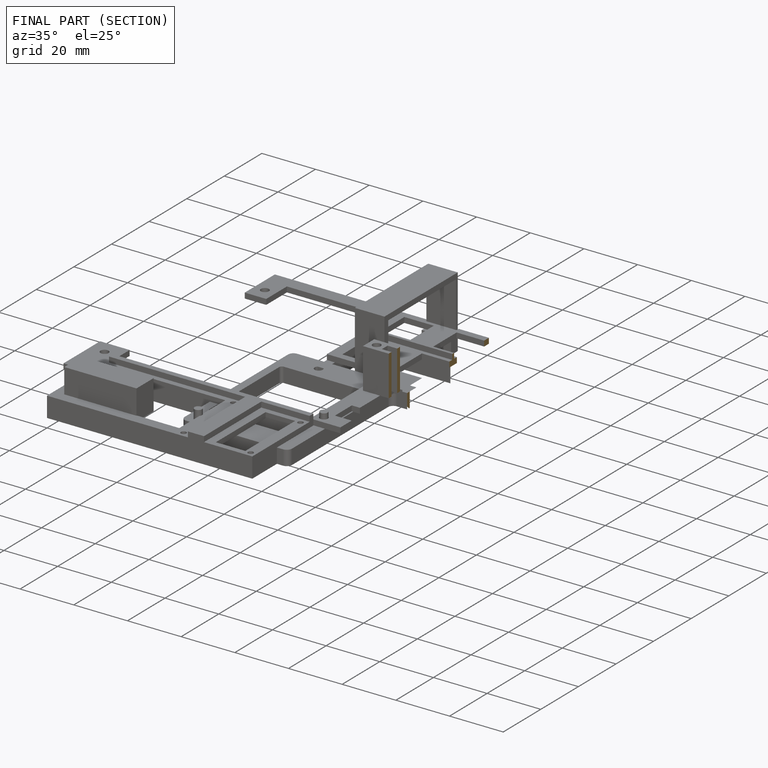
[diagram: finished part — half-section view (interior)]
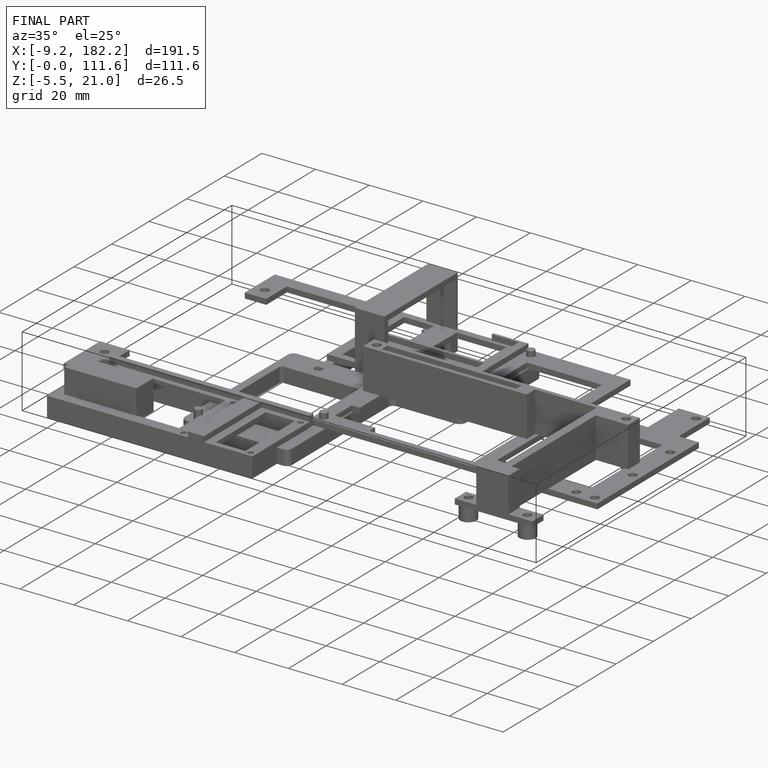
[diagram: finished part — iso view with bounding-box wireframe]
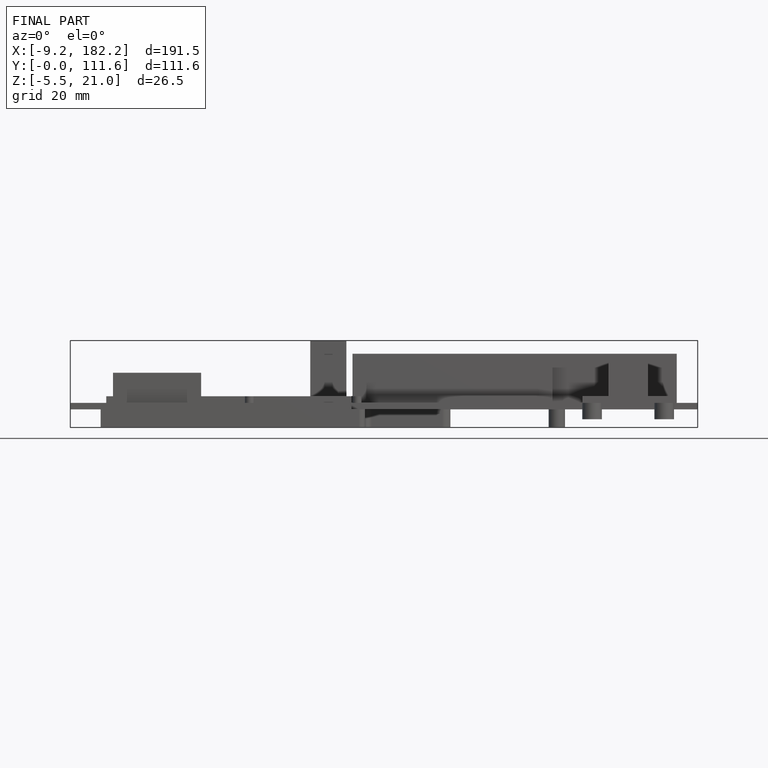
[diagram: finished part — front view with bounding-box wireframe]
